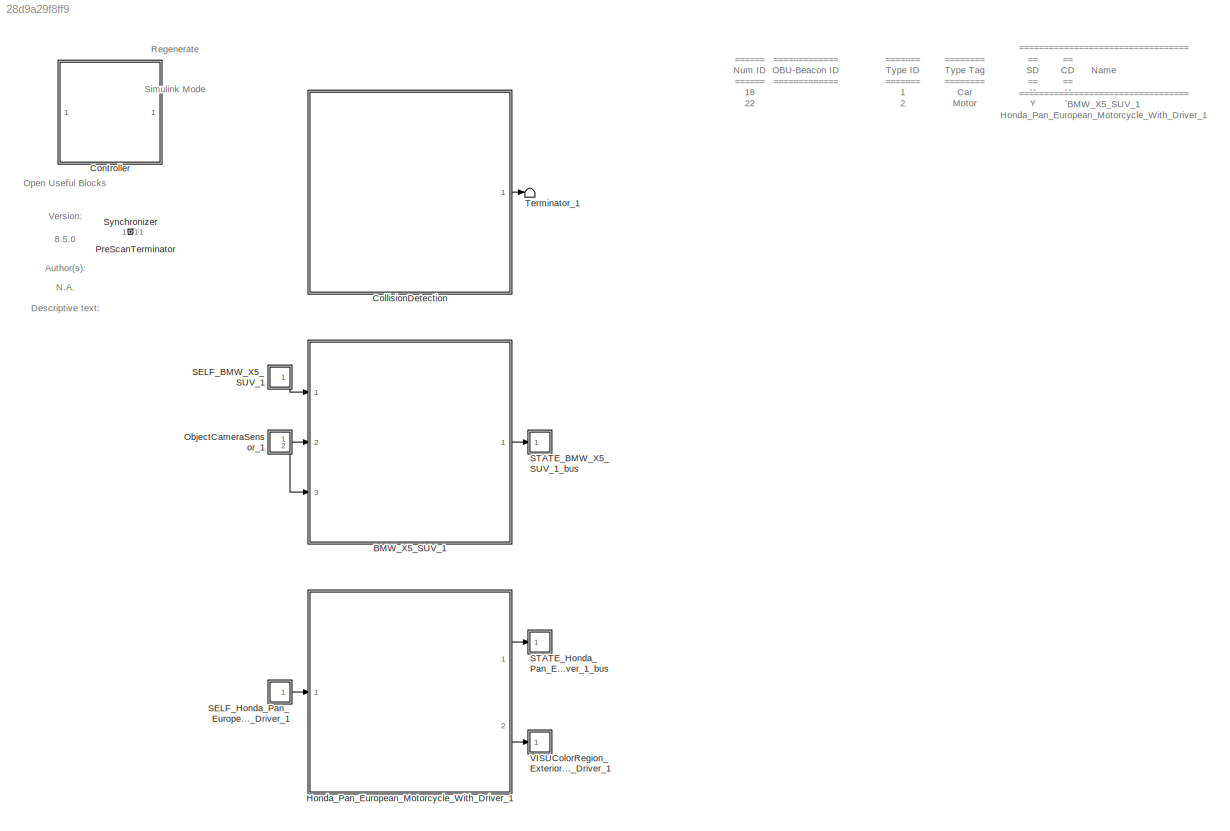
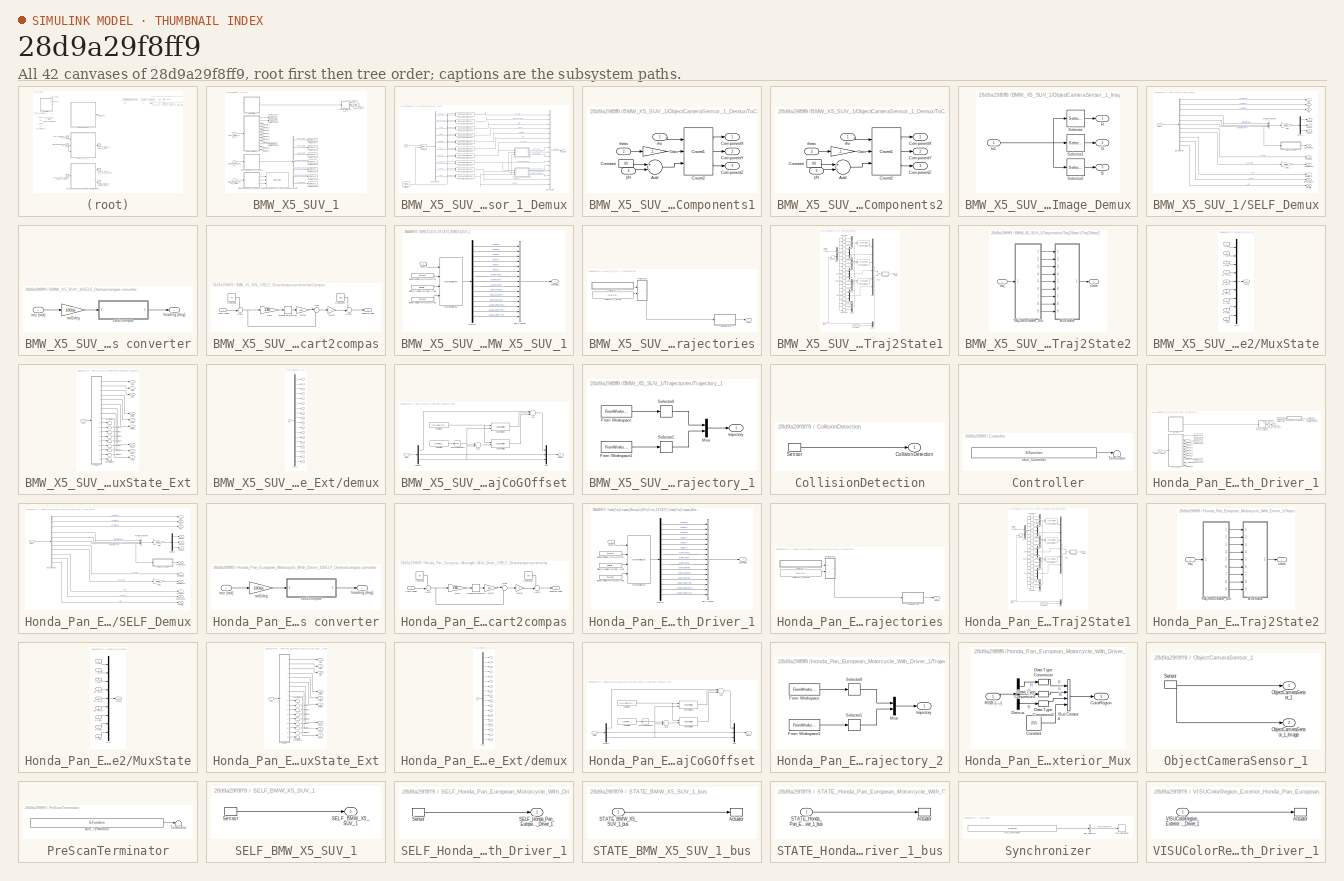
[diagram: thumbnail index - all 42 canvases of the model, root first then tree order]
MODEL slx_28d9a29f8ff9
KIND model
CONFIG AbsTol = auto
CONFIG EnableMultiTasking = off
CONFIG FixedStep = 1/40
CONFIG InitFcn = mbxruntime.callbacks.InitFcn(bdroot);
CONFIG MaxStep = auto
CONFIG MinStep = auto
CONFIG PostLoadFcn = mbxruntime.callbacks.PostLoadFcn(bdroot);
CONFIG PreLoadFcn = mbxruntime.callbacks.PreLoadFcn(bdroot);
CONFIG RelTol = 1e-3
CONFIG SampleTimeConstraint = Unconstrained
CONFIG Solver = ode5
CONFIG SolverName = ode5
CONFIG StartFcn = mbxruntime.callbacks.StartFcn(bdroot);
CONFIG StartTime = 0.0
CONFIG StopFcn = mbxruntime.callbacks.StopFcn(bdroot);
CONFIG StopTime = 4.4
WORKSPACE source: MAT-file member
WORKSPACE mbox_table: struct (value not decoded)
BLOCK [SubSystem] BMW_X5_SUV_1
  InitFcn = UniqueId = '224';
  Ports = [3, 1]
  RequestExecContextInheritance = off
  Tag = WorldObjectSubSystem
BLOCK [BusSelector] BMW_X5_SUV_1/Bus Selector
  OutputAsBus = off
  OutputSignals = Range[m],RangeX[m],RangeY[m],DopplerVelocity[ms-1],DopplerVelocityX[ms-1],DopplerVelocityY[ms-1],Theta[deg]
  Ports = [1, 7]
BLOCK [Inport] BMW_X5_SUV_1/ObjectCameraSensor_1
  BusOutputAsStruct = on
  IconDisplay = Port number
  OutDataTypeStr = Bus: PRESCAN_OCS_MESSAGE
  Port = 2
  PortDimensions = 32
  SampleTime = 1/20
  Tag = inport/ObjectCamera/data
BLOCK [SubSystem] BMW_X5_SUV_1/ObjectCameraSensor_1_Demux
  DeleteFcn = PreScanBlockDeleteFcn;
  Ports = [1, 1]
  RequestExecContextInheritance = off
  Tag = demux/OCS
BLOCK [BusCreator] BMW_X5_SUV_1/ObjectCameraSensor_1_Demux/Bus Creator1
  DisplayOption = bar
  InheritFromInputs = on
  Inputs = 16
  Ports = [16, 1]
BLOCK [BusSelector] BMW_X5_SUV_1/ObjectCameraSensor_1_Demux/Bus Selector
  OutputAsBus = off
  OutputSignals = DATA.ObjectID,DATA.ObjectTypeID,DATA.Left,DATA.Right,DATA.Bottom,DATA.Top,DATA.Range,DATA.DopplerVelocity,DATA.Theta,DATA.Phi
  Ports = [1, 10]
BLOCK [ForIterator] BMW_X5_SUV_1/ObjectCameraSensor_1_Demux/For Iterator
  IterationLimit = detectableObjects
  Ports = [0, 1]
  ResetStates = reset
BLOCK [Inport] BMW_X5_SUV_1/ObjectCameraSensor_1_Demux/OCS
  IconDisplay = Port number
BLOCK [Outport] BMW_X5_SUV_1/ObjectCameraSensor_1_Demux/OCS Data
  IconDisplay = Port number
BLOCK [Selector] BMW_X5_SUV_1/ObjectCameraSensor_1_Demux/Selector
  IndexOptions = Index vector (port)
  Indices = [1 3]
  InputPortWidth = detectableObjects
  OutputSizes = 1
  Ports = [2, 1]
BLOCK [Reference] BMW_X5_SUV_1/ObjectCameraSensor_1_Demux/Signal2ArrayOfSignals1  REF=PreScanSimulinkLibrary/DemuxBRS/Signal2ArrayOfSignals1
  Ports = [2, 1]
  SourceBlock = PreScanSimulinkLibrary/DemuxBRS/Signal2ArrayOfSignals1
BLOCK [Reference] BMW_X5_SUV_1/ObjectCameraSensor_1_Demux/Signal2ArrayOfSignals10  REF=PreScanSimulinkLibrary/DemuxBRS/Signal2ArrayOfSignals5
  Ports = [2, 1]
  SourceBlock = PreScanSimulinkLibrary/DemuxBRS/Signal2ArrayOfSignals5
BLOCK [Reference] BMW_X5_SUV_1/ObjectCameraSensor_1_Demux/Signal2ArrayOfSignals2  REF=PreScanSimulinkLibrary/DemuxBRS/Signal2ArrayOfSignals2
  Ports = [2, 1]
  SourceBlock = PreScanSimulinkLibrary/DemuxBRS/Signal2ArrayOfSignals2
BLOCK [Reference] BMW_X5_SUV_1/ObjectCameraSensor_1_Demux/Signal2ArrayOfSignals3  REF=PreScanSimulinkLibrary/DemuxBRS/Signal2ArrayOfSignals3
  Ports = [2, 1]
  SourceBlock = PreScanSimulinkLibrary/DemuxBRS/Signal2ArrayOfSignals3
BLOCK [Reference] BMW_X5_SUV_1/ObjectCameraSensor_1_Demux/Signal2ArrayOfSignals4  REF=PreScanSimulinkLibrary/DemuxBRS/Signal2ArrayOfSignals4
  Ports = [2, 1]
  SourceBlock = PreScanSimulinkLibrary/DemuxBRS/Signal2ArrayOfSignals4
BLOCK [Reference] BMW_X5_SUV_1/ObjectCameraSensor_1_Demux/Signal2ArrayOfSignals5  REF=PreScanSimulinkLibrary/DemuxBRS/Signal2ArrayOfSignals5
  Ports = [2, 1]
  SourceBlock = PreScanSimulinkLibrary/DemuxBRS/Signal2ArrayOfSignals5
BLOCK [Reference] BMW_X5_SUV_1/ObjectCameraSensor_1_Demux/Signal2ArrayOfSignals6  REF=PreScanSimulinkLibrary/DemuxBRS/Signal2ArrayOfSignals1
  Ports = [2, 1]
  SourceBlock = PreScanSimulinkLibrary/DemuxBRS/Signal2ArrayOfSignals1
BLOCK [Reference] BMW_X5_SUV_1/ObjectCameraSensor_1_Demux/Signal2ArrayOfSignals7  REF=PreScanSimulinkLibrary/DemuxBRS/Signal2ArrayOfSignals5
  Ports = [2, 1]
  SourceBlock = PreScanSimulinkLibrary/DemuxBRS/Signal2ArrayOfSignals5
BLOCK [Reference] BMW_X5_SUV_1/ObjectCameraSensor_1_Demux/Signal2ArrayOfSignals8  REF=PreScanSimulinkLibrary/DemuxBRS/Signal2ArrayOfSignals5
  Ports = [2, 1]
  SourceBlock = PreScanSimulinkLibrary/DemuxBRS/Signal2ArrayOfSignals5
BLOCK [Reference] BMW_X5_SUV_1/ObjectCameraSensor_1_Demux/Signal2ArrayOfSignals9  REF=PreScanSimulinkLibrary/DemuxBRS/Signal2ArrayOfSignals5
  Ports = [2, 1]
  SourceBlock = PreScanSimulinkLibrary/DemuxBRS/Signal2ArrayOfSignals5
BLOCK [SubSystem] BMW_X5_SUV_1/ObjectCameraSensor_1_Demux/ToCamAxesComponents1
  Ports = [3, 3]
  RequestExecContextInheritance = off
BLOCK [Sum] BMW_X5_SUV_1/ObjectCameraSensor_1_Demux/ToCamAxesComponents1/Add
  InputSameDT = off
  Inputs = +-
  OutDataTypeStr = Inherit: Inherit via internal rule
  Ports = [2, 1]
  SaturateOnIntegerOverflow = off
BLOCK [Reference] BMW_X5_SUV_1/ObjectCameraSensor_1_Demux/ToCamAxesComponents1/Cnvert2  REF=PreScanSimulinkLibrary/Cnvert1
  Ports = [3, 3]
  SourceBlock = PreScanSimulinkLibrary/Cnvert1
  SourceType = SubSystem
BLOCK [Outport] BMW_X5_SUV_1/ObjectCameraSensor_1_Demux/ToCamAxesComponents1/ComponentX
  IconDisplay = Port number
BLOCK [Outport] BMW_X5_SUV_1/ObjectCameraSensor_1_Demux/ToCamAxesComponents1/ComponentY
  IconDisplay = Port number
  Port = 2
BLOCK [Outport] BMW_X5_SUV_1/ObjectCameraSensor_1_Demux/ToCamAxesComponents1/ComponentZ
  IconDisplay = Port number
  Port = 3
BLOCK [Constant] BMW_X5_SUV_1/ObjectCameraSensor_1_Demux/ToCamAxesComponents1/Constant
  Value = 90
BLOCK [Gain] BMW_X5_SUV_1/ObjectCameraSensor_1_Demux/ToCamAxesComponents1/Gain
  Gain = -1
  OutDataTypeStr = Inherit: Inherit via internal rule
  ParamDataTypeStr = Inherit: Inherit via internal rule
  SaturateOnIntegerOverflow = off
BLOCK [Inport] BMW_X5_SUV_1/ObjectCameraSensor_1_Demux/ToCamAxesComponents1/phi
  IconDisplay = Port number
  Port = 3
BLOCK [Inport] BMW_X5_SUV_1/ObjectCameraSensor_1_Demux/ToCamAxesComponents1/rho
  IconDisplay = Port number
BLOCK [Inport] BMW_X5_SUV_1/ObjectCameraSensor_1_Demux/ToCamAxesComponents1/theta
  IconDisplay = Port number
  Port = 2
BLOCK [SubSystem] BMW_X5_SUV_1/ObjectCameraSensor_1_Demux/ToCamAxesComponents2
  Ports = [3, 3]
  RequestExecContextInheritance = off
BLOCK [Sum] BMW_X5_SUV_1/ObjectCameraSensor_1_Demux/ToCamAxesComponents2/Add
  InputSameDT = off
  Inputs = +-
  OutDataTypeStr = Inherit: Inherit via internal rule
  Ports = [2, 1]
  SaturateOnIntegerOverflow = off
BLOCK [Reference] BMW_X5_SUV_1/ObjectCameraSensor_1_Demux/ToCamAxesComponents2/Cnvert2  REF=PreScanSimulinkLibrary/Cnvert1
  Ports = [3, 3]
  SourceBlock = PreScanSimulinkLibrary/Cnvert1
  SourceType = SubSystem
BLOCK [Outport] BMW_X5_SUV_1/ObjectCameraSensor_1_Demux/ToCamAxesComponents2/ComponentX
  IconDisplay = Port number
BLOCK [Outport] BMW_X5_SUV_1/ObjectCameraSensor_1_Demux/ToCamAxesComponents2/ComponentY
  IconDisplay = Port number
  Port = 2
BLOCK [Outport] BMW_X5_SUV_1/ObjectCameraSensor_1_Demux/ToCamAxesComponents2/ComponentZ
  IconDisplay = Port number
  Port = 3
BLOCK [Constant] BMW_X5_SUV_1/ObjectCameraSensor_1_Demux/ToCamAxesComponents2/Constant
  Value = 90
BLOCK [Gain] BMW_X5_SUV_1/ObjectCameraSensor_1_Demux/ToCamAxesComponents2/Gain
  Gain = -1
  OutDataTypeStr = Inherit: Inherit via internal rule
  ParamDataTypeStr = Inherit: Inherit via internal rule
  SaturateOnIntegerOverflow = off
BLOCK [Inport] BMW_X5_SUV_1/ObjectCameraSensor_1_Demux/ToCamAxesComponents2/phi
  IconDisplay = Port number
  Port = 3
BLOCK [Inport] BMW_X5_SUV_1/ObjectCameraSensor_1_Demux/ToCamAxesComponents2/rho
  IconDisplay = Port number
BLOCK [Inport] BMW_X5_SUV_1/ObjectCameraSensor_1_Demux/ToCamAxesComponents2/theta
  IconDisplay = Port number
  Port = 2
BLOCK [Inport] BMW_X5_SUV_1/ObjectCameraSensor_1_Image
  BusOutputAsStruct = on
  IconDisplay = Port number
  OutDataTypeStr = uint8
  Port = 3
  SampleTime = 1/20
  Tag = inport/ObjectCamera/image
BLOCK [SubSystem] BMW_X5_SUV_1/ObjectCameraSensor_1_Image_Demux
  Ports = [1, 3]
  RequestExecContextInheritance = off
  Tag = demux/Camera/Color
BLOCK [Outport] BMW_X5_SUV_1/ObjectCameraSensor_1_Image_Demux/B
  IconDisplay = Port number
  Port = 3
BLOCK [Outport] BMW_X5_SUV_1/ObjectCameraSensor_1_Image_Demux/G
  IconDisplay = Port number
  Port = 2
BLOCK [Inport] BMW_X5_SUV_1/ObjectCameraSensor_1_Image_Demux/In1
  IconDisplay = Port number
BLOCK [Outport] BMW_X5_SUV_1/ObjectCameraSensor_1_Image_Demux/R
  IconDisplay = Port number
BLOCK [Selector] BMW_X5_SUV_1/ObjectCameraSensor_1_Image_Demux/Selector
  IndexOptions = Index vector (dialog),Index vector (dialog)
  Indices = -1,1:hres
  InputPortWidth = 3
  NumberOfDimensions = 2
  OutputSizes = 1,1
  Ports = [1, 1]
BLOCK [Selector] BMW_X5_SUV_1/ObjectCameraSensor_1_Image_Demux/Selector1
  IndexOptions = Index vector (dialog),Index vector (dialog)
  Indices = -1,hres+1:hres*2
  InputPortWidth = 3
  NumberOfDimensions = 2
  OutputSizes = 1,1
  Ports = [1, 1]
BLOCK [Selector] BMW_X5_SUV_1/ObjectCameraSensor_1_Image_Demux/Selector2
  IndexOptions = Index vector (dialog),Index vector (dialog)
  Indices = -1,hres*2+1:hres*3
  InputPortWidth = 3
  NumberOfDimensions = 2
  OutputSizes = 1,1
  Ports = [1, 1]
BLOCK [M-S-Function] BMW_X5_SUV_1/ObjectCameraSensor_1_Image_Display
  CopyFcn = CopyFcnDisplay
  DeleteFcn = PreScanBlockDeleteFcn;
  FunctionName = fcn_ImageDisplay
  InitFcn = InitImageOutputDir(gcb);
  ModelCloseFcn = fcn_ImageDisplay_ModelCloseFcn
  Parameters = SensorName EnableDisplay EnablePosition DisplayPosition FigureHandle SaveResults BitmapFormat TempOutputDir CameraType DataType
  Ports = [3]
  Tag = CameraSensor_Color_Display
BLOCK [Inport] BMW_X5_SUV_1/SELF_BMW_X5_SUV_1
  BusOutputAsStruct = on
  IconDisplay = Port number
  OutDataTypeStr = Bus: PRESCAN_SELFSENSORDATA
  PortDimensions = 1
  SampleTime = 2/40
  Tag = inport/SelfPort
BLOCK [SubSystem] BMW_X5_SUV_1/SELF_Demux
  DeleteFcn = PreScanBlockDeleteFcn;
  Ports = [1, 12]
  RequestExecContextInheritance = off
  Tag = demux/SelfPort
BLOCK [BusSelector] BMW_X5_SUV_1/SELF_Demux/Bus Selector
  OutputAsBus = off
  OutputSignals = PositionX,PositionY,PositionZ,OrientationRoll,OrientationPitch,OrientationYaw,Velocity,Yaw_rate,Lat,Long,Alt
  Ports = [1, 11]
BLOCK [Demux] BMW_X5_SUV_1/SELF_Demux/Demux2
  DisplayOption = bar
  Outputs = 3
  Ports = [1, 3]
BLOCK [Outport] BMW_X5_SUV_1/SELF_Demux/GPS alt [m]
  IconDisplay = Port number
  Port = 9
BLOCK [Outport] BMW_X5_SUV_1/SELF_Demux/GPS lat [deg]
  IconDisplay = Port number
  Port = 7
BLOCK [Outport] BMW_X5_SUV_1/SELF_Demux/GPS long [deg]
  IconDisplay = Port number
  Port = 8
BLOCK [Gain] BMW_X5_SUV_1/SELF_Demux/Gain
  Gain = 180/pi
  OutDataTypeStr = Inherit: Inherit via internal rule
  ParamDataTypeStr = Inherit: Inherit via internal rule
  SaturateOnIntegerOverflow = off
BLOCK [Gain] BMW_X5_SUV_1/SELF_Demux/Gain1
  Gain = 180/pi
  OutDataTypeStr = Inherit: Inherit via internal rule
  ParamDataTypeStr = Inherit: Inherit via internal rule
  SaturateOnIntegerOverflow = off
BLOCK [Inport] BMW_X5_SUV_1/SELF_Demux/SELF
  IconDisplay = Port number
  OutDataTypeStr = Bus: PRESCAN_SELFSENSORDATA
BLOCK [Concatenate] BMW_X5_SUV_1/SELF_Demux/Vector Concatenate1
  NumInputs = 3
  Ports = [3, 1]
BLOCK [SubSystem] BMW_X5_SUV_1/SELF_Demux/compas converter
  Ports = [1, 1]
  RequestExecContextInheritance = off
BLOCK [SubSystem] BMW_X5_SUV_1/SELF_Demux/compas converter/cart2compas
  Ports = [1, 1]
  RequestExecContextInheritance = off
BLOCK [Inport] BMW_X5_SUV_1/SELF_Demux/compas converter/cart2compas/Angle [deg]
  IconDisplay = Port number
BLOCK [Constant] BMW_X5_SUV_1/SELF_Demux/compas converter/cart2compas/Constant
  Value = 90
BLOCK [Constant] BMW_X5_SUV_1/SELF_Demux/compas converter/cart2compas/Constant1
  Value = 360
BLOCK [Gain] BMW_X5_SUV_1/SELF_Demux/compas converter/cart2compas/Gain
  Gain = 1/360
  OutDataTypeStr = Inherit: Inherit via internal rule
  ParamDataTypeStr = Inherit: Inherit via internal rule
  SaturateOnIntegerOverflow = off
BLOCK [Gain] BMW_X5_SUV_1/SELF_Demux/compas converter/cart2compas/Gain1
  Gain = 360
  OutDataTypeStr = Inherit: Inherit via internal rule
  ParamDataTypeStr = Inherit: Inherit via internal rule
  SaturateOnIntegerOverflow = off
BLOCK [Gain] BMW_X5_SUV_1/SELF_Demux/compas converter/cart2compas/Gain2
  Gain = -1
  OutDataTypeStr = Inherit: Inherit via internal rule
  ParamDataTypeStr = Inherit: Inherit via internal rule
  SaturateOnIntegerOverflow = off
BLOCK [Rounding] BMW_X5_SUV_1/SELF_Demux/compas converter/cart2compas/Rounding Function
BLOCK [Sum] BMW_X5_SUV_1/SELF_Demux/compas converter/cart2compas/Sum
  IconShape = round
  InputSameDT = off
  Inputs = |-+
  OutDataTypeStr = Inherit: Inherit via internal rule
  Ports = [2, 1]
  SaturateOnIntegerOverflow = off
BLOCK [Sum] BMW_X5_SUV_1/SELF_Demux/compas converter/cart2compas/Sum1
  IconShape = round
  InputSameDT = off
  Inputs = -+|
  OutDataTypeStr = Inherit: Inherit via internal rule
  Ports = [2, 1]
  SaturateOnIntegerOverflow = off
BLOCK [Sum] BMW_X5_SUV_1/SELF_Demux/compas converter/cart2compas/Sum2
  IconShape = round
  InputSameDT = off
  Inputs = ++|
  OutDataTypeStr = Inherit: Inherit via internal rule
  Ports = [2, 1]
  SaturateOnIntegerOverflow = off
BLOCK [Outport] BMW_X5_SUV_1/SELF_Demux/compas converter/cart2compas/heading [deg]
  IconDisplay = Port number
BLOCK [Outport] BMW_X5_SUV_1/SELF_Demux/compas converter/heading [deg]
  IconDisplay = Port number
BLOCK [Gain] BMW_X5_SUV_1/SELF_Demux/compas converter/rad2deg
  Gain = 180/pi
  OutDataTypeStr = Inherit: Inherit via internal rule
  ParamDataTypeStr = Inherit: Inherit via internal rule
  SaturateOnIntegerOverflow = off
BLOCK [Inport] BMW_X5_SUV_1/SELF_Demux/compas converter/rotz [rad]
  IconDisplay = Port number
BLOCK [Outport] BMW_X5_SUV_1/SELF_Demux/heading [deg]
  IconDisplay = Port number
  Port = 11
BLOCK [Outport] BMW_X5_SUV_1/SELF_Demux/rotx [deg]
  IconDisplay = Port number
  Port = 4
BLOCK [Outport] BMW_X5_SUV_1/SELF_Demux/roty [deg]
  IconDisplay = Port number
  Port = 5
BLOCK [Outport] BMW_X5_SUV_1/SELF_Demux/rotz [deg]
  IconDisplay = Port number
  Port = 6
BLOCK [Outport] BMW_X5_SUV_1/SELF_Demux/velocity [m//s]
  IconDisplay = Port number
  Port = 10
BLOCK [Outport] BMW_X5_SUV_1/SELF_Demux/x [m]
  IconDisplay = Port number
BLOCK [Outport] BMW_X5_SUV_1/SELF_Demux/y [m]
  IconDisplay = Port number
  Port = 2
BLOCK [Outport] BMW_X5_SUV_1/SELF_Demux/yaw rate [deg//s]
  IconDisplay = Port number
  Port = 12
BLOCK [Outport] BMW_X5_SUV_1/SELF_Demux/z [m]
  IconDisplay = Port number
  Port = 3
BLOCK [SubSystem] BMW_X5_SUV_1/STATE_BMW_X5_SUV_1
  DeleteFcn = PreScanBlockDeleteFcn;
  LoadFcn = load PrescanStateActuatorData
  Ports = [1, 1]
  Priority = 0
  RequestExecContextInheritance = off
  Tag = mux/StatePort
BLOCK [BusCreator] BMW_X5_SUV_1/STATE_BMW_X5_SUV_1/Bus Creator
  DisplayOption = bar
  InheritFromInputs = on
  Inputs = 15
  NonVirtualBus = on
  OutDataTypeStr = Bus: PRESCAN_STATEACTUATORDATA
  Ports = [15, 1]
BLOCK [Demux] BMW_X5_SUV_1/STATE_BMW_X5_SUV_1/Demux
  DisplayOption = bar
  Outputs = 15
  Ports = [1, 15]
BLOCK [Inport] BMW_X5_SUV_1/STATE_BMW_X5_SUV_1/State
  IconDisplay = Port number
  SampleTime = TimeStep
BLOCK [Outport] BMW_X5_SUV_1/STATE_BMW_X5_SUV_1/StateBus
  IconDisplay = Port number
  OutDataTypeStr = Bus: PRESCAN_STATEACTUATORDATA
BLOCK [Constant] BMW_X5_SUV_1/STATE_BMW_X5_SUV_1/iniBODYAngles wrtVEH [rad]
  SampleTime = TimeStep
  Value = [Roll0 Pitch0 0]
BLOCK [Constant] BMW_X5_SUV_1/STATE_BMW_X5_SUV_1/iniVEHAngles wrtGLOB [rad]
  SampleTime = TimeStep
  Value = [0 0 Yaw0]
BLOCK [Constant] BMW_X5_SUV_1/STATE_BMW_X5_SUV_1/iniVEHposition wrtGLOB [m]
  SampleTime = TimeStep
  Value = [x0 y0 z0]
BLOCK [Reference] BMW_X5_SUV_1/STATE_BMW_X5_SUV_1/state2FullState  REF=PreScanSimulinkLibrary/state2FullState
  Ports = [4, 1]
  SourceBlock = PreScanSimulinkLibrary/state2FullState
  SourceType = PreScan Demux Block:
BLOCK [Outport] BMW_X5_SUV_1/STATE_BMW_X5_SUV_1_bus
  IconDisplay = Port number
  OutDataTypeStr = Bus: PRESCAN_STATEACTUATORDATA
  PortDimensions = 1
  SampleTime = 2/40
  Tag = outport/StatePort
BLOCK [RateTransition] BMW_X5_SUV_1/STATE_BMW_X5_SUV_1_rc
  OutPortSampleTimeOpt = Inherit
  Tag = mux_rc/StatePort
BLOCK [Terminator] BMW_X5_SUV_1/Terminator_1
BLOCK [Terminator] BMW_X5_SUV_1/Terminator_2
BLOCK [Terminator] BMW_X5_SUV_1/Terminator_3
BLOCK [Terminator] BMW_X5_SUV_1/Terminator_4
BLOCK [Terminator] BMW_X5_SUV_1/Terminator_5
BLOCK [Terminator] BMW_X5_SUV_1/Terminator_6
BLOCK [Terminator] BMW_X5_SUV_1/Terminator_7
BLOCK [Terminator] BMW_X5_SUV_1/Terminator_8
BLOCK [Terminator] BMW_X5_SUV_1/Terminator_9
BLOCK [ToWorkspace] BMW_X5_SUV_1/To Workspace
  FixptAsFi = on
  MaxDataPoints = inf
  Ports = [1]
  SampleTime = -1
  SaveFormat = Timeseries
  VariableName = range_m
BLOCK [ToWorkspace] BMW_X5_SUV_1/To Workspace1
  FixptAsFi = on
  MaxDataPoints = inf
  Ports = [1]
  SampleTime = -1
  SaveFormat = Timeseries
  VariableName = range_x
BLOCK [ToWorkspace] BMW_X5_SUV_1/To Workspace2
  FixptAsFi = on
  MaxDataPoints = inf
  Ports = [1]
  SampleTime = -1
  SaveFormat = Timeseries
  VariableName = range_y
BLOCK [ToWorkspace] BMW_X5_SUV_1/To Workspace3
  FixptAsFi = on
  MaxDataPoints = inf
  Ports = [1]
  SampleTime = -1
  SaveFormat = Timeseries
  VariableName = V21
BLOCK [ToWorkspace] BMW_X5_SUV_1/To Workspace4
  FixptAsFi = on
  MaxDataPoints = inf
  Ports = [1]
  SampleTime = -1
  SaveFormat = Timeseries
  VariableName = V21_x
BLOCK [ToWorkspace] BMW_X5_SUV_1/To Workspace5
  FixptAsFi = on
  MaxDataPoints = inf
  Ports = [1]
  SampleTime = -1
  SaveFormat = Timeseries
  VariableName = V21_y
BLOCK [ToWorkspace] BMW_X5_SUV_1/To Workspace6
  FixptAsFi = on
  MaxDataPoints = inf
  Ports = [1]
  SampleTime = -1
  SaveFormat = Timeseries
  VariableName = Theate
BLOCK [ToWorkspace] BMW_X5_SUV_1/To Workspace7
  FixptAsFi = on
  MaxDataPoints = inf
  Ports = [1]
  SampleTime = -1
  SaveFormat = Timeseries
  VariableName = X1
BLOCK [ToWorkspace] BMW_X5_SUV_1/To Workspace8
  FixptAsFi = on
  MaxDataPoints = inf
  Ports = [1]
  SampleTime = -1
  SaveFormat = Timeseries
  VariableName = Y1
BLOCK [ToWorkspace] BMW_X5_SUV_1/To Workspace9
  FixptAsFi = on
  MaxDataPoints = inf
  Ports = [1]
  SampleTime = -1
  SaveFormat = Timeseries
  VariableName = V1
BLOCK [SubSystem] BMW_X5_SUV_1/Trajectories
  DeleteFcn = PreScanBlockDeleteFcn;
  Ports = [0, 1]
  RequestExecContextInheritance = off
  Tag = Trajectories
BLOCK [Outport] BMW_X5_SUV_1/Trajectories/State
  IconDisplay = Port number
  Tag = TrajOutport
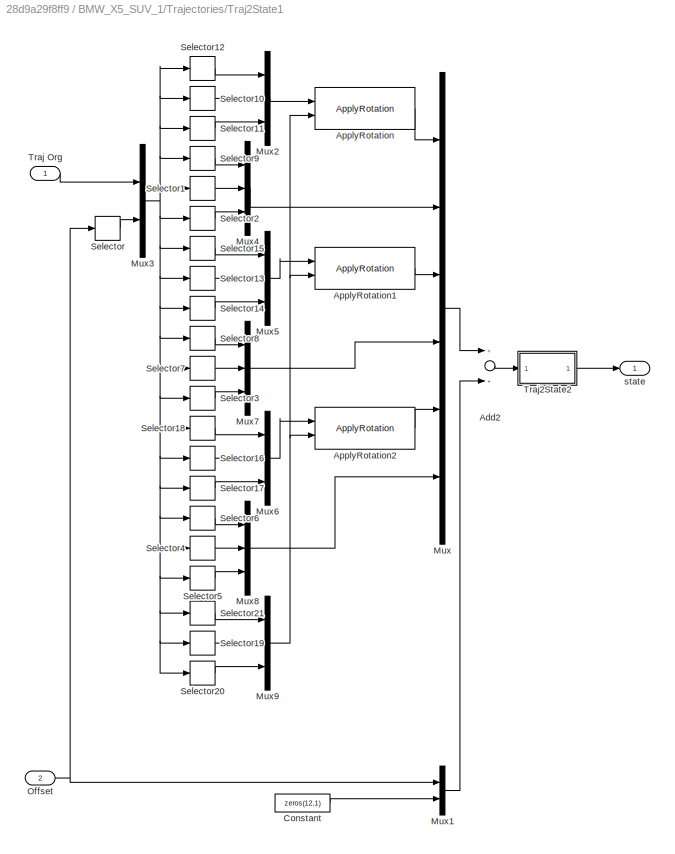
BLOCK [SubSystem] BMW_X5_SUV_1/Trajectories/Traj2State1
  DeleteFcn = PreScanBlockDeleteFcn;
  Ports = [2, 1]
  RequestExecContextInheritance = off
  Tag = Traj2State
BLOCK [Sum] BMW_X5_SUV_1/Trajectories/Traj2State1/Add2
  InputSameDT = off
  OutDataTypeStr = Inherit: Inherit via internal rule
  Ports = [2, 1]
  SaturateOnIntegerOverflow = off
BLOCK [Reference] BMW_X5_SUV_1/Trajectories/Traj2State1/ApplyRotation  REF=PreScanSimulinkLibrary/ApplyRotation
  Ports = [2, 1]
  SourceBlock = PreScanSimulinkLibrary/ApplyRotation
  SourceType = SubSystem
BLOCK [Reference] BMW_X5_SUV_1/Trajectories/Traj2State1/ApplyRotation1  REF=PreScanSimulinkLibrary/ApplyRotation
  Ports = [2, 1]
  SourceBlock = PreScanSimulinkLibrary/ApplyRotation
  SourceType = SubSystem
BLOCK [Reference] BMW_X5_SUV_1/Trajectories/Traj2State1/ApplyRotation2  REF=PreScanSimulinkLibrary/ApplyRotation
  Ports = [2, 1]
  SourceBlock = PreScanSimulinkLibrary/ApplyRotation
  SourceType = SubSystem
BLOCK [Constant] BMW_X5_SUV_1/Trajectories/Traj2State1/Constant
  Value = zeros(12,1)
BLOCK [Mux] BMW_X5_SUV_1/Trajectories/Traj2State1/Mux
  DisplayOption = bar
  Inputs = 6
  Ports = [6, 1]
BLOCK [Mux] BMW_X5_SUV_1/Trajectories/Traj2State1/Mux1
  DisplayOption = bar
  Inputs = 2
  Ports = [2, 1]
BLOCK [Mux] BMW_X5_SUV_1/Trajectories/Traj2State1/Mux2
  DisplayOption = bar
  Inputs = 3
  Ports = [3, 1]
BLOCK [Mux] BMW_X5_SUV_1/Trajectories/Traj2State1/Mux3
  DisplayOption = bar
  Inputs = 2
  Ports = [2, 1]
BLOCK [Mux] BMW_X5_SUV_1/Trajectories/Traj2State1/Mux4
  DisplayOption = bar
  Inputs = 3
  Ports = [3, 1]
BLOCK [Mux] BMW_X5_SUV_1/Trajectories/Traj2State1/Mux5
  DisplayOption = bar
  Inputs = 3
  Ports = [3, 1]
BLOCK [Mux] BMW_X5_SUV_1/Trajectories/Traj2State1/Mux6
  DisplayOption = bar
  Inputs = 3
  Ports = [3, 1]
BLOCK [Mux] BMW_X5_SUV_1/Trajectories/Traj2State1/Mux7
  DisplayOption = bar
  Inputs = 3
  Ports = [3, 1]
BLOCK [Mux] BMW_X5_SUV_1/Trajectories/Traj2State1/Mux8
  DisplayOption = bar
  Inputs = 3
  Ports = [3, 1]
BLOCK [Mux] BMW_X5_SUV_1/Trajectories/Traj2State1/Mux9
  DisplayOption = bar
  Inputs = 3
  Ports = [3, 1]
BLOCK [Inport] BMW_X5_SUV_1/Trajectories/Traj2State1/Offset
  IconDisplay = Port number
  Port = 2
BLOCK [Selector] BMW_X5_SUV_1/Trajectories/Traj2State1/Selector
  IndexOptions = Index vector (dialog)
  Indices = [4 5 6]
  InputPortWidth = 6
  OutputSizes = 1
  Ports = [1, 1]
BLOCK [Selector] BMW_X5_SUV_1/Trajectories/Traj2State1/Selector1
  IndexOptions = Index vector (dialog)
  Indices = [5]
  InputPortWidth = 21
  OutputSizes = 1
  Ports = [1, 1]
BLOCK [Selector] BMW_X5_SUV_1/Trajectories/Traj2State1/Selector10
  IndexOptions = Index vector (dialog)
  Indices = [2]
  InputPortWidth = 21
  OutputSizes = 1
  Ports = [1, 1]
BLOCK [Selector] BMW_X5_SUV_1/Trajectories/Traj2State1/Selector11
  IndexOptions = Index vector (dialog)
  Indices = [3]
  InputPortWidth = 21
  OutputSizes = 1
  Ports = [1, 1]
BLOCK [Selector] BMW_X5_SUV_1/Trajectories/Traj2State1/Selector12
  IndexOptions = Index vector (dialog)
  Indices = [1]
  InputPortWidth = 21
  OutputSizes = 1
  Ports = [1, 1]
BLOCK [Selector] BMW_X5_SUV_1/Trajectories/Traj2State1/Selector13
  IndexOptions = Index vector (dialog)
  Indices = [8]
  InputPortWidth = 21
  OutputSizes = 1
  Ports = [1, 1]
BLOCK [Selector] BMW_X5_SUV_1/Trajectories/Traj2State1/Selector14
  IndexOptions = Index vector (dialog)
  Indices = [9]
  InputPortWidth = 21
  OutputSizes = 1
  Ports = [1, 1]
BLOCK [Selector] BMW_X5_SUV_1/Trajectories/Traj2State1/Selector15
  IndexOptions = Index vector (dialog)
  Indices = [7]
  InputPortWidth = 21
  OutputSizes = 1
  Ports = [1, 1]
BLOCK [Selector] BMW_X5_SUV_1/Trajectories/Traj2State1/Selector16
  IndexOptions = Index vector (dialog)
  Indices = [14]
  InputPortWidth = 21
  OutputSizes = 1
  Ports = [1, 1]
BLOCK [Selector] BMW_X5_SUV_1/Trajectories/Traj2State1/Selector17
  IndexOptions = Index vector (dialog)
  Indices = [15]
  InputPortWidth = 21
  OutputSizes = 1
  Ports = [1, 1]
BLOCK [Selector] BMW_X5_SUV_1/Trajectories/Traj2State1/Selector18
  IndexOptions = Index vector (dialog)
  Indices = [13]
  InputPortWidth = 21
  OutputSizes = 1
  Ports = [1, 1]
BLOCK [Selector] BMW_X5_SUV_1/Trajectories/Traj2State1/Selector19
  IndexOptions = Index vector (dialog)
  Indices = [20]
  InputPortWidth = 21
  OutputSizes = 1
  Ports = [1, 1]
BLOCK [Selector] BMW_X5_SUV_1/Trajectories/Traj2State1/Selector2
  IndexOptions = Index vector (dialog)
  Indices = [6]
  InputPortWidth = 21
  OutputSizes = 1
  Ports = [1, 1]
BLOCK [Selector] BMW_X5_SUV_1/Trajectories/Traj2State1/Selector20
  IndexOptions = Index vector (dialog)
  Indices = [21]
  InputPortWidth = 21
  OutputSizes = 1
  Ports = [1, 1]
BLOCK [Selector] BMW_X5_SUV_1/Trajectories/Traj2State1/Selector21
  IndexOptions = Index vector (dialog)
  Indices = [19]
  InputPortWidth = 21
  OutputSizes = 1
  Ports = [1, 1]
BLOCK [Selector] BMW_X5_SUV_1/Trajectories/Traj2State1/Selector3
  IndexOptions = Index vector (dialog)
  Indices = [12]
  InputPortWidth = 21
  OutputSizes = 1
  Ports = [1, 1]
BLOCK [Selector] BMW_X5_SUV_1/Trajectories/Traj2State1/Selector4
  IndexOptions = Index vector (dialog)
  Indices = [17]
  InputPortWidth = 21
  OutputSizes = 1
  Ports = [1, 1]
BLOCK [Selector] BMW_X5_SUV_1/Trajectories/Traj2State1/Selector5
  IndexOptions = Index vector (dialog)
  Indices = [18]
  InputPortWidth = 21
  OutputSizes = 1
  Ports = [1, 1]
BLOCK [Selector] BMW_X5_SUV_1/Trajectories/Traj2State1/Selector6
  IndexOptions = Index vector (dialog)
  Indices = [16]
  InputPortWidth = 21
  OutputSizes = 1
  Ports = [1, 1]
BLOCK [Selector] BMW_X5_SUV_1/Trajectories/Traj2State1/Selector7
  IndexOptions = Index vector (dialog)
  Indices = [11]
  InputPortWidth = 21
  OutputSizes = 1
  Ports = [1, 1]
BLOCK [Selector] BMW_X5_SUV_1/Trajectories/Traj2State1/Selector8
  IndexOptions = Index vector (dialog)
  Indices = [10]
  InputPortWidth = 21
  OutputSizes = 1
  Ports = [1, 1]
BLOCK [Selector] BMW_X5_SUV_1/Trajectories/Traj2State1/Selector9
  IndexOptions = Index vector (dialog)
  Indices = [4]
  InputPortWidth = 21
  OutputSizes = 1
  Ports = [1, 1]
BLOCK [Inport] BMW_X5_SUV_1/Trajectories/Traj2State1/Traj Org
  IconDisplay = Port number
BLOCK [SubSystem] BMW_X5_SUV_1/Trajectories/Traj2State1/Traj2State2
  Ports = [1, 1]
  RequestExecContextInheritance = off
BLOCK [SubSystem] BMW_X5_SUV_1/Trajectories/Traj2State1/Traj2State2/MuxState
  Ports = [9, 1]
  RequestExecContextInheritance = off
BLOCK [Mux] BMW_X5_SUV_1/Trajectories/Traj2State1/Traj2State2/MuxState/Mux
  DisplayOption = bar
  Inputs = 9
  Ports = [9, 1]
BLOCK [Inport] BMW_X5_SUV_1/Trajectories/Traj2State1/Traj2State2/MuxState/P [rad]
  IconDisplay = Port number
  Port = 8
BLOCK [Inport] BMW_X5_SUV_1/Trajectories/Traj2State1/Traj2State2/MuxState/R [rad]
  IconDisplay = Port number
  Port = 7
BLOCK [Inport] BMW_X5_SUV_1/Trajectories/Traj2State1/Traj2State2/MuxState/Y [rad]
  IconDisplay = Port number
  Port = 9
BLOCK [Inport] BMW_X5_SUV_1/Trajectories/Traj2State1/Traj2State2/MuxState/dx [m//s]
  IconDisplay = Port number
  Port = 4
BLOCK [Inport] BMW_X5_SUV_1/Trajectories/Traj2State1/Traj2State2/MuxState/dy [m//s]
  IconDisplay = Port number
  Port = 5
BLOCK [Inport] BMW_X5_SUV_1/Trajectories/Traj2State1/Traj2State2/MuxState/dz [m//s]
  IconDisplay = Port number
  Port = 6
BLOCK [Outport] BMW_X5_SUV_1/Trajectories/Traj2State1/Traj2State2/MuxState/state
  IconDisplay = Port number
BLOCK [Inport] BMW_X5_SUV_1/Trajectories/Traj2State1/Traj2State2/MuxState/x [m]
  IconDisplay = Port number
BLOCK [Inport] BMW_X5_SUV_1/Trajectories/Traj2State1/Traj2State2/MuxState/y [m]
  IconDisplay = Port number
  Port = 2
BLOCK [Inport] BMW_X5_SUV_1/Trajectories/Traj2State1/Traj2State2/MuxState/z [m]
  IconDisplay = Port number
  Port = 3
BLOCK [SubSystem] BMW_X5_SUV_1/Trajectories/Traj2State1/Traj2State2/Traj2MuxState_Ext
  Ports = [1, 9]
  RequestExecContextInheritance = off
BLOCK [Outport] BMW_X5_SUV_1/Trajectories/Traj2State1/Traj2State2/Traj2MuxState_Ext/P [rad]
  IconDisplay = Port number
  Port = 8
BLOCK [Outport] BMW_X5_SUV_1/Trajectories/Traj2State1/Traj2State2/Traj2MuxState_Ext/R [rad]
  IconDisplay = Port number
  Port = 7
BLOCK [Terminator] BMW_X5_SUV_1/Trajectories/Traj2State1/Traj2State2/Traj2MuxState_Ext/Terminator1
BLOCK [Terminator] BMW_X5_SUV_1/Trajectories/Traj2State1/Traj2State2/Traj2MuxState_Ext/Terminator2
BLOCK [Terminator] BMW_X5_SUV_1/Trajectories/Traj2State1/Traj2State2/Traj2MuxState_Ext/Terminator3
BLOCK [Terminator] BMW_X5_SUV_1/Trajectories/Traj2State1/Traj2State2/Traj2MuxState_Ext/Terminator4
BLOCK [Terminator] BMW_X5_SUV_1/Trajectories/Traj2State1/Traj2State2/Traj2MuxState_Ext/Terminator5
BLOCK [Terminator] BMW_X5_SUV_1/Trajectories/Traj2State1/Traj2State2/Traj2MuxState_Ext/Terminator6
BLOCK [Terminator] BMW_X5_SUV_1/Trajectories/Traj2State1/Traj2State2/Traj2MuxState_Ext/Terminator7
BLOCK [Terminator] BMW_X5_SUV_1/Trajectories/Traj2State1/Traj2State2/Traj2MuxState_Ext/Terminator8
BLOCK [Terminator] BMW_X5_SUV_1/Trajectories/Traj2State1/Traj2State2/Traj2MuxState_Ext/Terminator9
BLOCK [Inport] BMW_X5_SUV_1/Trajectories/Traj2State1/Traj2State2/Traj2MuxState_Ext/Traj
  IconDisplay = Port number
BLOCK [Outport] BMW_X5_SUV_1/Trajectories/Traj2State1/Traj2State2/Traj2MuxState_Ext/Y [rad]
  IconDisplay = Port number
  Port = 9
BLOCK [SubSystem] BMW_X5_SUV_1/Trajectories/Traj2State1/Traj2State2/Traj2MuxState_Ext/demux
  Ports = [1, 18]
  RequestExecContextInheritance = off
BLOCK [Demux] BMW_X5_SUV_1/Trajectories/Traj2State1/Traj2State2/Traj2MuxState_Ext/demux/Demux
  DisplayOption = bar
  Outputs = 18
  Ports = [1, 18]
BLOCK [Outport] BMW_X5_SUV_1/Trajectories/Traj2State1/Traj2State2/Traj2MuxState_Ext/demux/P
  IconDisplay = Port number
  Port = 8
BLOCK [Outport] BMW_X5_SUV_1/Trajectories/Traj2State1/Traj2State2/Traj2MuxState_Ext/demux/R
  IconDisplay = Port number
  Port = 7
BLOCK [Outport] BMW_X5_SUV_1/Trajectories/Traj2State1/Traj2State2/Traj2MuxState_Ext/demux/Y
  IconDisplay = Port number
  Port = 9
BLOCK [Outport] BMW_X5_SUV_1/Trajectories/Traj2State1/Traj2State2/Traj2MuxState_Ext/demux/accP
  IconDisplay = Port number
  Port = 17
BLOCK [Outport] BMW_X5_SUV_1/Trajectories/Traj2State1/Traj2State2/Traj2MuxState_Ext/demux/accR
  IconDisplay = Port number
  Port = 16
BLOCK [Outport] BMW_X5_SUV_1/Trajectories/Traj2State1/Traj2State2/Traj2MuxState_Ext/demux/accY
  IconDisplay = Port number
  Port = 18
BLOCK [Outport] BMW_X5_SUV_1/Trajectories/Traj2State1/Traj2State2/Traj2MuxState_Ext/demux/accx
  IconDisplay = Port number
  Port = 13
BLOCK [Outport] BMW_X5_SUV_1/Trajectories/Traj2State1/Traj2State2/Traj2MuxState_Ext/demux/accy
  IconDisplay = Port number
  Port = 14
BLOCK [Outport] BMW_X5_SUV_1/Trajectories/Traj2State1/Traj2State2/Traj2MuxState_Ext/demux/accz
  IconDisplay = Port number
  Port = 15
BLOCK [Inport] BMW_X5_SUV_1/Trajectories/Traj2State1/Traj2State2/Traj2MuxState_Ext/demux/traj
  IconDisplay = Port number
BLOCK [Outport] BMW_X5_SUV_1/Trajectories/Traj2State1/Traj2State2/Traj2MuxState_Ext/demux/velP
  IconDisplay = Port number
  Port = 11
BLOCK [Outport] BMW_X5_SUV_1/Trajectories/Traj2State1/Traj2State2/Traj2MuxState_Ext/demux/velR
  IconDisplay = Port number
  Port = 10
BLOCK [Outport] BMW_X5_SUV_1/Trajectories/Traj2State1/Traj2State2/Traj2MuxState_Ext/demux/velY
  IconDisplay = Port number
  Port = 12
BLOCK [Outport] BMW_X5_SUV_1/Trajectories/Traj2State1/Traj2State2/Traj2MuxState_Ext/demux/velx
  IconDisplay = Port number
  Port = 4
BLOCK [Outport] BMW_X5_SUV_1/Trajectories/Traj2State1/Traj2State2/Traj2MuxState_Ext/demux/vely
  IconDisplay = Port number
  Port = 5
BLOCK [Outport] BMW_X5_SUV_1/Trajectories/Traj2State1/Traj2State2/Traj2MuxState_Ext/demux/velz
  IconDisplay = Port number
  Port = 6
BLOCK [Outport] BMW_X5_SUV_1/Trajectories/Traj2State1/Traj2State2/Traj2MuxState_Ext/demux/x
  IconDisplay = Port number
BLOCK [Outport] BMW_X5_SUV_1/Trajectories/Traj2State1/Traj2State2/Traj2MuxState_Ext/demux/y
  IconDisplay = Port number
  Port = 2
BLOCK [Outport] BMW_X5_SUV_1/Trajectories/Traj2State1/Traj2State2/Traj2MuxState_Ext/demux/z
  IconDisplay = Port number
  Port = 3
BLOCK [Outport] BMW_X5_SUV_1/Trajectories/Traj2State1/Traj2State2/Traj2MuxState_Ext/dx [m//s]
  IconDisplay = Port number
  Port = 4
BLOCK [Outport] BMW_X5_SUV_1/Trajectories/Traj2State1/Traj2State2/Traj2MuxState_Ext/dy [m//s]
  IconDisplay = Port number
  Port = 5
BLOCK [Outport] BMW_X5_SUV_1/Trajectories/Traj2State1/Traj2State2/Traj2MuxState_Ext/dz [m//s]
  IconDisplay = Port number
  Port = 6
BLOCK [Outport] BMW_X5_SUV_1/Trajectories/Traj2State1/Traj2State2/Traj2MuxState_Ext/x [m]
  IconDisplay = Port number
BLOCK [Outport] BMW_X5_SUV_1/Trajectories/Traj2State1/Traj2State2/Traj2MuxState_Ext/y [m]
  IconDisplay = Port number
  Port = 2
BLOCK [Outport] BMW_X5_SUV_1/Trajectories/Traj2State1/Traj2State2/Traj2MuxState_Ext/z [m]
  IconDisplay = Port number
  Port = 3
BLOCK [Outport] BMW_X5_SUV_1/Trajectories/Traj2State1/Traj2State2/state
  IconDisplay = Port number
BLOCK [Inport] BMW_X5_SUV_1/Trajectories/Traj2State1/Traj2State2/traj
  IconDisplay = Port number
BLOCK [Outport] BMW_X5_SUV_1/Trajectories/Traj2State1/state
  IconDisplay = Port number
BLOCK [SubSystem] BMW_X5_SUV_1/Trajectories/TrajCoGOffset
  DeleteFcn = PreScanBlockDeleteFcn;
  Ports = [1, 1]
  RequestExecContextInheritance = off
  Tag = TrajCoGOffset
BLOCK [Sum] BMW_X5_SUV_1/Trajectories/TrajCoGOffset/Add
  InputSameDT = off
  Inputs = +-+
  OutDataTypeStr = Inherit: Inherit via internal rule
  Ports = [3, 1]
  SaturateOnIntegerOverflow = off
BLOCK [Sum] BMW_X5_SUV_1/Trajectories/TrajCoGOffset/Add1
  InputSameDT = off
  OutDataTypeStr = Inherit: Inherit via internal rule
  Ports = [2, 1]
  SaturateOnIntegerOverflow = off
BLOCK [Reference] BMW_X5_SUV_1/Trajectories/TrajCoGOffset/ApplyRotation  REF=PreScanSimulinkLibrary/ApplyRotation
  Ports = [2, 1]
  SourceBlock = PreScanSimulinkLibrary/ApplyRotation
  SourceType = SubSystem
BLOCK [Reference] BMW_X5_SUV_1/Trajectories/TrajCoGOffset/ApplyRotation1  REF=PreScanSimulinkLibrary/ApplyRotation
  Ports = [2, 1]
  SourceBlock = PreScanSimulinkLibrary/ApplyRotation
  SourceType = SubSystem
BLOCK [Constant] BMW_X5_SUV_1/Trajectories/TrajCoGOffset/CoG Offset
  Value = [0 0 CoGOffsetZ]
BLOCK [Reference] BMW_X5_SUV_1/Trajectories/TrajCoGOffset/Degrees to Radians  REF=simulink_extras/Transformations/Degrees to
Radians
  Ports = [1, 1]
  SourceBlock = simulink_extras/Transformations/Degrees to\nRadians
  SourceProductBaseCode = SL
  SourceProductName = Simulink
  SourceType = DegreesToRadians
BLOCK [Demux] BMW_X5_SUV_1/Trajectories/TrajCoGOffset/Demux1
  DisplayOption = bar
  Outputs = [3 3 3]
  Ports = [1, 3]
BLOCK [Mux] BMW_X5_SUV_1/Trajectories/TrajCoGOffset/Mux
  DisplayOption = bar
  Inputs = [3 3 3]
  Ports = [3, 1]
BLOCK [Constant] BMW_X5_SUV_1/Trajectories/TrajCoGOffset/Orientation
  Value = [InitRoll InitPitch 0]
BLOCK [Inport] BMW_X5_SUV_1/Trajectories/TrajCoGOffset/State In
  IconDisplay = Port number
BLOCK [Outport] BMW_X5_SUV_1/Trajectories/TrajCoGOffset/State Out
  IconDisplay = Port number
BLOCK [SubSystem] BMW_X5_SUV_1/Trajectories/Trajectory_1
  DeleteFcn = PreScanBlockDeleteFcn;
  Ports = [0, 1]
  RequestExecContextInheritance = off
  Tag = Trajectory
BLOCK [FromWorkspace] BMW_X5_SUV_1/Trajectories/Trajectory_1/From Workspace
  OutputAfterFinalValue = Holding final value
  SampleTime = TimeStep
  VariableName = trajectory
BLOCK [FromWorkspace] BMW_X5_SUV_1/Trajectories/Trajectory_1/From Workspace1
  OutputAfterFinalValue = Setting to zero
  SampleTime = TimeStep
  VariableName = trajectory
BLOCK [Mux] BMW_X5_SUV_1/Trajectories/Trajectory_1/Mux
  DisplayOption = bar
  Inputs = 2
  Ports = [2, 1]
BLOCK [Selector] BMW_X5_SUV_1/Trajectories/Trajectory_1/Selector1
  IndexOptions = Index vector (dialog)
  Indices = [7:18]
  InputPortWidth = 24
  OutputSizes = 1
  Ports = [1, 1]
BLOCK [Selector] BMW_X5_SUV_1/Trajectories/Trajectory_1/Selector9
  IndexOptions = Index vector (dialog)
  Indices = [1:6]
  InputPortWidth = 24
  OutputSizes = 1
  Ports = [1, 1]
BLOCK [Outport] BMW_X5_SUV_1/Trajectories/Trajectory_1/trajectory
  IconDisplay = Port number
BLOCK [Constant] BMW_X5_SUV_1/Trajectories/Trajectory_1_Offset
  Tag = TrajectoryOffset
  Value = [0  0  0  0  0  0]
BLOCK [SubSystem] CollisionDetection
  LoadFcn = load('PrescanCollisionDetectionData.mat');load('PrescanCollisionDetectionMessage.mat')
  OpenFcn = open_system([gcb '/Sensor'],'mask')
  Ports = [0, 1]
  Priority = 3
  RequestExecContextInheritance = off
  Tag = sensor/CollisionDetection
BLOCK [Outport] CollisionDetection/CollisionDetection
  IconDisplay = Port number
  OutDataTypeStr = Bus: PRESCAN_COLLISIONDETECTION_MESSAGE
  PortDimensions = 5
  SampleTime = 2/40
  Tag = outport/CollisionDetection
BLOCK [S-Function] CollisionDetection/Sensor
  EnableBusSupport = off
  FunctionName = sfun_CollisionDetection
  Parameters = detectableCollisions, timestep
  Ports = [0, 1]
  SFcnIsStateOwnerBlock = off
  SFunctionDeploymentMode = off
BLOCK [SubSystem] Controller
  Description = A607772198C8AF13A5B83ED226CA21F9BA0E54A1665013ACC15A4AFD0E8FE321
  LoadFcn = load PreScanControllerData
  ModelCloseFcn = assignin('base',['model_closed_' bdroot],true);
  Ports = []
  Priority = -1
  RequestExecContextInheritance = off
BLOCK [Terminator] Controller/Terminator
BLOCK [S-Function] Controller/sfun_Controller
  EnableBusSupport = off
  FunctionName = sfun_Controller
  Parameters = SParameter1, SParameter2, SParameter3, SParameter4, SParameter5, SParameter6, SParameter7, SParameter8, SParameter9, SParameter10, SampleTime
  Ports = [0, 1]
  SFcnIsStateOwnerBlock = off
  SFunctionDeploymentMode = off
BLOCK [SubSystem] Honda_Pan_European_Motorcycle_With_Driver_1
  InitFcn = UniqueId = '227';
  Ports = [1, 2]
  RequestExecContextInheritance = off
  Tag = WorldObjectSubSystem
BLOCK [Constant] Honda_Pan_European_Motorcycle_With_Driver_1/ColorRegion_Exterior_color
  Tag = VisuLightConst
  Value = [192 192 192]
BLOCK [SubSystem] Honda_Pan_European_Motorcycle_With_Driver_1/SELF_Demux
  DeleteFcn = PreScanBlockDeleteFcn;
  Ports = [1, 12]
  RequestExecContextInheritance = off
  Tag = demux/SelfPort
BLOCK [BusSelector] Honda_Pan_European_Motorcycle_With_Driver_1/SELF_Demux/Bus Selector
  OutputAsBus = off
  OutputSignals = PositionX,PositionY,PositionZ,OrientationRoll,OrientationPitch,OrientationYaw,Velocity,Yaw_rate,Lat,Long,Alt
  Ports = [1, 11]
BLOCK [Demux] Honda_Pan_European_Motorcycle_With_Driver_1/SELF_Demux/Demux2
  DisplayOption = bar
  Outputs = 3
  Ports = [1, 3]
BLOCK [Outport] Honda_Pan_European_Motorcycle_With_Driver_1/SELF_Demux/GPS alt [m]
  IconDisplay = Port number
  Port = 9
BLOCK [Outport] Honda_Pan_European_Motorcycle_With_Driver_1/SELF_Demux/GPS lat [deg]
  IconDisplay = Port number
  Port = 7
BLOCK [Outport] Honda_Pan_European_Motorcycle_With_Driver_1/SELF_Demux/GPS long [deg]
  IconDisplay = Port number
  Port = 8
BLOCK [Gain] Honda_Pan_European_Motorcycle_With_Driver_1/SELF_Demux/Gain
  Gain = 180/pi
  OutDataTypeStr = Inherit: Inherit via internal rule
  ParamDataTypeStr = Inherit: Inherit via internal rule
  SaturateOnIntegerOverflow = off
BLOCK [Gain] Honda_Pan_European_Motorcycle_With_Driver_1/SELF_Demux/Gain1
  Gain = 180/pi
  OutDataTypeStr = Inherit: Inherit via internal rule
  ParamDataTypeStr = Inherit: Inherit via internal rule
  SaturateOnIntegerOverflow = off
BLOCK [Inport] Honda_Pan_European_Motorcycle_With_Driver_1/SELF_Demux/SELF
  IconDisplay = Port number
  OutDataTypeStr = Bus: PRESCAN_SELFSENSORDATA
BLOCK [Concatenate] Honda_Pan_European_Motorcycle_With_Driver_1/SELF_Demux/Vector Concatenate1
  NumInputs = 3
  Ports = [3, 1]
BLOCK [SubSystem] Honda_Pan_European_Motorcycle_With_Driver_1/SELF_Demux/compas converter
  Ports = [1, 1]
  RequestExecContextInheritance = off
BLOCK [SubSystem] Honda_Pan_European_Motorcycle_With_Driver_1/SELF_Demux/compas converter/cart2compas
  Ports = [1, 1]
  RequestExecContextInheritance = off
BLOCK [Inport] Honda_Pan_European_Motorcycle_With_Driver_1/SELF_Demux/compas converter/cart2compas/Angle [deg]
  IconDisplay = Port number
BLOCK [Constant] Honda_Pan_European_Motorcycle_With_Driver_1/SELF_Demux/compas converter/cart2compas/Constant
  Value = 90
BLOCK [Constant] Honda_Pan_European_Motorcycle_With_Driver_1/SELF_Demux/compas converter/cart2compas/Constant1
  Value = 360
BLOCK [Gain] Honda_Pan_European_Motorcycle_With_Driver_1/SELF_Demux/compas converter/cart2compas/Gain
  Gain = 1/360
  OutDataTypeStr = Inherit: Inherit via internal rule
  ParamDataTypeStr = Inherit: Inherit via internal rule
  SaturateOnIntegerOverflow = off
BLOCK [Gain] Honda_Pan_European_Motorcycle_With_Driver_1/SELF_Demux/compas converter/cart2compas/Gain1
  Gain = 360
  OutDataTypeStr = Inherit: Inherit via internal rule
  ParamDataTypeStr = Inherit: Inherit via internal rule
  SaturateOnIntegerOverflow = off
BLOCK [Gain] Honda_Pan_European_Motorcycle_With_Driver_1/SELF_Demux/compas converter/cart2compas/Gain2
  Gain = -1
  OutDataTypeStr = Inherit: Inherit via internal rule
  ParamDataTypeStr = Inherit: Inherit via internal rule
  SaturateOnIntegerOverflow = off
BLOCK [Rounding] Honda_Pan_European_Motorcycle_With_Driver_1/SELF_Demux/compas converter/cart2compas/Rounding Function
BLOCK [Sum] Honda_Pan_European_Motorcycle_With_Driver_1/SELF_Demux/compas converter/cart2compas/Sum
  IconShape = round
  InputSameDT = off
  Inputs = |-+
  OutDataTypeStr = Inherit: Inherit via internal rule
  Ports = [2, 1]
  SaturateOnIntegerOverflow = off
BLOCK [Sum] Honda_Pan_European_Motorcycle_With_Driver_1/SELF_Demux/compas converter/cart2compas/Sum1
  IconShape = round
  InputSameDT = off
  Inputs = -+|
  OutDataTypeStr = Inherit: Inherit via internal rule
  Ports = [2, 1]
  SaturateOnIntegerOverflow = off
BLOCK [Sum] Honda_Pan_European_Motorcycle_With_Driver_1/SELF_Demux/compas converter/cart2compas/Sum2
  IconShape = round
  InputSameDT = off
  Inputs = ++|
  OutDataTypeStr = Inherit: Inherit via internal rule
  Ports = [2, 1]
  SaturateOnIntegerOverflow = off
BLOCK [Outport] Honda_Pan_European_Motorcycle_With_Driver_1/SELF_Demux/compas converter/cart2compas/heading [deg]
  IconDisplay = Port number
BLOCK [Outport] Honda_Pan_European_Motorcycle_With_Driver_1/SELF_Demux/compas converter/heading [deg]
  IconDisplay = Port number
BLOCK [Gain] Honda_Pan_European_Motorcycle_With_Driver_1/SELF_Demux/compas converter/rad2deg
  Gain = 180/pi
  OutDataTypeStr = Inherit: Inherit via internal rule
  ParamDataTypeStr = Inherit: Inherit via internal rule
  SaturateOnIntegerOverflow = off
BLOCK [Inport] Honda_Pan_European_Motorcycle_With_Driver_1/SELF_Demux/compas converter/rotz [rad]
  IconDisplay = Port number
BLOCK [Outport] Honda_Pan_European_Motorcycle_With_Driver_1/SELF_Demux/heading [deg]
  IconDisplay = Port number
  Port = 11
BLOCK [Outport] Honda_Pan_European_Motorcycle_With_Driver_1/SELF_Demux/rotx [deg]
  IconDisplay = Port number
  Port = 4
BLOCK [Outport] Honda_Pan_European_Motorcycle_With_Driver_1/SELF_Demux/roty [deg]
  IconDisplay = Port number
  Port = 5
BLOCK [Outport] Honda_Pan_European_Motorcycle_With_Driver_1/SELF_Demux/rotz [deg]
  IconDisplay = Port number
  Port = 6
BLOCK [Outport] Honda_Pan_European_Motorcycle_With_Driver_1/SELF_Demux/velocity [m//s]
  IconDisplay = Port number
  Port = 10
BLOCK [Outport] Honda_Pan_European_Motorcycle_With_Driver_1/SELF_Demux/x [m]
  IconDisplay = Port number
BLOCK [Outport] Honda_Pan_European_Motorcycle_With_Driver_1/SELF_Demux/y [m]
  IconDisplay = Port number
  Port = 2
BLOCK [Outport] Honda_Pan_European_Motorcycle_With_Driver_1/SELF_Demux/yaw rate [deg//s]
  IconDisplay = Port number
  Port = 12
BLOCK [Outport] Honda_Pan_European_Motorcycle_With_Driver_1/SELF_Demux/z [m]
  IconDisplay = Port number
  Port = 3
BLOCK [Inport] Honda_Pan_European_Motorcycle_With_Driver_1/SELF_Honda_Pan_European_Motorcycle_With_Driver_1
  BusOutputAsStruct = on
  IconDisplay = Port number
  OutDataTypeStr = Bus: PRESCAN_SELFSENSORDATA
  PortDimensions = 1
  SampleTime = 2/40
  Tag = inport/SelfPort
BLOCK [SubSystem] Honda_Pan_European_Motorcycle_With_Driver_1/STATE_Honda_Pan_European_Motorcycle_With_Driver_1
  DeleteFcn = PreScanBlockDeleteFcn;
  LoadFcn = load PrescanStateActuatorData
  Ports = [1, 1]
  Priority = 0
  RequestExecContextInheritance = off
  Tag = mux/StatePort
BLOCK [BusCreator] Honda_Pan_European_Motorcycle_With_Driver_1/STATE_Honda_Pan_European_Motorcycle_With_Driver_1/Bus Creator
  DisplayOption = bar
  InheritFromInputs = on
  Inputs = 15
  NonVirtualBus = on
  OutDataTypeStr = Bus: PRESCAN_STATEACTUATORDATA
  Ports = [15, 1]
BLOCK [Demux] Honda_Pan_European_Motorcycle_With_Driver_1/STATE_Honda_Pan_European_Motorcycle_With_Driver_1/Demux
  DisplayOption = bar
  Outputs = 15
  Ports = [1, 15]
BLOCK [Inport] Honda_Pan_European_Motorcycle_With_Driver_1/STATE_Honda_Pan_European_Motorcycle_With_Driver_1/State
  IconDisplay = Port number
  SampleTime = TimeStep
BLOCK [Outport] Honda_Pan_European_Motorcycle_With_Driver_1/STATE_Honda_Pan_European_Motorcycle_With_Driver_1/StateBus
  IconDisplay = Port number
  OutDataTypeStr = Bus: PRESCAN_STATEACTUATORDATA
BLOCK [Constant] Honda_Pan_European_Motorcycle_With_Driver_1/STATE_Honda_Pan_European_Motorcycle_With_Driver_1/iniBODYAngles wrtVEH [rad]
  SampleTime = TimeStep
  Value = [Roll0 Pitch0 0]
BLOCK [Constant] Honda_Pan_European_Motorcycle_With_Driver_1/STATE_Honda_Pan_European_Motorcycle_With_Driver_1/iniVEHAngles wrtGLOB [rad]
  SampleTime = TimeStep
  Value = [0 0 Yaw0]
BLOCK [Constant] Honda_Pan_European_Motorcycle_With_Driver_1/STATE_Honda_Pan_European_Motorcycle_With_Driver_1/iniVEHposition wrtGLOB [m]
  SampleTime = TimeStep
  Value = [x0 y0 z0]
BLOCK [Reference] Honda_Pan_European_Motorcycle_With_Driver_1/STATE_Honda_Pan_European_Motorcycle_With_Driver_1/state2FullState  REF=PreScanSimulinkLibrary/state2FullState
  Ports = [4, 1]
  SourceBlock = PreScanSimulinkLibrary/state2FullState
  SourceType = PreScan Demux Block:
BLOCK [Outport] Honda_Pan_European_Motorcycle_With_Driver_1/STATE_Honda_Pan_European_Motorcycle_With_Driver_1_bus
  IconDisplay = Port number
  OutDataTypeStr = Bus: PRESCAN_STATEACTUATORDATA
  PortDimensions = 1
  SampleTime = 2/40
  Tag = outport/StatePort
BLOCK [RateTransition] Honda_Pan_European_Motorcycle_With_Driver_1/STATE_Honda_Pan_European_Motorcycle_With_Driver_1_rc
  OutPortSampleTimeOpt = Inherit
  Tag = mux_rc/StatePort
BLOCK [Terminator] Honda_Pan_European_Motorcycle_With_Driver_1/Terminator_1
BLOCK [Terminator] Honda_Pan_European_Motorcycle_With_Driver_1/Terminator_2
BLOCK [Terminator] Honda_Pan_European_Motorcycle_With_Driver_1/Terminator_3
BLOCK [Terminator] Honda_Pan_European_Motorcycle_With_Driver_1/Terminator_4
BLOCK [Terminator] Honda_Pan_European_Motorcycle_With_Driver_1/Terminator_5
BLOCK [Terminator] Honda_Pan_European_Motorcycle_With_Driver_1/Terminator_6
BLOCK [Terminator] Honda_Pan_European_Motorcycle_With_Driver_1/Terminator_7
BLOCK [Terminator] Honda_Pan_European_Motorcycle_With_Driver_1/Terminator_8
BLOCK [Terminator] Honda_Pan_European_Motorcycle_With_Driver_1/Terminator_9
BLOCK [ToWorkspace] Honda_Pan_European_Motorcycle_With_Driver_1/To Workspace1
  FixptAsFi = on
  MaxDataPoints = inf
  Ports = [1]
  SampleTime = -1
  SaveFormat = Timeseries
  VariableName = feiY_true
BLOCK [ToWorkspace] Honda_Pan_European_Motorcycle_With_Driver_1/To Workspace2
  FixptAsFi = on
  MaxDataPoints = inf
  Ports = [1]
  SampleTime = -1
  SaveFormat = Timeseries
  VariableName = feiV_true
BLOCK [ToWorkspace] Honda_Pan_European_Motorcycle_With_Driver_1/To Workspace7
  FixptAsFi = on
  MaxDataPoints = inf
  Ports = [1]
  SampleTime = -1
  SaveFormat = Timeseries
  VariableName = feiX_true
BLOCK [SubSystem] Honda_Pan_European_Motorcycle_With_Driver_1/Trajectories
  DeleteFcn = PreScanBlockDeleteFcn;
  Ports = [0, 1]
  RequestExecContextInheritance = off
  Tag = Trajectories
BLOCK [Outport] Honda_Pan_European_Motorcycle_With_Driver_1/Trajectories/State
  IconDisplay = Port number
  Tag = TrajOutport
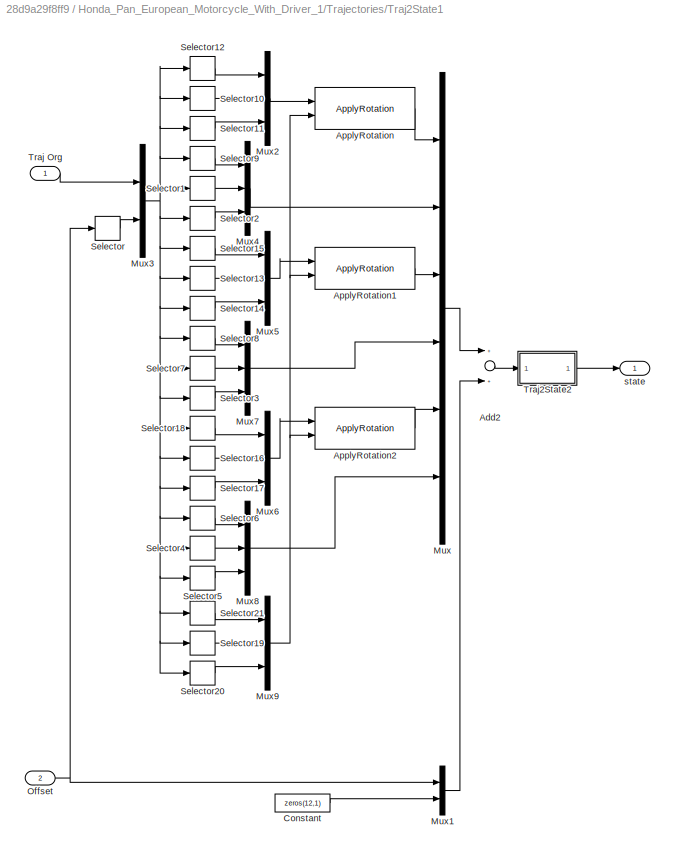
BLOCK [SubSystem] Honda_Pan_European_Motorcycle_With_Driver_1/Trajectories/Traj2State1
  DeleteFcn = PreScanBlockDeleteFcn;
  Ports = [2, 1]
  RequestExecContextInheritance = off
  Tag = Traj2State
BLOCK [Sum] Honda_Pan_European_Motorcycle_With_Driver_1/Trajectories/Traj2State1/Add2
  InputSameDT = off
  OutDataTypeStr = Inherit: Inherit via internal rule
  Ports = [2, 1]
  SaturateOnIntegerOverflow = off
BLOCK [Reference] Honda_Pan_European_Motorcycle_With_Driver_1/Trajectories/Traj2State1/ApplyRotation  REF=PreScanSimulinkLibrary/ApplyRotation
  Ports = [2, 1]
  SourceBlock = PreScanSimulinkLibrary/ApplyRotation
  SourceType = SubSystem
BLOCK [Reference] Honda_Pan_European_Motorcycle_With_Driver_1/Trajectories/Traj2State1/ApplyRotation1  REF=PreScanSimulinkLibrary/ApplyRotation
  Ports = [2, 1]
  SourceBlock = PreScanSimulinkLibrary/ApplyRotation
  SourceType = SubSystem
BLOCK [Reference] Honda_Pan_European_Motorcycle_With_Driver_1/Trajectories/Traj2State1/ApplyRotation2  REF=PreScanSimulinkLibrary/ApplyRotation
  Ports = [2, 1]
  SourceBlock = PreScanSimulinkLibrary/ApplyRotation
  SourceType = SubSystem
BLOCK [Constant] Honda_Pan_European_Motorcycle_With_Driver_1/Trajectories/Traj2State1/Constant
  Value = zeros(12,1)
BLOCK [Mux] Honda_Pan_European_Motorcycle_With_Driver_1/Trajectories/Traj2State1/Mux
  DisplayOption = bar
  Inputs = 6
  Ports = [6, 1]
BLOCK [Mux] Honda_Pan_European_Motorcycle_With_Driver_1/Trajectories/Traj2State1/Mux1
  DisplayOption = bar
  Inputs = 2
  Ports = [2, 1]
BLOCK [Mux] Honda_Pan_European_Motorcycle_With_Driver_1/Trajectories/Traj2State1/Mux2
  DisplayOption = bar
  Inputs = 3
  Ports = [3, 1]
BLOCK [Mux] Honda_Pan_European_Motorcycle_With_Driver_1/Trajectories/Traj2State1/Mux3
  DisplayOption = bar
  Inputs = 2
  Ports = [2, 1]
BLOCK [Mux] Honda_Pan_European_Motorcycle_With_Driver_1/Trajectories/Traj2State1/Mux4
  DisplayOption = bar
  Inputs = 3
  Ports = [3, 1]
BLOCK [Mux] Honda_Pan_European_Motorcycle_With_Driver_1/Trajectories/Traj2State1/Mux5
  DisplayOption = bar
  Inputs = 3
  Ports = [3, 1]
BLOCK [Mux] Honda_Pan_European_Motorcycle_With_Driver_1/Trajectories/Traj2State1/Mux6
  DisplayOption = bar
  Inputs = 3
  Ports = [3, 1]
BLOCK [Mux] Honda_Pan_European_Motorcycle_With_Driver_1/Trajectories/Traj2State1/Mux7
  DisplayOption = bar
  Inputs = 3
  Ports = [3, 1]
BLOCK [Mux] Honda_Pan_European_Motorcycle_With_Driver_1/Trajectories/Traj2State1/Mux8
  DisplayOption = bar
  Inputs = 3
  Ports = [3, 1]
BLOCK [Mux] Honda_Pan_European_Motorcycle_With_Driver_1/Trajectories/Traj2State1/Mux9
  DisplayOption = bar
  Inputs = 3
  Ports = [3, 1]
BLOCK [Inport] Honda_Pan_European_Motorcycle_With_Driver_1/Trajectories/Traj2State1/Offset
  IconDisplay = Port number
  Port = 2
BLOCK [Selector] Honda_Pan_European_Motorcycle_With_Driver_1/Trajectories/Traj2State1/Selector
  IndexOptions = Index vector (dialog)
  Indices = [4 5 6]
  InputPortWidth = 6
  OutputSizes = 1
  Ports = [1, 1]
BLOCK [Selector] Honda_Pan_European_Motorcycle_With_Driver_1/Trajectories/Traj2State1/Selector1
  IndexOptions = Index vector (dialog)
  Indices = [5]
  InputPortWidth = 21
  OutputSizes = 1
  Ports = [1, 1]
BLOCK [Selector] Honda_Pan_European_Motorcycle_With_Driver_1/Trajectories/Traj2State1/Selector10
  IndexOptions = Index vector (dialog)
  Indices = [2]
  InputPortWidth = 21
  OutputSizes = 1
  Ports = [1, 1]
BLOCK [Selector] Honda_Pan_European_Motorcycle_With_Driver_1/Trajectories/Traj2State1/Selector11
  IndexOptions = Index vector (dialog)
  Indices = [3]
  InputPortWidth = 21
  OutputSizes = 1
  Ports = [1, 1]
BLOCK [Selector] Honda_Pan_European_Motorcycle_With_Driver_1/Trajectories/Traj2State1/Selector12
  IndexOptions = Index vector (dialog)
  Indices = [1]
  InputPortWidth = 21
  OutputSizes = 1
  Ports = [1, 1]
BLOCK [Selector] Honda_Pan_European_Motorcycle_With_Driver_1/Trajectories/Traj2State1/Selector13
  IndexOptions = Index vector (dialog)
  Indices = [8]
  InputPortWidth = 21
  OutputSizes = 1
  Ports = [1, 1]
BLOCK [Selector] Honda_Pan_European_Motorcycle_With_Driver_1/Trajectories/Traj2State1/Selector14
  IndexOptions = Index vector (dialog)
  Indices = [9]
  InputPortWidth = 21
  OutputSizes = 1
  Ports = [1, 1]
BLOCK [Selector] Honda_Pan_European_Motorcycle_With_Driver_1/Trajectories/Traj2State1/Selector15
  IndexOptions = Index vector (dialog)
  Indices = [7]
  InputPortWidth = 21
  OutputSizes = 1
  Ports = [1, 1]
BLOCK [Selector] Honda_Pan_European_Motorcycle_With_Driver_1/Trajectories/Traj2State1/Selector16
  IndexOptions = Index vector (dialog)
  Indices = [14]
  InputPortWidth = 21
  OutputSizes = 1
  Ports = [1, 1]
BLOCK [Selector] Honda_Pan_European_Motorcycle_With_Driver_1/Trajectories/Traj2State1/Selector17
  IndexOptions = Index vector (dialog)
  Indices = [15]
  InputPortWidth = 21
  OutputSizes = 1
  Ports = [1, 1]
BLOCK [Selector] Honda_Pan_European_Motorcycle_With_Driver_1/Trajectories/Traj2State1/Selector18
  IndexOptions = Index vector (dialog)
  Indices = [13]
  InputPortWidth = 21
  OutputSizes = 1
  Ports = [1, 1]
BLOCK [Selector] Honda_Pan_European_Motorcycle_With_Driver_1/Trajectories/Traj2State1/Selector19
  IndexOptions = Index vector (dialog)
  Indices = [20]
  InputPortWidth = 21
  OutputSizes = 1
  Ports = [1, 1]
BLOCK [Selector] Honda_Pan_European_Motorcycle_With_Driver_1/Trajectories/Traj2State1/Selector2
  IndexOptions = Index vector (dialog)
  Indices = [6]
  InputPortWidth = 21
  OutputSizes = 1
  Ports = [1, 1]
BLOCK [Selector] Honda_Pan_European_Motorcycle_With_Driver_1/Trajectories/Traj2State1/Selector20
  IndexOptions = Index vector (dialog)
  Indices = [21]
  InputPortWidth = 21
  OutputSizes = 1
  Ports = [1, 1]
BLOCK [Selector] Honda_Pan_European_Motorcycle_With_Driver_1/Trajectories/Traj2State1/Selector21
  IndexOptions = Index vector (dialog)
  Indices = [19]
  InputPortWidth = 21
  OutputSizes = 1
  Ports = [1, 1]
BLOCK [Selector] Honda_Pan_European_Motorcycle_With_Driver_1/Trajectories/Traj2State1/Selector3
  IndexOptions = Index vector (dialog)
  Indices = [12]
  InputPortWidth = 21
  OutputSizes = 1
  Ports = [1, 1]
BLOCK [Selector] Honda_Pan_European_Motorcycle_With_Driver_1/Trajectories/Traj2State1/Selector4
  IndexOptions = Index vector (dialog)
  Indices = [17]
  InputPortWidth = 21
  OutputSizes = 1
  Ports = [1, 1]
BLOCK [Selector] Honda_Pan_European_Motorcycle_With_Driver_1/Trajectories/Traj2State1/Selector5
  IndexOptions = Index vector (dialog)
  Indices = [18]
  InputPortWidth = 21
  OutputSizes = 1
  Ports = [1, 1]
BLOCK [Selector] Honda_Pan_European_Motorcycle_With_Driver_1/Trajectories/Traj2State1/Selector6
  IndexOptions = Index vector (dialog)
  Indices = [16]
  InputPortWidth = 21
  OutputSizes = 1
  Ports = [1, 1]
BLOCK [Selector] Honda_Pan_European_Motorcycle_With_Driver_1/Trajectories/Traj2State1/Selector7
  IndexOptions = Index vector (dialog)
  Indices = [11]
  InputPortWidth = 21
  OutputSizes = 1
  Ports = [1, 1]
BLOCK [Selector] Honda_Pan_European_Motorcycle_With_Driver_1/Trajectories/Traj2State1/Selector8
  IndexOptions = Index vector (dialog)
  Indices = [10]
  InputPortWidth = 21
  OutputSizes = 1
  Ports = [1, 1]
BLOCK [Selector] Honda_Pan_European_Motorcycle_With_Driver_1/Trajectories/Traj2State1/Selector9
  IndexOptions = Index vector (dialog)
  Indices = [4]
  InputPortWidth = 21
  OutputSizes = 1
  Ports = [1, 1]
BLOCK [Inport] Honda_Pan_European_Motorcycle_With_Driver_1/Trajectories/Traj2State1/Traj Org
  IconDisplay = Port number
BLOCK [SubSystem] Honda_Pan_European_Motorcycle_With_Driver_1/Trajectories/Traj2State1/Traj2State2
  Ports = [1, 1]
  RequestExecContextInheritance = off
BLOCK [SubSystem] Honda_Pan_European_Motorcycle_With_Driver_1/Trajectories/Traj2State1/Traj2State2/MuxState
  Ports = [9, 1]
  RequestExecContextInheritance = off
BLOCK [Mux] Honda_Pan_European_Motorcycle_With_Driver_1/Trajectories/Traj2State1/Traj2State2/MuxState/Mux
  DisplayOption = bar
  Inputs = 9
  Ports = [9, 1]
BLOCK [Inport] Honda_Pan_European_Motorcycle_With_Driver_1/Trajectories/Traj2State1/Traj2State2/MuxState/P [rad]
  IconDisplay = Port number
  Port = 8
BLOCK [Inport] Honda_Pan_European_Motorcycle_With_Driver_1/Trajectories/Traj2State1/Traj2State2/MuxState/R [rad]
  IconDisplay = Port number
  Port = 7
BLOCK [Inport] Honda_Pan_European_Motorcycle_With_Driver_1/Trajectories/Traj2State1/Traj2State2/MuxState/Y [rad]
  IconDisplay = Port number
  Port = 9
BLOCK [Inport] Honda_Pan_European_Motorcycle_With_Driver_1/Trajectories/Traj2State1/Traj2State2/MuxState/dx [m//s]
  IconDisplay = Port number
  Port = 4
BLOCK [Inport] Honda_Pan_European_Motorcycle_With_Driver_1/Trajectories/Traj2State1/Traj2State2/MuxState/dy [m//s]
  IconDisplay = Port number
  Port = 5
BLOCK [Inport] Honda_Pan_European_Motorcycle_With_Driver_1/Trajectories/Traj2State1/Traj2State2/MuxState/dz [m//s]
  IconDisplay = Port number
  Port = 6
BLOCK [Outport] Honda_Pan_European_Motorcycle_With_Driver_1/Trajectories/Traj2State1/Traj2State2/MuxState/state
  IconDisplay = Port number
BLOCK [Inport] Honda_Pan_European_Motorcycle_With_Driver_1/Trajectories/Traj2State1/Traj2State2/MuxState/x [m]
  IconDisplay = Port number
BLOCK [Inport] Honda_Pan_European_Motorcycle_With_Driver_1/Trajectories/Traj2State1/Traj2State2/MuxState/y [m]
  IconDisplay = Port number
  Port = 2
BLOCK [Inport] Honda_Pan_European_Motorcycle_With_Driver_1/Trajectories/Traj2State1/Traj2State2/MuxState/z [m]
  IconDisplay = Port number
  Port = 3
BLOCK [SubSystem] Honda_Pan_European_Motorcycle_With_Driver_1/Trajectories/Traj2State1/Traj2State2/Traj2MuxState_Ext
  Ports = [1, 9]
  RequestExecContextInheritance = off
BLOCK [Outport] Honda_Pan_European_Motorcycle_With_Driver_1/Trajectories/Traj2State1/Traj2State2/Traj2MuxState_Ext/P [rad]
  IconDisplay = Port number
  Port = 8
BLOCK [Outport] Honda_Pan_European_Motorcycle_With_Driver_1/Trajectories/Traj2State1/Traj2State2/Traj2MuxState_Ext/R [rad]
  IconDisplay = Port number
  Port = 7
BLOCK [Terminator] Honda_Pan_European_Motorcycle_With_Driver_1/Trajectories/Traj2State1/Traj2State2/Traj2MuxState_Ext/Terminator1
BLOCK [Terminator] Honda_Pan_European_Motorcycle_With_Driver_1/Trajectories/Traj2State1/Traj2State2/Traj2MuxState_Ext/Terminator2
BLOCK [Terminator] Honda_Pan_European_Motorcycle_With_Driver_1/Trajectories/Traj2State1/Traj2State2/Traj2MuxState_Ext/Terminator3
BLOCK [Terminator] Honda_Pan_European_Motorcycle_With_Driver_1/Trajectories/Traj2State1/Traj2State2/Traj2MuxState_Ext/Terminator4
BLOCK [Terminator] Honda_Pan_European_Motorcycle_With_Driver_1/Trajectories/Traj2State1/Traj2State2/Traj2MuxState_Ext/Terminator5
BLOCK [Terminator] Honda_Pan_European_Motorcycle_With_Driver_1/Trajectories/Traj2State1/Traj2State2/Traj2MuxState_Ext/Terminator6
BLOCK [Terminator] Honda_Pan_European_Motorcycle_With_Driver_1/Trajectories/Traj2State1/Traj2State2/Traj2MuxState_Ext/Terminator7
BLOCK [Terminator] Honda_Pan_European_Motorcycle_With_Driver_1/Trajectories/Traj2State1/Traj2State2/Traj2MuxState_Ext/Terminator8
BLOCK [Terminator] Honda_Pan_European_Motorcycle_With_Driver_1/Trajectories/Traj2State1/Traj2State2/Traj2MuxState_Ext/Terminator9
BLOCK [Inport] Honda_Pan_European_Motorcycle_With_Driver_1/Trajectories/Traj2State1/Traj2State2/Traj2MuxState_Ext/Traj
  IconDisplay = Port number
BLOCK [Outport] Honda_Pan_European_Motorcycle_With_Driver_1/Trajectories/Traj2State1/Traj2State2/Traj2MuxState_Ext/Y [rad]
  IconDisplay = Port number
  Port = 9
BLOCK [SubSystem] Honda_Pan_European_Motorcycle_With_Driver_1/Trajectories/Traj2State1/Traj2State2/Traj2MuxState_Ext/demux
  Ports = [1, 18]
  RequestExecContextInheritance = off
BLOCK [Demux] Honda_Pan_European_Motorcycle_With_Driver_1/Trajectories/Traj2State1/Traj2State2/Traj2MuxState_Ext/demux/Demux
  DisplayOption = bar
  Outputs = 18
  Ports = [1, 18]
BLOCK [Outport] Honda_Pan_European_Motorcycle_With_Driver_1/Trajectories/Traj2State1/Traj2State2/Traj2MuxState_Ext/demux/P
  IconDisplay = Port number
  Port = 8
BLOCK [Outport] Honda_Pan_European_Motorcycle_With_Driver_1/Trajectories/Traj2State1/Traj2State2/Traj2MuxState_Ext/demux/R
  IconDisplay = Port number
  Port = 7
BLOCK [Outport] Honda_Pan_European_Motorcycle_With_Driver_1/Trajectories/Traj2State1/Traj2State2/Traj2MuxState_Ext/demux/Y
  IconDisplay = Port number
  Port = 9
BLOCK [Outport] Honda_Pan_European_Motorcycle_With_Driver_1/Trajectories/Traj2State1/Traj2State2/Traj2MuxState_Ext/demux/accP
  IconDisplay = Port number
  Port = 17
BLOCK [Outport] Honda_Pan_European_Motorcycle_With_Driver_1/Trajectories/Traj2State1/Traj2State2/Traj2MuxState_Ext/demux/accR
  IconDisplay = Port number
  Port = 16
BLOCK [Outport] Honda_Pan_European_Motorcycle_With_Driver_1/Trajectories/Traj2State1/Traj2State2/Traj2MuxState_Ext/demux/accY
  IconDisplay = Port number
  Port = 18
BLOCK [Outport] Honda_Pan_European_Motorcycle_With_Driver_1/Trajectories/Traj2State1/Traj2State2/Traj2MuxState_Ext/demux/accx
  IconDisplay = Port number
  Port = 13
BLOCK [Outport] Honda_Pan_European_Motorcycle_With_Driver_1/Trajectories/Traj2State1/Traj2State2/Traj2MuxState_Ext/demux/accy
  IconDisplay = Port number
  Port = 14
BLOCK [Outport] Honda_Pan_European_Motorcycle_With_Driver_1/Trajectories/Traj2State1/Traj2State2/Traj2MuxState_Ext/demux/accz
  IconDisplay = Port number
  Port = 15
BLOCK [Inport] Honda_Pan_European_Motorcycle_With_Driver_1/Trajectories/Traj2State1/Traj2State2/Traj2MuxState_Ext/demux/traj
  IconDisplay = Port number
BLOCK [Outport] Honda_Pan_European_Motorcycle_With_Driver_1/Trajectories/Traj2State1/Traj2State2/Traj2MuxState_Ext/demux/velP
  IconDisplay = Port number
  Port = 11
BLOCK [Outport] Honda_Pan_European_Motorcycle_With_Driver_1/Trajectories/Traj2State1/Traj2State2/Traj2MuxState_Ext/demux/velR
  IconDisplay = Port number
  Port = 10
BLOCK [Outport] Honda_Pan_European_Motorcycle_With_Driver_1/Trajectories/Traj2State1/Traj2State2/Traj2MuxState_Ext/demux/velY
  IconDisplay = Port number
  Port = 12
BLOCK [Outport] Honda_Pan_European_Motorcycle_With_Driver_1/Trajectories/Traj2State1/Traj2State2/Traj2MuxState_Ext/demux/velx
  IconDisplay = Port number
  Port = 4
BLOCK [Outport] Honda_Pan_European_Motorcycle_With_Driver_1/Trajectories/Traj2State1/Traj2State2/Traj2MuxState_Ext/demux/vely
  IconDisplay = Port number
  Port = 5
BLOCK [Outport] Honda_Pan_European_Motorcycle_With_Driver_1/Trajectories/Traj2State1/Traj2State2/Traj2MuxState_Ext/demux/velz
  IconDisplay = Port number
  Port = 6
BLOCK [Outport] Honda_Pan_European_Motorcycle_With_Driver_1/Trajectories/Traj2State1/Traj2State2/Traj2MuxState_Ext/demux/x
  IconDisplay = Port number
BLOCK [Outport] Honda_Pan_European_Motorcycle_With_Driver_1/Trajectories/Traj2State1/Traj2State2/Traj2MuxState_Ext/demux/y
  IconDisplay = Port number
  Port = 2
BLOCK [Outport] Honda_Pan_European_Motorcycle_With_Driver_1/Trajectories/Traj2State1/Traj2State2/Traj2MuxState_Ext/demux/z
  IconDisplay = Port number
  Port = 3
BLOCK [Outport] Honda_Pan_European_Motorcycle_With_Driver_1/Trajectories/Traj2State1/Traj2State2/Traj2MuxState_Ext/dx [m//s]
  IconDisplay = Port number
  Port = 4
BLOCK [Outport] Honda_Pan_European_Motorcycle_With_Driver_1/Trajectories/Traj2State1/Traj2State2/Traj2MuxState_Ext/dy [m//s]
  IconDisplay = Port number
  Port = 5
BLOCK [Outport] Honda_Pan_European_Motorcycle_With_Driver_1/Trajectories/Traj2State1/Traj2State2/Traj2MuxState_Ext/dz [m//s]
  IconDisplay = Port number
  Port = 6
BLOCK [Outport] Honda_Pan_European_Motorcycle_With_Driver_1/Trajectories/Traj2State1/Traj2State2/Traj2MuxState_Ext/x [m]
  IconDisplay = Port number
BLOCK [Outport] Honda_Pan_European_Motorcycle_With_Driver_1/Trajectories/Traj2State1/Traj2State2/Traj2MuxState_Ext/y [m]
  IconDisplay = Port number
  Port = 2
BLOCK [Outport] Honda_Pan_European_Motorcycle_With_Driver_1/Trajectories/Traj2State1/Traj2State2/Traj2MuxState_Ext/z [m]
  IconDisplay = Port number
  Port = 3
BLOCK [Outport] Honda_Pan_European_Motorcycle_With_Driver_1/Trajectories/Traj2State1/Traj2State2/state
  IconDisplay = Port number
BLOCK [Inport] Honda_Pan_European_Motorcycle_With_Driver_1/Trajectories/Traj2State1/Traj2State2/traj
  IconDisplay = Port number
BLOCK [Outport] Honda_Pan_European_Motorcycle_With_Driver_1/Trajectories/Traj2State1/state
  IconDisplay = Port number
BLOCK [SubSystem] Honda_Pan_European_Motorcycle_With_Driver_1/Trajectories/TrajCoGOffset
  DeleteFcn = PreScanBlockDeleteFcn;
  Ports = [1, 1]
  RequestExecContextInheritance = off
  Tag = TrajCoGOffset
BLOCK [Sum] Honda_Pan_European_Motorcycle_With_Driver_1/Trajectories/TrajCoGOffset/Add
  InputSameDT = off
  Inputs = +-+
  OutDataTypeStr = Inherit: Inherit via internal rule
  Ports = [3, 1]
  SaturateOnIntegerOverflow = off
BLOCK [Sum] Honda_Pan_European_Motorcycle_With_Driver_1/Trajectories/TrajCoGOffset/Add1
  InputSameDT = off
  OutDataTypeStr = Inherit: Inherit via internal rule
  Ports = [2, 1]
  SaturateOnIntegerOverflow = off
BLOCK [Reference] Honda_Pan_European_Motorcycle_With_Driver_1/Trajectories/TrajCoGOffset/ApplyRotation  REF=PreScanSimulinkLibrary/ApplyRotation
  Ports = [2, 1]
  SourceBlock = PreScanSimulinkLibrary/ApplyRotation
  SourceType = SubSystem
BLOCK [Reference] Honda_Pan_European_Motorcycle_With_Driver_1/Trajectories/TrajCoGOffset/ApplyRotation1  REF=PreScanSimulinkLibrary/ApplyRotation
  Ports = [2, 1]
  SourceBlock = PreScanSimulinkLibrary/ApplyRotation
  SourceType = SubSystem
BLOCK [Constant] Honda_Pan_European_Motorcycle_With_Driver_1/Trajectories/TrajCoGOffset/CoG Offset
  Value = [0 0 CoGOffsetZ]
BLOCK [Reference] Honda_Pan_European_Motorcycle_With_Driver_1/Trajectories/TrajCoGOffset/Degrees to Radians  REF=simulink_extras/Transformations/Degrees to
Radians
  Ports = [1, 1]
  SourceBlock = simulink_extras/Transformations/Degrees to\nRadians
  SourceProductBaseCode = SL
  SourceProductName = Simulink
  SourceType = DegreesToRadians
BLOCK [Demux] Honda_Pan_European_Motorcycle_With_Driver_1/Trajectories/TrajCoGOffset/Demux1
  DisplayOption = bar
  Outputs = [3 3 3]
  Ports = [1, 3]
BLOCK [Mux] Honda_Pan_European_Motorcycle_With_Driver_1/Trajectories/TrajCoGOffset/Mux
  DisplayOption = bar
  Inputs = [3 3 3]
  Ports = [3, 1]
BLOCK [Constant] Honda_Pan_European_Motorcycle_With_Driver_1/Trajectories/TrajCoGOffset/Orientation
  Value = [InitRoll InitPitch 0]
BLOCK [Inport] Honda_Pan_European_Motorcycle_With_Driver_1/Trajectories/TrajCoGOffset/State In
  IconDisplay = Port number
BLOCK [Outport] Honda_Pan_European_Motorcycle_With_Driver_1/Trajectories/TrajCoGOffset/State Out
  IconDisplay = Port number
BLOCK [SubSystem] Honda_Pan_European_Motorcycle_With_Driver_1/Trajectories/Trajectory_2
  DeleteFcn = PreScanBlockDeleteFcn;
  Ports = [0, 1]
  RequestExecContextInheritance = off
  Tag = Trajectory
BLOCK [FromWorkspace] Honda_Pan_European_Motorcycle_With_Driver_1/Trajectories/Trajectory_2/From Workspace
  OutputAfterFinalValue = Holding final value
  SampleTime = TimeStep
  VariableName = trajectory
BLOCK [FromWorkspace] Honda_Pan_European_Motorcycle_With_Driver_1/Trajectories/Trajectory_2/From Workspace1
  OutputAfterFinalValue = Setting to zero
  SampleTime = TimeStep
  VariableName = trajectory
BLOCK [Mux] Honda_Pan_European_Motorcycle_With_Driver_1/Trajectories/Trajectory_2/Mux
  DisplayOption = bar
  Inputs = 2
  Ports = [2, 1]
BLOCK [Selector] Honda_Pan_European_Motorcycle_With_Driver_1/Trajectories/Trajectory_2/Selector1
  IndexOptions = Index vector (dialog)
  Indices = [7:18]
  InputPortWidth = 24
  OutputSizes = 1
  Ports = [1, 1]
BLOCK [Selector] Honda_Pan_European_Motorcycle_With_Driver_1/Trajectories/Trajectory_2/Selector9
  IndexOptions = Index vector (dialog)
  Indices = [1:6]
  InputPortWidth = 24
  OutputSizes = 1
  Ports = [1, 1]
BLOCK [Outport] Honda_Pan_European_Motorcycle_With_Driver_1/Trajectories/Trajectory_2/trajectory
  IconDisplay = Port number
BLOCK [Constant] Honda_Pan_European_Motorcycle_With_Driver_1/Trajectories/Trajectory_2_Offset
  Tag = TrajectoryOffset
  Value = [0  0  0  0  0  0]
BLOCK [Outport] Honda_Pan_European_Motorcycle_With_Driver_1/VISUColorRegion_Exterior_Honda_Pan_European_Motorcycle_With_Driver_1
  IconDisplay = Port number
  OutDataTypeStr = Bus: PRESCAN_COLOR_DATA
  Port = 2
  PortDimensions = 1
  SampleTime = 2/40
  Tag = outport/ColorRegion
BLOCK [SubSystem] Honda_Pan_European_Motorcycle_With_Driver_1/VISUColorRegion_Exterior_Mux
  DeleteFcn = PreScanBlockDeleteFcn;
  LoadFcn = load PrescanColorData
  Ports = [1, 1]
  RequestExecContextInheritance = off
  Tag = mux/MuxColorRegion
BLOCK [BusCreator] Honda_Pan_European_Motorcycle_With_Driver_1/VISUColorRegion_Exterior_Mux/Bus Creator
  DisplayOption = bar
  InheritFromInputs = on
  Inputs = 4
  NonVirtualBus = on
  OutDataTypeStr = Bus: PRESCAN_COLOR_DATA
  Ports = [4, 1]
BLOCK [Outport] Honda_Pan_European_Motorcycle_With_Driver_1/VISUColorRegion_Exterior_Mux/ColorRegion
  IconDisplay = Port number
  OutDataTypeStr = Bus: PRESCAN_COLOR_DATA
  PortDimensions = 1
BLOCK [Constant] Honda_Pan_European_Motorcycle_With_Driver_1/VISUColorRegion_Exterior_Mux/Constant
  OutDataTypeStr = uint8
  Value = 255
BLOCK [DataTypeConversion] Honda_Pan_European_Motorcycle_With_Driver_1/VISUColorRegion_Exterior_Mux/Data Type Conversion
  OutDataTypeStr = uint8
  RndMeth = Floor
  SaturateOnIntegerOverflow = off
BLOCK [DataTypeConversion] Honda_Pan_European_Motorcycle_With_Driver_1/VISUColorRegion_Exterior_Mux/Data Type Conversion1
  OutDataTypeStr = uint8
  RndMeth = Floor
  SaturateOnIntegerOverflow = off
BLOCK [DataTypeConversion] Honda_Pan_European_Motorcycle_With_Driver_1/VISUColorRegion_Exterior_Mux/Data Type Conversion2
  OutDataTypeStr = uint8
  RndMeth = Floor
  SaturateOnIntegerOverflow = off
BLOCK [Demux] Honda_Pan_European_Motorcycle_With_Driver_1/VISUColorRegion_Exterior_Mux/Demux
  DisplayOption = bar
  Outputs = 3
  Ports = [1, 3]
BLOCK [Inport] Honda_Pan_European_Motorcycle_With_Driver_1/VISUColorRegion_Exterior_Mux/RGB [-,-,-]
  IconDisplay = Port number
BLOCK [SubSystem] ObjectCameraSensor_1
  LoadFcn = load('PrescanOCSData.mat');load('PrescanOCSMessage.mat')
  OpenFcn = open_system([gcb '/Sensor'],'mask')
  Ports = [0, 2]
  Priority = 3
  RequestExecContextInheritance = off
  Tag = sensor/ObjectCamera/data
BLOCK [Outport] ObjectCameraSensor_1/ObjectCameraSensor_1
  IconDisplay = Port number
  OutDataTypeStr = Bus: PRESCAN_OCS_MESSAGE
  PortDimensions = 32
  SampleTime = 1/20
  Tag = outport/ObjectCamera/data
BLOCK [Outport] ObjectCameraSensor_1/ObjectCameraSensor_1_Image
  IconDisplay = Port number
  OutDataTypeStr = uint8
  Port = 2
  SampleTime = 1/20
  Tag = outport/ObjectCamera/image
BLOCK [S-Function] ObjectCameraSensor_1/Sensor
  EnableBusSupport = off
  FunctionName = sfun_OCS
  Parameters = sensorID, detectableObjects, dataWidth, dataHeight, channelsPerImage, timestep
  Ports = [0, 2]
  SFcnIsStateOwnerBlock = off
  SFunctionDeploymentMode = off
BLOCK [SubSystem] PreScanTerminator
  LoadFcn = load PrescanTerminatorData
  Ports = []
  Priority = 999
  RequestExecContextInheritance = off
  Tag = PreScanTerminator
BLOCK [Terminator] PreScanTerminator/Terminator
BLOCK [S-Function] PreScanTerminator/sfun_Terminator
  EnableBusSupport = off
  FunctionName = sfun_Terminator
  Parameters = SampleTime
  Ports = [0, 1]
  SFcnIsStateOwnerBlock = off
  SFunctionDeploymentMode = off
BLOCK [SubSystem] SELF_BMW_X5_SUV_1
  LoadFcn = load('PreScanSelfSensorData.mat')
  OpenFcn = open_system([gcb '/Sensor'],'mask')
  Ports = [0, 1]
  Priority = 3
  RequestExecContextInheritance = off
  Tag = sensor/SelfPort
BLOCK [Outport] SELF_BMW_X5_SUV_1/SELF_BMW_X5_SUV_1
  IconDisplay = Port number
  OutDataTypeStr = Bus: PRESCAN_SELFSENSORDATA
  PortDimensions = 1
  SampleTime = 2/40
  Tag = outport/SelfPort
BLOCK [S-Function] SELF_BMW_X5_SUV_1/Sensor
  EnableBusSupport = off
  FunctionName = sfun_SelfSensor
  Parameters = UniqueID, TimeStep
  Ports = [0, 1]
  SFcnIsStateOwnerBlock = off
  SFunctionDeploymentMode = off
BLOCK [SubSystem] SELF_Honda_Pan_European_Motorcycle_With_Driver_1
  LoadFcn = load('PreScanSelfSensorData.mat')
  OpenFcn = open_system([gcb '/Sensor'],'mask')
  Ports = [0, 1]
  Priority = 3
  RequestExecContextInheritance = off
  Tag = sensor/SelfPort
BLOCK [Outport] SELF_Honda_Pan_European_Motorcycle_With_Driver_1/SELF_Honda_Pan_European_Motorcycle_With_Driver_1
  IconDisplay = Port number
  OutDataTypeStr = Bus: PRESCAN_SELFSENSORDATA
  PortDimensions = 1
  SampleTime = 2/40
  Tag = outport/SelfPort
BLOCK [S-Function] SELF_Honda_Pan_European_Motorcycle_With_Driver_1/Sensor
  EnableBusSupport = off
  FunctionName = sfun_SelfSensor
  Parameters = UniqueID, TimeStep
  Ports = [0, 1]
  SFcnIsStateOwnerBlock = off
  SFunctionDeploymentMode = off
BLOCK [SubSystem] STATE_BMW_X5_SUV_1_bus
  LoadFcn = load('PreScanStateActuatorData.mat')
  OpenFcn = open_system([gcb '/Actuator'],'mask')
  Ports = [1]
  Priority = 0
  RequestExecContextInheritance = off
  Tag = actuator/StatePort
BLOCK [S-Function] STATE_BMW_X5_SUV_1_bus/Actuator
  EnableBusSupport = off
  FunctionName = sfun_StateActuator
  Parameters = UniqueID, TimeStep
  Ports = [1]
  SFcnIsStateOwnerBlock = off
  SFunctionDeploymentMode = off
BLOCK [Inport] STATE_BMW_X5_SUV_1_bus/STATE_BMW_X5_SUV_1_bus
  BusOutputAsStruct = on
  IconDisplay = Port number
  OutDataTypeStr = Bus: PRESCAN_STATEACTUATORDATA
  PortDimensions = 1
  SampleTime = 2/40
  Tag = inport/StatePort
BLOCK [SubSystem] STATE_Honda_Pan_European_Motorcycle_With_Driver_1_bus
  LoadFcn = load('PreScanStateActuatorData.mat')
  OpenFcn = open_system([gcb '/Actuator'],'mask')
  Ports = [1]
  Priority = 0
  RequestExecContextInheritance = off
  Tag = actuator/StatePort
BLOCK [S-Function] STATE_Honda_Pan_European_Motorcycle_With_Driver_1_bus/Actuator
  EnableBusSupport = off
  FunctionName = sfun_StateActuator
  Parameters = UniqueID, TimeStep
  Ports = [1]
  SFcnIsStateOwnerBlock = off
  SFunctionDeploymentMode = off
BLOCK [Inport] STATE_Honda_Pan_European_Motorcycle_With_Driver_1_bus/STATE_Honda_Pan_European_Motorcycle_With_Driver_1_bus
  BusOutputAsStruct = on
  IconDisplay = Port number
  OutDataTypeStr = Bus: PRESCAN_STATEACTUATORDATA
  PortDimensions = 1
  SampleTime = 2/40
  Tag = inport/StatePort
BLOCK [SubSystem] Synchronizer
  DeleteFcn = PreScanBlockDeleteFcn;
  LoadFcn = load PrescanSynchronizeData
  Ports = []
  Priority = 1
  RequestExecContextInheritance = off
  Tag = PreScanSynchronizer
BLOCK [BusSelector] Synchronizer/Bus Selector1
  OutputAsBus = off
  OutputSignals = FederateStopped
  Ports = [1, 1]
BLOCK [Stop] Synchronizer/Stop Simulation
BLOCK [S-Function] Synchronizer/sfun_Synchronizer
  EnableBusSupport = off
  FunctionName = sfun_Synchronizer
  Parameters = SampleTime
  Ports = [0, 1]
  SFcnIsStateOwnerBlock = off
  SFunctionDeploymentMode = off
BLOCK [Terminator] Terminator_1
BLOCK [SubSystem] VISUColorRegion_Exterior_Honda_Pan_European_Motorcycle_With_Driver_1
  LoadFcn = load('PrescanColorData')
  OpenFcn = open_system([gcb '/Actuator'],'mask')
  Ports = [1]
  Priority = 0
  RequestExecContextInheritance = off
  Tag = actuator/ColorRegion
BLOCK [S-Function] VISUColorRegion_Exterior_Honda_Pan_European_Motorcycle_With_Driver_1/Actuator
  EnableBusSupport = off
  FunctionName = sfun_ColorActuator
  Parameters = mbxruntime.parameters.convert(UniqueID), mbxruntime.parameters.convert(WorldModelSubPath),tabledata, TimeStep
  Ports = [1]
  SFcnIsStateOwnerBlock = off
  SFunctionDeploymentMode = off
BLOCK [Inport] VISUColorRegion_Exterior_Honda_Pan_European_Motorcycle_With_Driver_1/VISUColorRegion_Exterior_Honda_Pan_European_Motorcycle_With_Driver_1
  BusOutputAsStruct = on
  IconDisplay = Port number
  OutDataTypeStr = Bus: PRESCAN_COLOR_DATA
  PortDimensions = 1
  SampleTime = 2/40
  Tag = inport/ColorRegion
ANNOTATION (root): 8.5.0
ANNOTATION (root): == CD == Y Y
ANNOTATION (root): == SD == Y Y
ANNOTATION (root): ====== Num ID ====== 18 22
ANNOTATION (root): ======= Type ID ======= 1 2
ANNOTATION (root): ======== Type Tag ======== Car Motor
ANNOTATION (root): ============= OBU-Beacon ID =============
ANNOTATION (root): ================================== Name ================================== BMW_X5_SUV_1 Honda_Pan_European_Motorcycle_With_Driver_1
ANNOTATION (root): Author(s):
ANNOTATION (root): Descriptive text:
ANNOTATION (root): N.A.
ANNOTATION (root): Open Useful Blocks
ANNOTATION (root): Regenerate
ANNOTATION (root): Simulink Mode
ANNOTATION (root): Version:
LINE BMW_X5_SUV_1/Bus Selector:1 -> BMW_X5_SUV_1/To Workspace:1
LINE BMW_X5_SUV_1/Bus Selector:2 -> BMW_X5_SUV_1/To Workspace1:1
LINE BMW_X5_SUV_1/Bus Selector:3 -> BMW_X5_SUV_1/To Workspace2:1
LINE BMW_X5_SUV_1/Bus Selector:4 -> BMW_X5_SUV_1/To Workspace3:1
LINE BMW_X5_SUV_1/Bus Selector:5 -> BMW_X5_SUV_1/To Workspace4:1
LINE BMW_X5_SUV_1/Bus Selector:6 -> BMW_X5_SUV_1/To Workspace5:1
LINE BMW_X5_SUV_1/Bus Selector:7 -> BMW_X5_SUV_1/To Workspace6:1
LINE BMW_X5_SUV_1/ObjectCameraSensor_1:1 -> BMW_X5_SUV_1/ObjectCameraSensor_1_Demux:1
LINE BMW_X5_SUV_1/ObjectCameraSensor_1_Demux/Bus Creator1:1 -> BMW_X5_SUV_1/ObjectCameraSensor_1_Demux/OCS Data:1
LINE BMW_X5_SUV_1/ObjectCameraSensor_1_Demux/Bus Selector:1 -> BMW_X5_SUV_1/ObjectCameraSensor_1_Demux/Signal2ArrayOfSignals2:2
LINE BMW_X5_SUV_1/ObjectCameraSensor_1_Demux/Bus Selector:10 -> BMW_X5_SUV_1/ObjectCameraSensor_1_Demux/Signal2ArrayOfSignals10:2
LINE BMW_X5_SUV_1/ObjectCameraSensor_1_Demux/Bus Selector:2 -> BMW_X5_SUV_1/ObjectCameraSensor_1_Demux/Signal2ArrayOfSignals6:2
LINE BMW_X5_SUV_1/ObjectCameraSensor_1_Demux/Bus Selector:3 -> BMW_X5_SUV_1/ObjectCameraSensor_1_Demux/Signal2ArrayOfSignals1:2
LINE BMW_X5_SUV_1/ObjectCameraSensor_1_Demux/Bus Selector:4 -> BMW_X5_SUV_1/ObjectCameraSensor_1_Demux/Signal2ArrayOfSignals3:2
LINE BMW_X5_SUV_1/ObjectCameraSensor_1_Demux/Bus Selector:5 -> BMW_X5_SUV_1/ObjectCameraSensor_1_Demux/Signal2ArrayOfSignals4:2
LINE BMW_X5_SUV_1/ObjectCameraSensor_1_Demux/Bus Selector:6 -> BMW_X5_SUV_1/ObjectCameraSensor_1_Demux/Signal2ArrayOfSignals5:2
LINE BMW_X5_SUV_1/ObjectCameraSensor_1_Demux/Bus Selector:7 -> BMW_X5_SUV_1/ObjectCameraSensor_1_Demux/Signal2ArrayOfSignals7:2
LINE BMW_X5_SUV_1/ObjectCameraSensor_1_Demux/Bus Selector:8 -> BMW_X5_SUV_1/ObjectCameraSensor_1_Demux/Signal2ArrayOfSignals8:2
LINE BMW_X5_SUV_1/ObjectCameraSensor_1_Demux/Bus Selector:9 -> BMW_X5_SUV_1/ObjectCameraSensor_1_Demux/Signal2ArrayOfSignals9:2
NET BMW_X5_SUV_1/ObjectCameraSensor_1_Demux/For Iterator:1 -> BMW_X5_SUV_1/ObjectCameraSensor_1_Demux/Selector:2, BMW_X5_SUV_1/ObjectCameraSensor_1_Demux/Signal2ArrayOfSignals10:1, BMW_X5_SUV_1/ObjectCameraSensor_1_Demux/Signal2ArrayOfSignals1:1, BMW_X5_SUV_1/ObjectCameraSensor_1_Demux/Signal2ArrayOfSignals2:1, BMW_X5_SUV_1/ObjectCameraSensor_1_Demux/Signal2ArrayOfSignals3:1, BMW_X5_SUV_1/ObjectCameraSensor_1_Demux/Signal2ArrayOfSignals4:1, BMW_X5_SUV_1/ObjectCameraSensor_1_Demux/Signal2ArrayOfSignals5:1, BMW_X5_SUV_1/ObjectCameraSensor_1_Demux/Signal2ArrayOfSignals6:1, BMW_X5_SUV_1/ObjectCameraSensor_1_Demux/Signal2ArrayOfSignals7:1, BMW_X5_SUV_1/ObjectCameraSensor_1_Demux/Signal2ArrayOfSignals8:1, BMW_X5_SUV_1/ObjectCameraSensor_1_Demux/Signal2ArrayOfSignals9:1
LINE BMW_X5_SUV_1/ObjectCameraSensor_1_Demux/OCS:1 -> BMW_X5_SUV_1/ObjectCameraSensor_1_Demux/Selector:1
LINE BMW_X5_SUV_1/ObjectCameraSensor_1_Demux/Selector:1 -> BMW_X5_SUV_1/ObjectCameraSensor_1_Demux/Bus Selector:1
NET BMW_X5_SUV_1/ObjectCameraSensor_1_Demux/Signal2ArrayOfSignals10:1 -> BMW_X5_SUV_1/ObjectCameraSensor_1_Demux/Bus Creator1:16, BMW_X5_SUV_1/ObjectCameraSensor_1_Demux/ToCamAxesComponents1:3, BMW_X5_SUV_1/ObjectCameraSensor_1_Demux/ToCamAxesComponents2:3
LINE BMW_X5_SUV_1/ObjectCameraSensor_1_Demux/Signal2ArrayOfSignals1:1 -> BMW_X5_SUV_1/ObjectCameraSensor_1_Demux/Bus Creator1:3
LINE BMW_X5_SUV_1/ObjectCameraSensor_1_Demux/Signal2ArrayOfSignals2:1 -> BMW_X5_SUV_1/ObjectCameraSensor_1_Demux/Bus Creator1:1
LINE BMW_X5_SUV_1/ObjectCameraSensor_1_Demux/Signal2ArrayOfSignals3:1 -> BMW_X5_SUV_1/ObjectCameraSensor_1_Demux/Bus Creator1:4
LINE BMW_X5_SUV_1/ObjectCameraSensor_1_Demux/Signal2ArrayOfSignals4:1 -> BMW_X5_SUV_1/ObjectCameraSensor_1_Demux/Bus Creator1:5
LINE BMW_X5_SUV_1/ObjectCameraSensor_1_Demux/Signal2ArrayOfSignals5:1 -> BMW_X5_SUV_1/ObjectCameraSensor_1_Demux/Bus Creator1:6
LINE BMW_X5_SUV_1/ObjectCameraSensor_1_Demux/Signal2ArrayOfSignals6:1 -> BMW_X5_SUV_1/ObjectCameraSensor_1_Demux/Bus Creator1:2
NET BMW_X5_SUV_1/ObjectCameraSensor_1_Demux/Signal2ArrayOfSignals7:1 -> BMW_X5_SUV_1/ObjectCameraSensor_1_Demux/Bus Creator1:7, BMW_X5_SUV_1/ObjectCameraSensor_1_Demux/ToCamAxesComponents1:1
NET BMW_X5_SUV_1/ObjectCameraSensor_1_Demux/Signal2ArrayOfSignals8:1 -> BMW_X5_SUV_1/ObjectCameraSensor_1_Demux/Bus Creator1:11, BMW_X5_SUV_1/ObjectCameraSensor_1_Demux/ToCamAxesComponents2:1
NET BMW_X5_SUV_1/ObjectCameraSensor_1_Demux/Signal2ArrayOfSignals9:1 -> BMW_X5_SUV_1/ObjectCameraSensor_1_Demux/Bus Creator1:15, BMW_X5_SUV_1/ObjectCameraSensor_1_Demux/ToCamAxesComponents1:2, BMW_X5_SUV_1/ObjectCameraSensor_1_Demux/ToCamAxesComponents2:2
LINE BMW_X5_SUV_1/ObjectCameraSensor_1_Demux/ToCamAxesComponents1/Add:1 -> BMW_X5_SUV_1/ObjectCameraSensor_1_Demux/ToCamAxesComponents1/Cnvert2:3
LINE BMW_X5_SUV_1/ObjectCameraSensor_1_Demux/ToCamAxesComponents1/Cnvert2:1 -> BMW_X5_SUV_1/ObjectCameraSensor_1_Demux/ToCamAxesComponents1/ComponentX:1
LINE BMW_X5_SUV_1/ObjectCameraSensor_1_Demux/ToCamAxesComponents1/Cnvert2:2 -> BMW_X5_SUV_1/ObjectCameraSensor_1_Demux/ToCamAxesComponents1/ComponentY:1
LINE BMW_X5_SUV_1/ObjectCameraSensor_1_Demux/ToCamAxesComponents1/Cnvert2:3 -> BMW_X5_SUV_1/ObjectCameraSensor_1_Demux/ToCamAxesComponents1/ComponentZ:1
LINE BMW_X5_SUV_1/ObjectCameraSensor_1_Demux/ToCamAxesComponents1/Constant:1 -> BMW_X5_SUV_1/ObjectCameraSensor_1_Demux/ToCamAxesComponents1/Add:1
LINE BMW_X5_SUV_1/ObjectCameraSensor_1_Demux/ToCamAxesComponents1/Gain:1 -> BMW_X5_SUV_1/ObjectCameraSensor_1_Demux/ToCamAxesComponents1/Cnvert2:2
LINE BMW_X5_SUV_1/ObjectCameraSensor_1_Demux/ToCamAxesComponents1/phi:1 -> BMW_X5_SUV_1/ObjectCameraSensor_1_Demux/ToCamAxesComponents1/Add:2
LINE BMW_X5_SUV_1/ObjectCameraSensor_1_Demux/ToCamAxesComponents1/rho:1 -> BMW_X5_SUV_1/ObjectCameraSensor_1_Demux/ToCamAxesComponents1/Cnvert2:1
LINE BMW_X5_SUV_1/ObjectCameraSensor_1_Demux/ToCamAxesComponents1/theta:1 -> BMW_X5_SUV_1/ObjectCameraSensor_1_Demux/ToCamAxesComponents1/Gain:1
LINE BMW_X5_SUV_1/ObjectCameraSensor_1_Demux/ToCamAxesComponents1:1 -> BMW_X5_SUV_1/ObjectCameraSensor_1_Demux/Bus Creator1:8
LINE BMW_X5_SUV_1/ObjectCameraSensor_1_Demux/ToCamAxesComponents1:2 -> BMW_X5_SUV_1/ObjectCameraSensor_1_Demux/Bus Creator1:9
LINE BMW_X5_SUV_1/ObjectCameraSensor_1_Demux/ToCamAxesComponents1:3 -> BMW_X5_SUV_1/ObjectCameraSensor_1_Demux/Bus Creator1:10
LINE BMW_X5_SUV_1/ObjectCameraSensor_1_Demux/ToCamAxesComponents2/Add:1 -> BMW_X5_SUV_1/ObjectCameraSensor_1_Demux/ToCamAxesComponents2/Cnvert2:3
LINE BMW_X5_SUV_1/ObjectCameraSensor_1_Demux/ToCamAxesComponents2/Cnvert2:1 -> BMW_X5_SUV_1/ObjectCameraSensor_1_Demux/ToCamAxesComponents2/ComponentX:1
LINE BMW_X5_SUV_1/ObjectCameraSensor_1_Demux/ToCamAxesComponents2/Cnvert2:2 -> BMW_X5_SUV_1/ObjectCameraSensor_1_Demux/ToCamAxesComponents2/ComponentY:1
LINE BMW_X5_SUV_1/ObjectCameraSensor_1_Demux/ToCamAxesComponents2/Cnvert2:3 -> BMW_X5_SUV_1/ObjectCameraSensor_1_Demux/ToCamAxesComponents2/ComponentZ:1
LINE BMW_X5_SUV_1/ObjectCameraSensor_1_Demux/ToCamAxesComponents2/Constant:1 -> BMW_X5_SUV_1/ObjectCameraSensor_1_Demux/ToCamAxesComponents2/Add:1
LINE BMW_X5_SUV_1/ObjectCameraSensor_1_Demux/ToCamAxesComponents2/Gain:1 -> BMW_X5_SUV_1/ObjectCameraSensor_1_Demux/ToCamAxesComponents2/Cnvert2:2
LINE BMW_X5_SUV_1/ObjectCameraSensor_1_Demux/ToCamAxesComponents2/phi:1 -> BMW_X5_SUV_1/ObjectCameraSensor_1_Demux/ToCamAxesComponents2/Add:2
LINE BMW_X5_SUV_1/ObjectCameraSensor_1_Demux/ToCamAxesComponents2/rho:1 -> BMW_X5_SUV_1/ObjectCameraSensor_1_Demux/ToCamAxesComponents2/Cnvert2:1
LINE BMW_X5_SUV_1/ObjectCameraSensor_1_Demux/ToCamAxesComponents2/theta:1 -> BMW_X5_SUV_1/ObjectCameraSensor_1_Demux/ToCamAxesComponents2/Gain:1
LINE BMW_X5_SUV_1/ObjectCameraSensor_1_Demux/ToCamAxesComponents2:1 -> BMW_X5_SUV_1/ObjectCameraSensor_1_Demux/Bus Creator1:12
LINE BMW_X5_SUV_1/ObjectCameraSensor_1_Demux/ToCamAxesComponents2:2 -> BMW_X5_SUV_1/ObjectCameraSensor_1_Demux/Bus Creator1:13
LINE BMW_X5_SUV_1/ObjectCameraSensor_1_Demux/ToCamAxesComponents2:3 -> BMW_X5_SUV_1/ObjectCameraSensor_1_Demux/Bus Creator1:14
LINE BMW_X5_SUV_1/ObjectCameraSensor_1_Demux:1 -> BMW_X5_SUV_1/Bus Selector:1
LINE BMW_X5_SUV_1/ObjectCameraSensor_1_Image:1 -> BMW_X5_SUV_1/ObjectCameraSensor_1_Image_Demux:1
NET BMW_X5_SUV_1/ObjectCameraSensor_1_Image_Demux/In1:1 -> BMW_X5_SUV_1/ObjectCameraSensor_1_Image_Demux/Selector1:1, BMW_X5_SUV_1/ObjectCameraSensor_1_Image_Demux/Selector2:1, BMW_X5_SUV_1/ObjectCameraSensor_1_Image_Demux/Selector:1
LINE BMW_X5_SUV_1/ObjectCameraSensor_1_Image_Demux/Selector1:1 -> BMW_X5_SUV_1/ObjectCameraSensor_1_Image_Demux/G:1
LINE BMW_X5_SUV_1/ObjectCameraSensor_1_Image_Demux/Selector2:1 -> BMW_X5_SUV_1/ObjectCameraSensor_1_Image_Demux/B:1
LINE BMW_X5_SUV_1/ObjectCameraSensor_1_Image_Demux/Selector:1 -> BMW_X5_SUV_1/ObjectCameraSensor_1_Image_Demux/R:1
LINE BMW_X5_SUV_1/ObjectCameraSensor_1_Image_Demux:1 -> BMW_X5_SUV_1/ObjectCameraSensor_1_Image_Display:1
LINE BMW_X5_SUV_1/ObjectCameraSensor_1_Image_Demux:2 -> BMW_X5_SUV_1/ObjectCameraSensor_1_Image_Display:2
LINE BMW_X5_SUV_1/ObjectCameraSensor_1_Image_Demux:3 -> BMW_X5_SUV_1/ObjectCameraSensor_1_Image_Display:3
LINE BMW_X5_SUV_1/SELF_BMW_X5_SUV_1:1 -> BMW_X5_SUV_1/SELF_Demux:1
LINE BMW_X5_SUV_1/SELF_Demux/Bus Selector:1 -> BMW_X5_SUV_1/SELF_Demux/x [m]:1
LINE BMW_X5_SUV_1/SELF_Demux/Bus Selector:10 -> BMW_X5_SUV_1/SELF_Demux/GPS long [deg]:1
LINE BMW_X5_SUV_1/SELF_Demux/Bus Selector:11 -> BMW_X5_SUV_1/SELF_Demux/GPS alt [m]:1
LINE BMW_X5_SUV_1/SELF_Demux/Bus Selector:2 -> BMW_X5_SUV_1/SELF_Demux/y [m]:1
LINE BMW_X5_SUV_1/SELF_Demux/Bus Selector:3 -> BMW_X5_SUV_1/SELF_Demux/z [m]:1
LINE BMW_X5_SUV_1/SELF_Demux/Bus Selector:4 -> BMW_X5_SUV_1/SELF_Demux/Vector Concatenate1:1
LINE BMW_X5_SUV_1/SELF_Demux/Bus Selector:5 -> BMW_X5_SUV_1/SELF_Demux/Vector Concatenate1:2
NET BMW_X5_SUV_1/SELF_Demux/Bus Selector:6 -> BMW_X5_SUV_1/SELF_Demux/Vector Concatenate1:3, BMW_X5_SUV_1/SELF_Demux/compas converter:1
LINE BMW_X5_SUV_1/SELF_Demux/Bus Selector:7 -> BMW_X5_SUV_1/SELF_Demux/velocity [m//s]:1
LINE BMW_X5_SUV_1/SELF_Demux/Bus Selector:8 -> BMW_X5_SUV_1/SELF_Demux/Gain1:1
LINE BMW_X5_SUV_1/SELF_Demux/Bus Selector:9 -> BMW_X5_SUV_1/SELF_Demux/GPS lat [deg]:1
LINE BMW_X5_SUV_1/SELF_Demux/Demux2:1 -> BMW_X5_SUV_1/SELF_Demux/rotx [deg]:1
LINE BMW_X5_SUV_1/SELF_Demux/Demux2:2 -> BMW_X5_SUV_1/SELF_Demux/roty [deg]:1
LINE BMW_X5_SUV_1/SELF_Demux/Demux2:3 -> BMW_X5_SUV_1/SELF_Demux/rotz [deg]:1
LINE BMW_X5_SUV_1/SELF_Demux/Gain1:1 -> BMW_X5_SUV_1/SELF_Demux/yaw rate [deg//s]:1
LINE BMW_X5_SUV_1/SELF_Demux/Gain:1 -> BMW_X5_SUV_1/SELF_Demux/Demux2:1
LINE BMW_X5_SUV_1/SELF_Demux/SELF:1 -> BMW_X5_SUV_1/SELF_Demux/Bus Selector:1
LINE BMW_X5_SUV_1/SELF_Demux/Vector Concatenate1:1 -> BMW_X5_SUV_1/SELF_Demux/Gain:1
LINE BMW_X5_SUV_1/SELF_Demux/compas converter/cart2compas/Angle [deg]:1 -> BMW_X5_SUV_1/SELF_Demux/compas converter/cart2compas/Sum1:2
LINE BMW_X5_SUV_1/SELF_Demux/compas converter/cart2compas/Constant1:1 -> BMW_X5_SUV_1/SELF_Demux/compas converter/cart2compas/Sum2:1
LINE BMW_X5_SUV_1/SELF_Demux/compas converter/cart2compas/Constant:1 -> BMW_X5_SUV_1/SELF_Demux/compas converter/cart2compas/Sum1:1
LINE BMW_X5_SUV_1/SELF_Demux/compas converter/cart2compas/Gain1:1 -> BMW_X5_SUV_1/SELF_Demux/compas converter/cart2compas/Sum:1
LINE BMW_X5_SUV_1/SELF_Demux/compas converter/cart2compas/Gain2:1 -> BMW_X5_SUV_1/SELF_Demux/compas converter/cart2compas/Sum2:2
LINE BMW_X5_SUV_1/SELF_Demux/compas converter/cart2compas/Gain:1 -> BMW_X5_SUV_1/SELF_Demux/compas converter/cart2compas/Rounding Function:1
LINE BMW_X5_SUV_1/SELF_Demux/compas converter/cart2compas/Rounding Function:1 -> BMW_X5_SUV_1/SELF_Demux/compas converter/cart2compas/Gain1:1
NET BMW_X5_SUV_1/SELF_Demux/compas converter/cart2compas/Sum1:1 -> BMW_X5_SUV_1/SELF_Demux/compas converter/cart2compas/Gain:1, BMW_X5_SUV_1/SELF_Demux/compas converter/cart2compas/Sum:2
LINE BMW_X5_SUV_1/SELF_Demux/compas converter/cart2compas/Sum2:1 -> BMW_X5_SUV_1/SELF_Demux/compas converter/cart2compas/heading [deg]:1
LINE BMW_X5_SUV_1/SELF_Demux/compas converter/cart2compas/Sum:1 -> BMW_X5_SUV_1/SELF_Demux/compas converter/cart2compas/Gain2:1
LINE BMW_X5_SUV_1/SELF_Demux/compas converter/cart2compas:1 -> BMW_X5_SUV_1/SELF_Demux/compas converter/heading [deg]:1
LINE BMW_X5_SUV_1/SELF_Demux/compas converter/rad2deg:1 -> BMW_X5_SUV_1/SELF_Demux/compas converter/cart2compas:1
LINE BMW_X5_SUV_1/SELF_Demux/compas converter/rotz [rad]:1 -> BMW_X5_SUV_1/SELF_Demux/compas converter/rad2deg:1
LINE BMW_X5_SUV_1/SELF_Demux/compas converter:1 -> BMW_X5_SUV_1/SELF_Demux/heading [deg]:1
LINE BMW_X5_SUV_1/SELF_Demux:1 -> BMW_X5_SUV_1/To Workspace7:1
LINE BMW_X5_SUV_1/SELF_Demux:10 -> BMW_X5_SUV_1/To Workspace9:1
LINE BMW_X5_SUV_1/SELF_Demux:11 -> BMW_X5_SUV_1/Terminator_8:1
LINE BMW_X5_SUV_1/SELF_Demux:12 -> BMW_X5_SUV_1/Terminator_9:1
LINE BMW_X5_SUV_1/SELF_Demux:2 -> BMW_X5_SUV_1/To Workspace8:1
LINE BMW_X5_SUV_1/SELF_Demux:3 -> BMW_X5_SUV_1/Terminator_1:1
LINE BMW_X5_SUV_1/SELF_Demux:4 -> BMW_X5_SUV_1/Terminator_2:1
LINE BMW_X5_SUV_1/SELF_Demux:5 -> BMW_X5_SUV_1/Terminator_3:1
LINE BMW_X5_SUV_1/SELF_Demux:6 -> BMW_X5_SUV_1/Terminator_4:1
LINE BMW_X5_SUV_1/SELF_Demux:7 -> BMW_X5_SUV_1/Terminator_5:1
LINE BMW_X5_SUV_1/SELF_Demux:8 -> BMW_X5_SUV_1/Terminator_6:1
LINE BMW_X5_SUV_1/SELF_Demux:9 -> BMW_X5_SUV_1/Terminator_7:1
LINE BMW_X5_SUV_1/STATE_BMW_X5_SUV_1/Bus Creator:1 -> BMW_X5_SUV_1/STATE_BMW_X5_SUV_1/StateBus:1
LINE BMW_X5_SUV_1/STATE_BMW_X5_SUV_1/Demux:1 -> BMW_X5_SUV_1/STATE_BMW_X5_SUV_1/Bus Creator:1
LINE BMW_X5_SUV_1/STATE_BMW_X5_SUV_1/Demux:10 -> BMW_X5_SUV_1/STATE_BMW_X5_SUV_1/Bus Creator:10
LINE BMW_X5_SUV_1/STATE_BMW_X5_SUV_1/Demux:11 -> BMW_X5_SUV_1/STATE_BMW_X5_SUV_1/Bus Creator:11
LINE BMW_X5_SUV_1/STATE_BMW_X5_SUV_1/Demux:12 -> BMW_X5_SUV_1/STATE_BMW_X5_SUV_1/Bus Creator:12
LINE BMW_X5_SUV_1/STATE_BMW_X5_SUV_1/Demux:13 -> BMW_X5_SUV_1/STATE_BMW_X5_SUV_1/Bus Creator:13
LINE BMW_X5_SUV_1/STATE_BMW_X5_SUV_1/Demux:14 -> BMW_X5_SUV_1/STATE_BMW_X5_SUV_1/Bus Creator:14
LINE BMW_X5_SUV_1/STATE_BMW_X5_SUV_1/Demux:15 -> BMW_X5_SUV_1/STATE_BMW_X5_SUV_1/Bus Creator:15
LINE BMW_X5_SUV_1/STATE_BMW_X5_SUV_1/Demux:2 -> BMW_X5_SUV_1/STATE_BMW_X5_SUV_1/Bus Creator:2
LINE BMW_X5_SUV_1/STATE_BMW_X5_SUV_1/Demux:3 -> BMW_X5_SUV_1/STATE_BMW_X5_SUV_1/Bus Creator:3
LINE BMW_X5_SUV_1/STATE_BMW_X5_SUV_1/Demux:4 -> BMW_X5_SUV_1/STATE_BMW_X5_SUV_1/Bus Creator:4
LINE BMW_X5_SUV_1/STATE_BMW_X5_SUV_1/Demux:5 -> BMW_X5_SUV_1/STATE_BMW_X5_SUV_1/Bus Creator:5
LINE BMW_X5_SUV_1/STATE_BMW_X5_SUV_1/Demux:6 -> BMW_X5_SUV_1/STATE_BMW_X5_SUV_1/Bus Creator:6
LINE BMW_X5_SUV_1/STATE_BMW_X5_SUV_1/Demux:7 -> BMW_X5_SUV_1/STATE_BMW_X5_SUV_1/Bus Creator:7
LINE BMW_X5_SUV_1/STATE_BMW_X5_SUV_1/Demux:8 -> BMW_X5_SUV_1/STATE_BMW_X5_SUV_1/Bus Creator:8
LINE BMW_X5_SUV_1/STATE_BMW_X5_SUV_1/Demux:9 -> BMW_X5_SUV_1/STATE_BMW_X5_SUV_1/Bus Creator:9
LINE BMW_X5_SUV_1/STATE_BMW_X5_SUV_1/State:1 -> BMW_X5_SUV_1/STATE_BMW_X5_SUV_1/state2FullState:1
LINE BMW_X5_SUV_1/STATE_BMW_X5_SUV_1/iniBODYAngles wrtVEH [rad]:1 -> BMW_X5_SUV_1/STATE_BMW_X5_SUV_1/state2FullState:3
LINE BMW_X5_SUV_1/STATE_BMW_X5_SUV_1/iniVEHAngles wrtGLOB [rad]:1 -> BMW_X5_SUV_1/STATE_BMW_X5_SUV_1/state2FullState:4
LINE BMW_X5_SUV_1/STATE_BMW_X5_SUV_1/iniVEHposition wrtGLOB [m]:1 -> BMW_X5_SUV_1/STATE_BMW_X5_SUV_1/state2FullState:2
LINE BMW_X5_SUV_1/STATE_BMW_X5_SUV_1/state2FullState:1 -> BMW_X5_SUV_1/STATE_BMW_X5_SUV_1/Demux:1
LINE BMW_X5_SUV_1/STATE_BMW_X5_SUV_1:1 -> BMW_X5_SUV_1/STATE_BMW_X5_SUV_1_rc:1
LINE BMW_X5_SUV_1/STATE_BMW_X5_SUV_1_rc:1 -> BMW_X5_SUV_1/STATE_BMW_X5_SUV_1_bus:1
LINE BMW_X5_SUV_1/Trajectories/Traj2State1/Add2:1 -> BMW_X5_SUV_1/Trajectories/Traj2State1/Traj2State2:1
LINE BMW_X5_SUV_1/Trajectories/Traj2State1/ApplyRotation1:1 -> BMW_X5_SUV_1/Trajectories/Traj2State1/Mux:3
LINE BMW_X5_SUV_1/Trajectories/Traj2State1/ApplyRotation2:1 -> BMW_X5_SUV_1/Trajectories/Traj2State1/Mux:5
LINE BMW_X5_SUV_1/Trajectories/Traj2State1/ApplyRotation:1 -> BMW_X5_SUV_1/Trajectories/Traj2State1/Mux:1
LINE BMW_X5_SUV_1/Trajectories/Traj2State1/Constant:1 -> BMW_X5_SUV_1/Trajectories/Traj2State1/Mux1:2
LINE BMW_X5_SUV_1/Trajectories/Traj2State1/Mux1:1 -> BMW_X5_SUV_1/Trajectories/Traj2State1/Add2:2
LINE BMW_X5_SUV_1/Trajectories/Traj2State1/Mux2:1 -> BMW_X5_SUV_1/Trajectories/Traj2State1/ApplyRotation:1
NET BMW_X5_SUV_1/Trajectories/Traj2State1/Mux3:1 -> BMW_X5_SUV_1/Trajectories/Traj2State1/Selector10:1, BMW_X5_SUV_1/Trajectories/Traj2State1/Selector11:1, BMW_X5_SUV_1/Trajectories/Traj2State1/Selector12:1, BMW_X5_SUV_1/Trajectories/Traj2State1/Selector13:1, BMW_X5_SUV_1/Trajectories/Traj2State1/Selector14:1, BMW_X5_SUV_1/Trajectories/Traj2State1/Selector15:1, BMW_X5_SUV_1/Trajectories/Traj2State1/Selector16:1, BMW_X5_SUV_1/Trajectories/Traj2State1/Selector17:1, BMW_X5_SUV_1/Trajectories/Traj2State1/Selector18:1, BMW_X5_SUV_1/Trajectories/Traj2State1/Selector19:1, BMW_X5_SUV_1/Trajectories/Traj2State1/Selector1:1, BMW_X5_SUV_1/Trajectories/Traj2State1/Selector20:1, BMW_X5_SUV_1/Trajectories/Traj2State1/Selector21:1, BMW_X5_SUV_1/Trajectories/Traj2State1/Selector2:1, BMW_X5_SUV_1/Trajectories/Traj2State1/Selector3:1, BMW_X5_SUV_1/Trajectories/Traj2State1/Selector4:1, BMW_X5_SUV_1/Trajectories/Traj2State1/Selector5:1, BMW_X5_SUV_1/Trajectories/Traj2State1/Selector6:1, BMW_X5_SUV_1/Trajectories/Traj2State1/Selector7:1, BMW_X5_SUV_1/Trajectories/Traj2State1/Selector8:1, BMW_X5_SUV_1/Trajectories/Traj2State1/Selector9:1
LINE BMW_X5_SUV_1/Trajectories/Traj2State1/Mux4:1 -> BMW_X5_SUV_1/Trajectories/Traj2State1/Mux:2
LINE BMW_X5_SUV_1/Trajectories/Traj2State1/Mux5:1 -> BMW_X5_SUV_1/Trajectories/Traj2State1/ApplyRotation1:1
LINE BMW_X5_SUV_1/Trajectories/Traj2State1/Mux6:1 -> BMW_X5_SUV_1/Trajectories/Traj2State1/ApplyRotation2:1
LINE BMW_X5_SUV_1/Trajectories/Traj2State1/Mux7:1 -> BMW_X5_SUV_1/Trajectories/Traj2State1/Mux:4
LINE BMW_X5_SUV_1/Trajectories/Traj2State1/Mux8:1 -> BMW_X5_SUV_1/Trajectories/Traj2State1/Mux:6
NET BMW_X5_SUV_1/Trajectories/Traj2State1/Mux9:1 -> BMW_X5_SUV_1/Trajectories/Traj2State1/ApplyRotation1:2, BMW_X5_SUV_1/Trajectories/Traj2State1/ApplyRotation2:2, BMW_X5_SUV_1/Trajectories/Traj2State1/ApplyRotation:2
LINE BMW_X5_SUV_1/Trajectories/Traj2State1/Mux:1 -> BMW_X5_SUV_1/Trajectories/Traj2State1/Add2:1
NET BMW_X5_SUV_1/Trajectories/Traj2State1/Offset:1 -> BMW_X5_SUV_1/Trajectories/Traj2State1/Mux1:1, BMW_X5_SUV_1/Trajectories/Traj2State1/Selector:1
LINE BMW_X5_SUV_1/Trajectories/Traj2State1/Selector10:1 -> BMW_X5_SUV_1/Trajectories/Traj2State1/Mux2:2
LINE BMW_X5_SUV_1/Trajectories/Traj2State1/Selector11:1 -> BMW_X5_SUV_1/Trajectories/Traj2State1/Mux2:3
LINE BMW_X5_SUV_1/Trajectories/Traj2State1/Selector12:1 -> BMW_X5_SUV_1/Trajectories/Traj2State1/Mux2:1
LINE BMW_X5_SUV_1/Trajectories/Traj2State1/Selector13:1 -> BMW_X5_SUV_1/Trajectories/Traj2State1/Mux5:2
LINE BMW_X5_SUV_1/Trajectories/Traj2State1/Selector14:1 -> BMW_X5_SUV_1/Trajectories/Traj2State1/Mux5:3
LINE BMW_X5_SUV_1/Trajectories/Traj2State1/Selector15:1 -> BMW_X5_SUV_1/Trajectories/Traj2State1/Mux5:1
LINE BMW_X5_SUV_1/Trajectories/Traj2State1/Selector16:1 -> BMW_X5_SUV_1/Trajectories/Traj2State1/Mux6:2
LINE BMW_X5_SUV_1/Trajectories/Traj2State1/Selector17:1 -> BMW_X5_SUV_1/Trajectories/Traj2State1/Mux6:3
LINE BMW_X5_SUV_1/Trajectories/Traj2State1/Selector18:1 -> BMW_X5_SUV_1/Trajectories/Traj2State1/Mux6:1
LINE BMW_X5_SUV_1/Trajectories/Traj2State1/Selector19:1 -> BMW_X5_SUV_1/Trajectories/Traj2State1/Mux9:2
LINE BMW_X5_SUV_1/Trajectories/Traj2State1/Selector1:1 -> BMW_X5_SUV_1/Trajectories/Traj2State1/Mux4:2
LINE BMW_X5_SUV_1/Trajectories/Traj2State1/Selector20:1 -> BMW_X5_SUV_1/Trajectories/Traj2State1/Mux9:3
LINE BMW_X5_SUV_1/Trajectories/Traj2State1/Selector21:1 -> BMW_X5_SUV_1/Trajectories/Traj2State1/Mux9:1
LINE BMW_X5_SUV_1/Trajectories/Traj2State1/Selector2:1 -> BMW_X5_SUV_1/Trajectories/Traj2State1/Mux4:3
LINE BMW_X5_SUV_1/Trajectories/Traj2State1/Selector3:1 -> BMW_X5_SUV_1/Trajectories/Traj2State1/Mux7:3
LINE BMW_X5_SUV_1/Trajectories/Traj2State1/Selector4:1 -> BMW_X5_SUV_1/Trajectories/Traj2State1/Mux8:2
LINE BMW_X5_SUV_1/Trajectories/Traj2State1/Selector5:1 -> BMW_X5_SUV_1/Trajectories/Traj2State1/Mux8:3
LINE BMW_X5_SUV_1/Trajectories/Traj2State1/Selector6:1 -> BMW_X5_SUV_1/Trajectories/Traj2State1/Mux8:1
LINE BMW_X5_SUV_1/Trajectories/Traj2State1/Selector7:1 -> BMW_X5_SUV_1/Trajectories/Traj2State1/Mux7:2
LINE BMW_X5_SUV_1/Trajectories/Traj2State1/Selector8:1 -> BMW_X5_SUV_1/Trajectories/Traj2State1/Mux7:1
LINE BMW_X5_SUV_1/Trajectories/Traj2State1/Selector9:1 -> BMW_X5_SUV_1/Trajectories/Traj2State1/Mux4:1
LINE BMW_X5_SUV_1/Trajectories/Traj2State1/Selector:1 -> BMW_X5_SUV_1/Trajectories/Traj2State1/Mux3:2
LINE BMW_X5_SUV_1/Trajectories/Traj2State1/Traj Org:1 -> BMW_X5_SUV_1/Trajectories/Traj2State1/Mux3:1
LINE BMW_X5_SUV_1/Trajectories/Traj2State1/Traj2State2/MuxState/Mux:1 -> BMW_X5_SUV_1/Trajectories/Traj2State1/Traj2State2/MuxState/state:1
LINE BMW_X5_SUV_1/Trajectories/Traj2State1/Traj2State2/MuxState/P [rad]:1 -> BMW_X5_SUV_1/Trajectories/Traj2State1/Traj2State2/MuxState/Mux:8
LINE BMW_X5_SUV_1/Trajectories/Traj2State1/Traj2State2/MuxState/R [rad]:1 -> BMW_X5_SUV_1/Trajectories/Traj2State1/Traj2State2/MuxState/Mux:7
LINE BMW_X5_SUV_1/Trajectories/Traj2State1/Traj2State2/MuxState/Y [rad]:1 -> BMW_X5_SUV_1/Trajectories/Traj2State1/Traj2State2/MuxState/Mux:9
LINE BMW_X5_SUV_1/Trajectories/Traj2State1/Traj2State2/MuxState/dx [m//s]:1 -> BMW_X5_SUV_1/Trajectories/Traj2State1/Traj2State2/MuxState/Mux:4
LINE BMW_X5_SUV_1/Trajectories/Traj2State1/Traj2State2/MuxState/dy [m//s]:1 -> BMW_X5_SUV_1/Trajectories/Traj2State1/Traj2State2/MuxState/Mux:5
LINE BMW_X5_SUV_1/Trajectories/Traj2State1/Traj2State2/MuxState/dz [m//s]:1 -> BMW_X5_SUV_1/Trajectories/Traj2State1/Traj2State2/MuxState/Mux:6
LINE BMW_X5_SUV_1/Trajectories/Traj2State1/Traj2State2/MuxState/x [m]:1 -> BMW_X5_SUV_1/Trajectories/Traj2State1/Traj2State2/MuxState/Mux:1
LINE BMW_X5_SUV_1/Trajectories/Traj2State1/Traj2State2/MuxState/y [m]:1 -> BMW_X5_SUV_1/Trajectories/Traj2State1/Traj2State2/MuxState/Mux:2
LINE BMW_X5_SUV_1/Trajectories/Traj2State1/Traj2State2/MuxState/z [m]:1 -> BMW_X5_SUV_1/Trajectories/Traj2State1/Traj2State2/MuxState/Mux:3
LINE BMW_X5_SUV_1/Trajectories/Traj2State1/Traj2State2/MuxState:1 -> BMW_X5_SUV_1/Trajectories/Traj2State1/Traj2State2/state:1
LINE BMW_X5_SUV_1/Trajectories/Traj2State1/Traj2State2/Traj2MuxState_Ext/Traj:1 -> BMW_X5_SUV_1/Trajectories/Traj2State1/Traj2State2/Traj2MuxState_Ext/demux:1
LINE BMW_X5_SUV_1/Trajectories/Traj2State1/Traj2State2/Traj2MuxState_Ext/demux/Demux:1 -> BMW_X5_SUV_1/Trajectories/Traj2State1/Traj2State2/Traj2MuxState_Ext/demux/x:1
LINE BMW_X5_SUV_1/Trajectories/Traj2State1/Traj2State2/Traj2MuxState_Ext/demux/Demux:10 -> BMW_X5_SUV_1/Trajectories/Traj2State1/Traj2State2/Traj2MuxState_Ext/demux/velR:1
LINE BMW_X5_SUV_1/Trajectories/Traj2State1/Traj2State2/Traj2MuxState_Ext/demux/Demux:11 -> BMW_X5_SUV_1/Trajectories/Traj2State1/Traj2State2/Traj2MuxState_Ext/demux/velP:1
LINE BMW_X5_SUV_1/Trajectories/Traj2State1/Traj2State2/Traj2MuxState_Ext/demux/Demux:12 -> BMW_X5_SUV_1/Trajectories/Traj2State1/Traj2State2/Traj2MuxState_Ext/demux/velY:1
LINE BMW_X5_SUV_1/Trajectories/Traj2State1/Traj2State2/Traj2MuxState_Ext/demux/Demux:13 -> BMW_X5_SUV_1/Trajectories/Traj2State1/Traj2State2/Traj2MuxState_Ext/demux/accx:1
LINE BMW_X5_SUV_1/Trajectories/Traj2State1/Traj2State2/Traj2MuxState_Ext/demux/Demux:14 -> BMW_X5_SUV_1/Trajectories/Traj2State1/Traj2State2/Traj2MuxState_Ext/demux/accy:1
LINE BMW_X5_SUV_1/Trajectories/Traj2State1/Traj2State2/Traj2MuxState_Ext/demux/Demux:15 -> BMW_X5_SUV_1/Trajectories/Traj2State1/Traj2State2/Traj2MuxState_Ext/demux/accz:1
LINE BMW_X5_SUV_1/Trajectories/Traj2State1/Traj2State2/Traj2MuxState_Ext/demux/Demux:16 -> BMW_X5_SUV_1/Trajectories/Traj2State1/Traj2State2/Traj2MuxState_Ext/demux/accR:1
LINE BMW_X5_SUV_1/Trajectories/Traj2State1/Traj2State2/Traj2MuxState_Ext/demux/Demux:17 -> BMW_X5_SUV_1/Trajectories/Traj2State1/Traj2State2/Traj2MuxState_Ext/demux/accP:1
LINE BMW_X5_SUV_1/Trajectories/Traj2State1/Traj2State2/Traj2MuxState_Ext/demux/Demux:18 -> BMW_X5_SUV_1/Trajectories/Traj2State1/Traj2State2/Traj2MuxState_Ext/demux/accY:1
LINE BMW_X5_SUV_1/Trajectories/Traj2State1/Traj2State2/Traj2MuxState_Ext/demux/Demux:2 -> BMW_X5_SUV_1/Trajectories/Traj2State1/Traj2State2/Traj2MuxState_Ext/demux/y:1
LINE BMW_X5_SUV_1/Trajectories/Traj2State1/Traj2State2/Traj2MuxState_Ext/demux/Demux:3 -> BMW_X5_SUV_1/Trajectories/Traj2State1/Traj2State2/Traj2MuxState_Ext/demux/z:1
LINE BMW_X5_SUV_1/Trajectories/Traj2State1/Traj2State2/Traj2MuxState_Ext/demux/Demux:4 -> BMW_X5_SUV_1/Trajectories/Traj2State1/Traj2State2/Traj2MuxState_Ext/demux/R:1
LINE BMW_X5_SUV_1/Trajectories/Traj2State1/Traj2State2/Traj2MuxState_Ext/demux/Demux:5 -> BMW_X5_SUV_1/Trajectories/Traj2State1/Traj2State2/Traj2MuxState_Ext/demux/P:1
LINE BMW_X5_SUV_1/Trajectories/Traj2State1/Traj2State2/Traj2MuxState_Ext/demux/Demux:6 -> BMW_X5_SUV_1/Trajectories/Traj2State1/Traj2State2/Traj2MuxState_Ext/demux/Y:1
LINE BMW_X5_SUV_1/Trajectories/Traj2State1/Traj2State2/Traj2MuxState_Ext/demux/Demux:7 -> BMW_X5_SUV_1/Trajectories/Traj2State1/Traj2State2/Traj2MuxState_Ext/demux/velx:1
LINE BMW_X5_SUV_1/Trajectories/Traj2State1/Traj2State2/Traj2MuxState_Ext/demux/Demux:8 -> BMW_X5_SUV_1/Trajectories/Traj2State1/Traj2State2/Traj2MuxState_Ext/demux/vely:1
LINE BMW_X5_SUV_1/Trajectories/Traj2State1/Traj2State2/Traj2MuxState_Ext/demux/Demux:9 -> BMW_X5_SUV_1/Trajectories/Traj2State1/Traj2State2/Traj2MuxState_Ext/demux/velz:1
LINE BMW_X5_SUV_1/Trajectories/Traj2State1/Traj2State2/Traj2MuxState_Ext/demux/traj:1 -> BMW_X5_SUV_1/Trajectories/Traj2State1/Traj2State2/Traj2MuxState_Ext/demux/Demux:1
LINE BMW_X5_SUV_1/Trajectories/Traj2State1/Traj2State2/Traj2MuxState_Ext/demux:1 -> BMW_X5_SUV_1/Trajectories/Traj2State1/Traj2State2/Traj2MuxState_Ext/x [m]:1
LINE BMW_X5_SUV_1/Trajectories/Traj2State1/Traj2State2/Traj2MuxState_Ext/demux:10 -> BMW_X5_SUV_1/Trajectories/Traj2State1/Traj2State2/Traj2MuxState_Ext/Terminator4:1
LINE BMW_X5_SUV_1/Trajectories/Traj2State1/Traj2State2/Traj2MuxState_Ext/demux:11 -> BMW_X5_SUV_1/Trajectories/Traj2State1/Traj2State2/Traj2MuxState_Ext/Terminator5:1
LINE BMW_X5_SUV_1/Trajectories/Traj2State1/Traj2State2/Traj2MuxState_Ext/demux:12 -> BMW_X5_SUV_1/Trajectories/Traj2State1/Traj2State2/Traj2MuxState_Ext/Terminator1:1
LINE BMW_X5_SUV_1/Trajectories/Traj2State1/Traj2State2/Traj2MuxState_Ext/demux:13 -> BMW_X5_SUV_1/Trajectories/Traj2State1/Traj2State2/Traj2MuxState_Ext/Terminator8:1
LINE BMW_X5_SUV_1/Trajectories/Traj2State1/Traj2State2/Traj2MuxState_Ext/demux:14 -> BMW_X5_SUV_1/Trajectories/Traj2State1/Traj2State2/Traj2MuxState_Ext/Terminator9:1
LINE BMW_X5_SUV_1/Trajectories/Traj2State1/Traj2State2/Traj2MuxState_Ext/demux:15 -> BMW_X5_SUV_1/Trajectories/Traj2State1/Traj2State2/Traj2MuxState_Ext/Terminator7:1
LINE BMW_X5_SUV_1/Trajectories/Traj2State1/Traj2State2/Traj2MuxState_Ext/demux:16 -> BMW_X5_SUV_1/Trajectories/Traj2State1/Traj2State2/Traj2MuxState_Ext/Terminator3:1
LINE BMW_X5_SUV_1/Trajectories/Traj2State1/Traj2State2/Traj2MuxState_Ext/demux:17 -> BMW_X5_SUV_1/Trajectories/Traj2State1/Traj2State2/Traj2MuxState_Ext/Terminator6:1
LINE BMW_X5_SUV_1/Trajectories/Traj2State1/Traj2State2/Traj2MuxState_Ext/demux:18 -> BMW_X5_SUV_1/Trajectories/Traj2State1/Traj2State2/Traj2MuxState_Ext/Terminator2:1
LINE BMW_X5_SUV_1/Trajectories/Traj2State1/Traj2State2/Traj2MuxState_Ext/demux:2 -> BMW_X5_SUV_1/Trajectories/Traj2State1/Traj2State2/Traj2MuxState_Ext/y [m]:1
LINE BMW_X5_SUV_1/Trajectories/Traj2State1/Traj2State2/Traj2MuxState_Ext/demux:3 -> BMW_X5_SUV_1/Trajectories/Traj2State1/Traj2State2/Traj2MuxState_Ext/z [m]:1
LINE BMW_X5_SUV_1/Trajectories/Traj2State1/Traj2State2/Traj2MuxState_Ext/demux:4 -> BMW_X5_SUV_1/Trajectories/Traj2State1/Traj2State2/Traj2MuxState_Ext/dx [m//s]:1
LINE BMW_X5_SUV_1/Trajectories/Traj2State1/Traj2State2/Traj2MuxState_Ext/demux:5 -> BMW_X5_SUV_1/Trajectories/Traj2State1/Traj2State2/Traj2MuxState_Ext/dy [m//s]:1
LINE BMW_X5_SUV_1/Trajectories/Traj2State1/Traj2State2/Traj2MuxState_Ext/demux:6 -> BMW_X5_SUV_1/Trajectories/Traj2State1/Traj2State2/Traj2MuxState_Ext/dz [m//s]:1
LINE BMW_X5_SUV_1/Trajectories/Traj2State1/Traj2State2/Traj2MuxState_Ext/demux:7 -> BMW_X5_SUV_1/Trajectories/Traj2State1/Traj2State2/Traj2MuxState_Ext/R [rad]:1
LINE BMW_X5_SUV_1/Trajectories/Traj2State1/Traj2State2/Traj2MuxState_Ext/demux:8 -> BMW_X5_SUV_1/Trajectories/Traj2State1/Traj2State2/Traj2MuxState_Ext/P [rad]:1
LINE BMW_X5_SUV_1/Trajectories/Traj2State1/Traj2State2/Traj2MuxState_Ext/demux:9 -> BMW_X5_SUV_1/Trajectories/Traj2State1/Traj2State2/Traj2MuxState_Ext/Y [rad]:1
LINE BMW_X5_SUV_1/Trajectories/Traj2State1/Traj2State2/Traj2MuxState_Ext:1 -> BMW_X5_SUV_1/Trajectories/Traj2State1/Traj2State2/MuxState:1
LINE BMW_X5_SUV_1/Trajectories/Traj2State1/Traj2State2/Traj2MuxState_Ext:2 -> BMW_X5_SUV_1/Trajectories/Traj2State1/Traj2State2/MuxState:2
LINE BMW_X5_SUV_1/Trajectories/Traj2State1/Traj2State2/Traj2MuxState_Ext:3 -> BMW_X5_SUV_1/Trajectories/Traj2State1/Traj2State2/MuxState:3
LINE BMW_X5_SUV_1/Trajectories/Traj2State1/Traj2State2/Traj2MuxState_Ext:4 -> BMW_X5_SUV_1/Trajectories/Traj2State1/Traj2State2/MuxState:4
LINE BMW_X5_SUV_1/Trajectories/Traj2State1/Traj2State2/Traj2MuxState_Ext:5 -> BMW_X5_SUV_1/Trajectories/Traj2State1/Traj2State2/MuxState:5
LINE BMW_X5_SUV_1/Trajectories/Traj2State1/Traj2State2/Traj2MuxState_Ext:6 -> BMW_X5_SUV_1/Trajectories/Traj2State1/Traj2State2/MuxState:6
LINE BMW_X5_SUV_1/Trajectories/Traj2State1/Traj2State2/Traj2MuxState_Ext:7 -> BMW_X5_SUV_1/Trajectories/Traj2State1/Traj2State2/MuxState:7
LINE BMW_X5_SUV_1/Trajectories/Traj2State1/Traj2State2/Traj2MuxState_Ext:8 -> BMW_X5_SUV_1/Trajectories/Traj2State1/Traj2State2/MuxState:8
LINE BMW_X5_SUV_1/Trajectories/Traj2State1/Traj2State2/Traj2MuxState_Ext:9 -> BMW_X5_SUV_1/Trajectories/Traj2State1/Traj2State2/MuxState:9
LINE BMW_X5_SUV_1/Trajectories/Traj2State1/Traj2State2/traj:1 -> BMW_X5_SUV_1/Trajectories/Traj2State1/Traj2State2/Traj2MuxState_Ext:1
LINE BMW_X5_SUV_1/Trajectories/Traj2State1/Traj2State2:1 -> BMW_X5_SUV_1/Trajectories/Traj2State1/state:1
LINE BMW_X5_SUV_1/Trajectories/Traj2State1:1 -> BMW_X5_SUV_1/Trajectories/TrajCoGOffset:1
LINE BMW_X5_SUV_1/Trajectories/TrajCoGOffset/Add1:1 -> BMW_X5_SUV_1/Trajectories/TrajCoGOffset/ApplyRotation:2
LINE BMW_X5_SUV_1/Trajectories/TrajCoGOffset/Add:1 -> BMW_X5_SUV_1/Trajectories/TrajCoGOffset/Mux:1
LINE BMW_X5_SUV_1/Trajectories/TrajCoGOffset/ApplyRotation1:1 -> BMW_X5_SUV_1/Trajectories/TrajCoGOffset/Add:2
LINE BMW_X5_SUV_1/Trajectories/TrajCoGOffset/ApplyRotation:1 -> BMW_X5_SUV_1/Trajectories/TrajCoGOffset/Add:3
NET BMW_X5_SUV_1/Trajectories/TrajCoGOffset/CoG Offset:1 -> BMW_X5_SUV_1/Trajectories/TrajCoGOffset/ApplyRotation1:1, BMW_X5_SUV_1/Trajectories/TrajCoGOffset/ApplyRotation:1
NET BMW_X5_SUV_1/Trajectories/TrajCoGOffset/Degrees to Radians:1 -> BMW_X5_SUV_1/Trajectories/TrajCoGOffset/Add1:1, BMW_X5_SUV_1/Trajectories/TrajCoGOffset/ApplyRotation1:2
LINE BMW_X5_SUV_1/Trajectories/TrajCoGOffset/Demux1:1 -> BMW_X5_SUV_1/Trajectories/TrajCoGOffset/Add:1
LINE BMW_X5_SUV_1/Trajectories/TrajCoGOffset/Demux1:2 -> BMW_X5_SUV_1/Trajectories/TrajCoGOffset/Mux:2
NET BMW_X5_SUV_1/Trajectories/TrajCoGOffset/Demux1:3 -> BMW_X5_SUV_1/Trajectories/TrajCoGOffset/Add1:2, BMW_X5_SUV_1/Trajectories/TrajCoGOffset/Mux:3
LINE BMW_X5_SUV_1/Trajectories/TrajCoGOffset/Mux:1 -> BMW_X5_SUV_1/Trajectories/TrajCoGOffset/State Out:1
LINE BMW_X5_SUV_1/Trajectories/TrajCoGOffset/Orientation:1 -> BMW_X5_SUV_1/Trajectories/TrajCoGOffset/Degrees to Radians:1
LINE BMW_X5_SUV_1/Trajectories/TrajCoGOffset/State In:1 -> BMW_X5_SUV_1/Trajectories/TrajCoGOffset/Demux1:1
LINE BMW_X5_SUV_1/Trajectories/TrajCoGOffset:1 -> BMW_X5_SUV_1/Trajectories/State:1
LINE BMW_X5_SUV_1/Trajectories/Trajectory_1/From Workspace1:1 -> BMW_X5_SUV_1/Trajectories/Trajectory_1/Selector1:1
LINE BMW_X5_SUV_1/Trajectories/Trajectory_1/From Workspace:1 -> BMW_X5_SUV_1/Trajectories/Trajectory_1/Selector9:1
LINE BMW_X5_SUV_1/Trajectories/Trajectory_1/Mux:1 -> BMW_X5_SUV_1/Trajectories/Trajectory_1/trajectory:1
LINE BMW_X5_SUV_1/Trajectories/Trajectory_1/Selector1:1 -> BMW_X5_SUV_1/Trajectories/Trajectory_1/Mux:2
LINE BMW_X5_SUV_1/Trajectories/Trajectory_1/Selector9:1 -> BMW_X5_SUV_1/Trajectories/Trajectory_1/Mux:1
LINE BMW_X5_SUV_1/Trajectories/Trajectory_1:1 -> BMW_X5_SUV_1/Trajectories/Traj2State1:1
LINE BMW_X5_SUV_1/Trajectories/Trajectory_1_Offset:1 -> BMW_X5_SUV_1/Trajectories/Traj2State1:2
LINE BMW_X5_SUV_1/Trajectories:1 -> BMW_X5_SUV_1/STATE_BMW_X5_SUV_1:1
LINE BMW_X5_SUV_1:1 -> STATE_BMW_X5_SUV_1_bus:1
LINE CollisionDetection/Sensor:1 -> CollisionDetection/CollisionDetection:1
LINE CollisionDetection:1 -> Terminator_1:1
LINE Controller/sfun_Controller:1 -> Controller/Terminator:1
LINE Honda_Pan_European_Motorcycle_With_Driver_1/ColorRegion_Exterior_color:1 -> Honda_Pan_European_Motorcycle_With_Driver_1/VISUColorRegion_Exterior_Mux:1
LINE Honda_Pan_European_Motorcycle_With_Driver_1/SELF_Demux/Bus Selector:1 -> Honda_Pan_European_Motorcycle_With_Driver_1/SELF_Demux/x [m]:1
LINE Honda_Pan_European_Motorcycle_With_Driver_1/SELF_Demux/Bus Selector:10 -> Honda_Pan_European_Motorcycle_With_Driver_1/SELF_Demux/GPS long [deg]:1
LINE Honda_Pan_European_Motorcycle_With_Driver_1/SELF_Demux/Bus Selector:11 -> Honda_Pan_European_Motorcycle_With_Driver_1/SELF_Demux/GPS alt [m]:1
LINE Honda_Pan_European_Motorcycle_With_Driver_1/SELF_Demux/Bus Selector:2 -> Honda_Pan_European_Motorcycle_With_Driver_1/SELF_Demux/y [m]:1
LINE Honda_Pan_European_Motorcycle_With_Driver_1/SELF_Demux/Bus Selector:3 -> Honda_Pan_European_Motorcycle_With_Driver_1/SELF_Demux/z [m]:1
LINE Honda_Pan_European_Motorcycle_With_Driver_1/SELF_Demux/Bus Selector:4 -> Honda_Pan_European_Motorcycle_With_Driver_1/SELF_Demux/Vector Concatenate1:1
LINE Honda_Pan_European_Motorcycle_With_Driver_1/SELF_Demux/Bus Selector:5 -> Honda_Pan_European_Motorcycle_With_Driver_1/SELF_Demux/Vector Concatenate1:2
NET Honda_Pan_European_Motorcycle_With_Driver_1/SELF_Demux/Bus Selector:6 -> Honda_Pan_European_Motorcycle_With_Driver_1/SELF_Demux/Vector Concatenate1:3, Honda_Pan_European_Motorcycle_With_Driver_1/SELF_Demux/compas converter:1
LINE Honda_Pan_European_Motorcycle_With_Driver_1/SELF_Demux/Bus Selector:7 -> Honda_Pan_European_Motorcycle_With_Driver_1/SELF_Demux/velocity [m//s]:1
LINE Honda_Pan_European_Motorcycle_With_Driver_1/SELF_Demux/Bus Selector:8 -> Honda_Pan_European_Motorcycle_With_Driver_1/SELF_Demux/Gain1:1
LINE Honda_Pan_European_Motorcycle_With_Driver_1/SELF_Demux/Bus Selector:9 -> Honda_Pan_European_Motorcycle_With_Driver_1/SELF_Demux/GPS lat [deg]:1
LINE Honda_Pan_European_Motorcycle_With_Driver_1/SELF_Demux/Demux2:1 -> Honda_Pan_European_Motorcycle_With_Driver_1/SELF_Demux/rotx [deg]:1
LINE Honda_Pan_European_Motorcycle_With_Driver_1/SELF_Demux/Demux2:2 -> Honda_Pan_European_Motorcycle_With_Driver_1/SELF_Demux/roty [deg]:1
LINE Honda_Pan_European_Motorcycle_With_Driver_1/SELF_Demux/Demux2:3 -> Honda_Pan_European_Motorcycle_With_Driver_1/SELF_Demux/rotz [deg]:1
LINE Honda_Pan_European_Motorcycle_With_Driver_1/SELF_Demux/Gain1:1 -> Honda_Pan_European_Motorcycle_With_Driver_1/SELF_Demux/yaw rate [deg//s]:1
LINE Honda_Pan_European_Motorcycle_With_Driver_1/SELF_Demux/Gain:1 -> Honda_Pan_European_Motorcycle_With_Driver_1/SELF_Demux/Demux2:1
LINE Honda_Pan_European_Motorcycle_With_Driver_1/SELF_Demux/SELF:1 -> Honda_Pan_European_Motorcycle_With_Driver_1/SELF_Demux/Bus Selector:1
LINE Honda_Pan_European_Motorcycle_With_Driver_1/SELF_Demux/Vector Concatenate1:1 -> Honda_Pan_European_Motorcycle_With_Driver_1/SELF_Demux/Gain:1
LINE Honda_Pan_European_Motorcycle_With_Driver_1/SELF_Demux/compas converter/cart2compas/Angle [deg]:1 -> Honda_Pan_European_Motorcycle_With_Driver_1/SELF_Demux/compas converter/cart2compas/Sum1:2
LINE Honda_Pan_European_Motorcycle_With_Driver_1/SELF_Demux/compas converter/cart2compas/Constant1:1 -> Honda_Pan_European_Motorcycle_With_Driver_1/SELF_Demux/compas converter/cart2compas/Sum2:1
LINE Honda_Pan_European_Motorcycle_With_Driver_1/SELF_Demux/compas converter/cart2compas/Constant:1 -> Honda_Pan_European_Motorcycle_With_Driver_1/SELF_Demux/compas converter/cart2compas/Sum1:1
LINE Honda_Pan_European_Motorcycle_With_Driver_1/SELF_Demux/compas converter/cart2compas/Gain1:1 -> Honda_Pan_European_Motorcycle_With_Driver_1/SELF_Demux/compas converter/cart2compas/Sum:1
LINE Honda_Pan_European_Motorcycle_With_Driver_1/SELF_Demux/compas converter/cart2compas/Gain2:1 -> Honda_Pan_European_Motorcycle_With_Driver_1/SELF_Demux/compas converter/cart2compas/Sum2:2
LINE Honda_Pan_European_Motorcycle_With_Driver_1/SELF_Demux/compas converter/cart2compas/Gain:1 -> Honda_Pan_European_Motorcycle_With_Driver_1/SELF_Demux/compas converter/cart2compas/Rounding Function:1
LINE Honda_Pan_European_Motorcycle_With_Driver_1/SELF_Demux/compas converter/cart2compas/Rounding Function:1 -> Honda_Pan_European_Motorcycle_With_Driver_1/SELF_Demux/compas converter/cart2compas/Gain1:1
NET Honda_Pan_European_Motorcycle_With_Driver_1/SELF_Demux/compas converter/cart2compas/Sum1:1 -> Honda_Pan_European_Motorcycle_With_Driver_1/SELF_Demux/compas converter/cart2compas/Gain:1, Honda_Pan_European_Motorcycle_With_Driver_1/SELF_Demux/compas converter/cart2compas/Sum:2
LINE Honda_Pan_European_Motorcycle_With_Driver_1/SELF_Demux/compas converter/cart2compas/Sum2:1 -> Honda_Pan_European_Motorcycle_With_Driver_1/SELF_Demux/compas converter/cart2compas/heading [deg]:1
LINE Honda_Pan_European_Motorcycle_With_Driver_1/SELF_Demux/compas converter/cart2compas/Sum:1 -> Honda_Pan_European_Motorcycle_With_Driver_1/SELF_Demux/compas converter/cart2compas/Gain2:1
LINE Honda_Pan_European_Motorcycle_With_Driver_1/SELF_Demux/compas converter/cart2compas:1 -> Honda_Pan_European_Motorcycle_With_Driver_1/SELF_Demux/compas converter/heading [deg]:1
LINE Honda_Pan_European_Motorcycle_With_Driver_1/SELF_Demux/compas converter/rad2deg:1 -> Honda_Pan_European_Motorcycle_With_Driver_1/SELF_Demux/compas converter/cart2compas:1
LINE Honda_Pan_European_Motorcycle_With_Driver_1/SELF_Demux/compas converter/rotz [rad]:1 -> Honda_Pan_European_Motorcycle_With_Driver_1/SELF_Demux/compas converter/rad2deg:1
LINE Honda_Pan_European_Motorcycle_With_Driver_1/SELF_Demux/compas converter:1 -> Honda_Pan_European_Motorcycle_With_Driver_1/SELF_Demux/heading [deg]:1
LINE Honda_Pan_European_Motorcycle_With_Driver_1/SELF_Demux:1 -> Honda_Pan_European_Motorcycle_With_Driver_1/To Workspace7:1
LINE Honda_Pan_European_Motorcycle_With_Driver_1/SELF_Demux:10 -> Honda_Pan_European_Motorcycle_With_Driver_1/To Workspace2:1
LINE Honda_Pan_European_Motorcycle_With_Driver_1/SELF_Demux:11 -> Honda_Pan_European_Motorcycle_With_Driver_1/Terminator_8:1
LINE Honda_Pan_European_Motorcycle_With_Driver_1/SELF_Demux:12 -> Honda_Pan_European_Motorcycle_With_Driver_1/Terminator_9:1
LINE Honda_Pan_European_Motorcycle_With_Driver_1/SELF_Demux:2 -> Honda_Pan_European_Motorcycle_With_Driver_1/To Workspace1:1
LINE Honda_Pan_European_Motorcycle_With_Driver_1/SELF_Demux:3 -> Honda_Pan_European_Motorcycle_With_Driver_1/Terminator_1:1
LINE Honda_Pan_European_Motorcycle_With_Driver_1/SELF_Demux:4 -> Honda_Pan_European_Motorcycle_With_Driver_1/Terminator_2:1
LINE Honda_Pan_European_Motorcycle_With_Driver_1/SELF_Demux:5 -> Honda_Pan_European_Motorcycle_With_Driver_1/Terminator_3:1
LINE Honda_Pan_European_Motorcycle_With_Driver_1/SELF_Demux:6 -> Honda_Pan_European_Motorcycle_With_Driver_1/Terminator_4:1
LINE Honda_Pan_European_Motorcycle_With_Driver_1/SELF_Demux:7 -> Honda_Pan_European_Motorcycle_With_Driver_1/Terminator_5:1
LINE Honda_Pan_European_Motorcycle_With_Driver_1/SELF_Demux:8 -> Honda_Pan_European_Motorcycle_With_Driver_1/Terminator_6:1
LINE Honda_Pan_European_Motorcycle_With_Driver_1/SELF_Demux:9 -> Honda_Pan_European_Motorcycle_With_Driver_1/Terminator_7:1
LINE Honda_Pan_European_Motorcycle_With_Driver_1/SELF_Honda_Pan_European_Motorcycle_With_Driver_1:1 -> Honda_Pan_European_Motorcycle_With_Driver_1/SELF_Demux:1
LINE Honda_Pan_European_Motorcycle_With_Driver_1/STATE_Honda_Pan_European_Motorcycle_With_Driver_1/Bus Creator:1 -> Honda_Pan_European_Motorcycle_With_Driver_1/STATE_Honda_Pan_European_Motorcycle_With_Driver_1/StateBus:1
LINE Honda_Pan_European_Motorcycle_With_Driver_1/STATE_Honda_Pan_European_Motorcycle_With_Driver_1/Demux:1 -> Honda_Pan_European_Motorcycle_With_Driver_1/STATE_Honda_Pan_European_Motorcycle_With_Driver_1/Bus Creator:1
LINE Honda_Pan_European_Motorcycle_With_Driver_1/STATE_Honda_Pan_European_Motorcycle_With_Driver_1/Demux:10 -> Honda_Pan_European_Motorcycle_With_Driver_1/STATE_Honda_Pan_European_Motorcycle_With_Driver_1/Bus Creator:10
LINE Honda_Pan_European_Motorcycle_With_Driver_1/STATE_Honda_Pan_European_Motorcycle_With_Driver_1/Demux:11 -> Honda_Pan_European_Motorcycle_With_Driver_1/STATE_Honda_Pan_European_Motorcycle_With_Driver_1/Bus Creator:11
LINE Honda_Pan_European_Motorcycle_With_Driver_1/STATE_Honda_Pan_European_Motorcycle_With_Driver_1/Demux:12 -> Honda_Pan_European_Motorcycle_With_Driver_1/STATE_Honda_Pan_European_Motorcycle_With_Driver_1/Bus Creator:12
LINE Honda_Pan_European_Motorcycle_With_Driver_1/STATE_Honda_Pan_European_Motorcycle_With_Driver_1/Demux:13 -> Honda_Pan_European_Motorcycle_With_Driver_1/STATE_Honda_Pan_European_Motorcycle_With_Driver_1/Bus Creator:13
LINE Honda_Pan_European_Motorcycle_With_Driver_1/STATE_Honda_Pan_European_Motorcycle_With_Driver_1/Demux:14 -> Honda_Pan_European_Motorcycle_With_Driver_1/STATE_Honda_Pan_European_Motorcycle_With_Driver_1/Bus Creator:14
LINE Honda_Pan_European_Motorcycle_With_Driver_1/STATE_Honda_Pan_European_Motorcycle_With_Driver_1/Demux:15 -> Honda_Pan_European_Motorcycle_With_Driver_1/STATE_Honda_Pan_European_Motorcycle_With_Driver_1/Bus Creator:15
LINE Honda_Pan_European_Motorcycle_With_Driver_1/STATE_Honda_Pan_European_Motorcycle_With_Driver_1/Demux:2 -> Honda_Pan_European_Motorcycle_With_Driver_1/STATE_Honda_Pan_European_Motorcycle_With_Driver_1/Bus Creator:2
LINE Honda_Pan_European_Motorcycle_With_Driver_1/STATE_Honda_Pan_European_Motorcycle_With_Driver_1/Demux:3 -> Honda_Pan_European_Motorcycle_With_Driver_1/STATE_Honda_Pan_European_Motorcycle_With_Driver_1/Bus Creator:3
LINE Honda_Pan_European_Motorcycle_With_Driver_1/STATE_Honda_Pan_European_Motorcycle_With_Driver_1/Demux:4 -> Honda_Pan_European_Motorcycle_With_Driver_1/STATE_Honda_Pan_European_Motorcycle_With_Driver_1/Bus Creator:4
LINE Honda_Pan_European_Motorcycle_With_Driver_1/STATE_Honda_Pan_European_Motorcycle_With_Driver_1/Demux:5 -> Honda_Pan_European_Motorcycle_With_Driver_1/STATE_Honda_Pan_European_Motorcycle_With_Driver_1/Bus Creator:5
LINE Honda_Pan_European_Motorcycle_With_Driver_1/STATE_Honda_Pan_European_Motorcycle_With_Driver_1/Demux:6 -> Honda_Pan_European_Motorcycle_With_Driver_1/STATE_Honda_Pan_European_Motorcycle_With_Driver_1/Bus Creator:6
LINE Honda_Pan_European_Motorcycle_With_Driver_1/STATE_Honda_Pan_European_Motorcycle_With_Driver_1/Demux:7 -> Honda_Pan_European_Motorcycle_With_Driver_1/STATE_Honda_Pan_European_Motorcycle_With_Driver_1/Bus Creator:7
LINE Honda_Pan_European_Motorcycle_With_Driver_1/STATE_Honda_Pan_European_Motorcycle_With_Driver_1/Demux:8 -> Honda_Pan_European_Motorcycle_With_Driver_1/STATE_Honda_Pan_European_Motorcycle_With_Driver_1/Bus Creator:8
LINE Honda_Pan_European_Motorcycle_With_Driver_1/STATE_Honda_Pan_European_Motorcycle_With_Driver_1/Demux:9 -> Honda_Pan_European_Motorcycle_With_Driver_1/STATE_Honda_Pan_European_Motorcycle_With_Driver_1/Bus Creator:9
LINE Honda_Pan_European_Motorcycle_With_Driver_1/STATE_Honda_Pan_European_Motorcycle_With_Driver_1/State:1 -> Honda_Pan_European_Motorcycle_With_Driver_1/STATE_Honda_Pan_European_Motorcycle_With_Driver_1/state2FullState:1
LINE Honda_Pan_European_Motorcycle_With_Driver_1/STATE_Honda_Pan_European_Motorcycle_With_Driver_1/iniBODYAngles wrtVEH [rad]:1 -> Honda_Pan_European_Motorcycle_With_Driver_1/STATE_Honda_Pan_European_Motorcycle_With_Driver_1/state2FullState:3
LINE Honda_Pan_European_Motorcycle_With_Driver_1/STATE_Honda_Pan_European_Motorcycle_With_Driver_1/iniVEHAngles wrtGLOB [rad]:1 -> Honda_Pan_European_Motorcycle_With_Driver_1/STATE_Honda_Pan_European_Motorcycle_With_Driver_1/state2FullState:4
LINE Honda_Pan_European_Motorcycle_With_Driver_1/STATE_Honda_Pan_European_Motorcycle_With_Driver_1/iniVEHposition wrtGLOB [m]:1 -> Honda_Pan_European_Motorcycle_With_Driver_1/STATE_Honda_Pan_European_Motorcycle_With_Driver_1/state2FullState:2
LINE Honda_Pan_European_Motorcycle_With_Driver_1/STATE_Honda_Pan_European_Motorcycle_With_Driver_1/state2FullState:1 -> Honda_Pan_European_Motorcycle_With_Driver_1/STATE_Honda_Pan_European_Motorcycle_With_Driver_1/Demux:1
LINE Honda_Pan_European_Motorcycle_With_Driver_1/STATE_Honda_Pan_European_Motorcycle_With_Driver_1:1 -> Honda_Pan_European_Motorcycle_With_Driver_1/STATE_Honda_Pan_European_Motorcycle_With_Driver_1_rc:1
LINE Honda_Pan_European_Motorcycle_With_Driver_1/STATE_Honda_Pan_European_Motorcycle_With_Driver_1_rc:1 -> Honda_Pan_European_Motorcycle_With_Driver_1/STATE_Honda_Pan_European_Motorcycle_With_Driver_1_bus:1
LINE Honda_Pan_European_Motorcycle_With_Driver_1/Trajectories/Traj2State1/Add2:1 -> Honda_Pan_European_Motorcycle_With_Driver_1/Trajectories/Traj2State1/Traj2State2:1
LINE Honda_Pan_European_Motorcycle_With_Driver_1/Trajectories/Traj2State1/ApplyRotation1:1 -> Honda_Pan_European_Motorcycle_With_Driver_1/Trajectories/Traj2State1/Mux:3
LINE Honda_Pan_European_Motorcycle_With_Driver_1/Trajectories/Traj2State1/ApplyRotation2:1 -> Honda_Pan_European_Motorcycle_With_Driver_1/Trajectories/Traj2State1/Mux:5
LINE Honda_Pan_European_Motorcycle_With_Driver_1/Trajectories/Traj2State1/ApplyRotation:1 -> Honda_Pan_European_Motorcycle_With_Driver_1/Trajectories/Traj2State1/Mux:1
LINE Honda_Pan_European_Motorcycle_With_Driver_1/Trajectories/Traj2State1/Constant:1 -> Honda_Pan_European_Motorcycle_With_Driver_1/Trajectories/Traj2State1/Mux1:2
LINE Honda_Pan_European_Motorcycle_With_Driver_1/Trajectories/Traj2State1/Mux1:1 -> Honda_Pan_European_Motorcycle_With_Driver_1/Trajectories/Traj2State1/Add2:2
LINE Honda_Pan_European_Motorcycle_With_Driver_1/Trajectories/Traj2State1/Mux2:1 -> Honda_Pan_European_Motorcycle_With_Driver_1/Trajectories/Traj2State1/ApplyRotation:1
NET Honda_Pan_European_Motorcycle_With_Driver_1/Trajectories/Traj2State1/Mux3:1 -> Honda_Pan_European_Motorcycle_With_Driver_1/Trajectories/Traj2State1/Selector10:1, Honda_Pan_European_Motorcycle_With_Driver_1/Trajectories/Traj2State1/Selector11:1, Honda_Pan_European_Motorcycle_With_Driver_1/Trajectories/Traj2State1/Selector12:1, Honda_Pan_European_Motorcycle_With_Driver_1/Trajectories/Traj2State1/Selector13:1, Honda_Pan_European_Motorcycle_With_Driver_1/Trajectories/Traj2State1/Selector14:1, Honda_Pan_European_Motorcycle_With_Driver_1/Trajectories/Traj2State1/Selector15:1, Honda_Pan_European_Motorcycle_With_Driver_1/Trajectories/Traj2State1/Selector16:1, Honda_Pan_European_Motorcycle_With_Driver_1/Trajectories/Traj2State1/Selector17:1, Honda_Pan_European_Motorcycle_With_Driver_1/Trajectories/Traj2State1/Selector18:1, Honda_Pan_European_Motorcycle_With_Driver_1/Trajectories/Traj2State1/Selector19:1, Honda_Pan_European_Motorcycle_With_Driver_1/Trajectories/Traj2State1/Selector1:1, Honda_Pan_European_Motorcycle_With_Driver_1/Trajectories/Traj2State1/Selector20:1, Honda_Pan_European_Motorcycle_With_Driver_1/Trajectories/Traj2State1/Selector21:1, Honda_Pan_European_Motorcycle_With_Driver_1/Trajectories/Traj2State1/Selector2:1, Honda_Pan_European_Motorcycle_With_Driver_1/Trajectories/Traj2State1/Selector3:1, Honda_Pan_European_Motorcycle_With_Driver_1/Trajectories/Traj2State1/Selector4:1, Honda_Pan_European_Motorcycle_With_Driver_1/Trajectories/Traj2State1/Selector5:1, Honda_Pan_European_Motorcycle_With_Driver_1/Trajectories/Traj2State1/Selector6:1, Honda_Pan_European_Motorcycle_With_Driver_1/Trajectories/Traj2State1/Selector7:1, Honda_Pan_European_Motorcycle_With_Driver_1/Trajectories/Traj2State1/Selector8:1, Honda_Pan_European_Motorcycle_With_Driver_1/Trajectories/Traj2State1/Selector9:1
LINE Honda_Pan_European_Motorcycle_With_Driver_1/Trajectories/Traj2State1/Mux4:1 -> Honda_Pan_European_Motorcycle_With_Driver_1/Trajectories/Traj2State1/Mux:2
LINE Honda_Pan_European_Motorcycle_With_Driver_1/Trajectories/Traj2State1/Mux5:1 -> Honda_Pan_European_Motorcycle_With_Driver_1/Trajectories/Traj2State1/ApplyRotation1:1
LINE Honda_Pan_European_Motorcycle_With_Driver_1/Trajectories/Traj2State1/Mux6:1 -> Honda_Pan_European_Motorcycle_With_Driver_1/Trajectories/Traj2State1/ApplyRotation2:1
LINE Honda_Pan_European_Motorcycle_With_Driver_1/Trajectories/Traj2State1/Mux7:1 -> Honda_Pan_European_Motorcycle_With_Driver_1/Trajectories/Traj2State1/Mux:4
LINE Honda_Pan_European_Motorcycle_With_Driver_1/Trajectories/Traj2State1/Mux8:1 -> Honda_Pan_European_Motorcycle_With_Driver_1/Trajectories/Traj2State1/Mux:6
NET Honda_Pan_European_Motorcycle_With_Driver_1/Trajectories/Traj2State1/Mux9:1 -> Honda_Pan_European_Motorcycle_With_Driver_1/Trajectories/Traj2State1/ApplyRotation1:2, Honda_Pan_European_Motorcycle_With_Driver_1/Trajectories/Traj2State1/ApplyRotation2:2, Honda_Pan_European_Motorcycle_With_Driver_1/Trajectories/Traj2State1/ApplyRotation:2
LINE Honda_Pan_European_Motorcycle_With_Driver_1/Trajectories/Traj2State1/Mux:1 -> Honda_Pan_European_Motorcycle_With_Driver_1/Trajectories/Traj2State1/Add2:1
NET Honda_Pan_European_Motorcycle_With_Driver_1/Trajectories/Traj2State1/Offset:1 -> Honda_Pan_European_Motorcycle_With_Driver_1/Trajectories/Traj2State1/Mux1:1, Honda_Pan_European_Motorcycle_With_Driver_1/Trajectories/Traj2State1/Selector:1
LINE Honda_Pan_European_Motorcycle_With_Driver_1/Trajectories/Traj2State1/Selector10:1 -> Honda_Pan_European_Motorcycle_With_Driver_1/Trajectories/Traj2State1/Mux2:2
LINE Honda_Pan_European_Motorcycle_With_Driver_1/Trajectories/Traj2State1/Selector11:1 -> Honda_Pan_European_Motorcycle_With_Driver_1/Trajectories/Traj2State1/Mux2:3
LINE Honda_Pan_European_Motorcycle_With_Driver_1/Trajectories/Traj2State1/Selector12:1 -> Honda_Pan_European_Motorcycle_With_Driver_1/Trajectories/Traj2State1/Mux2:1
LINE Honda_Pan_European_Motorcycle_With_Driver_1/Trajectories/Traj2State1/Selector13:1 -> Honda_Pan_European_Motorcycle_With_Driver_1/Trajectories/Traj2State1/Mux5:2
LINE Honda_Pan_European_Motorcycle_With_Driver_1/Trajectories/Traj2State1/Selector14:1 -> Honda_Pan_European_Motorcycle_With_Driver_1/Trajectories/Traj2State1/Mux5:3
LINE Honda_Pan_European_Motorcycle_With_Driver_1/Trajectories/Traj2State1/Selector15:1 -> Honda_Pan_European_Motorcycle_With_Driver_1/Trajectories/Traj2State1/Mux5:1
LINE Honda_Pan_European_Motorcycle_With_Driver_1/Trajectories/Traj2State1/Selector16:1 -> Honda_Pan_European_Motorcycle_With_Driver_1/Trajectories/Traj2State1/Mux6:2
LINE Honda_Pan_European_Motorcycle_With_Driver_1/Trajectories/Traj2State1/Selector17:1 -> Honda_Pan_European_Motorcycle_With_Driver_1/Trajectories/Traj2State1/Mux6:3
LINE Honda_Pan_European_Motorcycle_With_Driver_1/Trajectories/Traj2State1/Selector18:1 -> Honda_Pan_European_Motorcycle_With_Driver_1/Trajectories/Traj2State1/Mux6:1
LINE Honda_Pan_European_Motorcycle_With_Driver_1/Trajectories/Traj2State1/Selector19:1 -> Honda_Pan_European_Motorcycle_With_Driver_1/Trajectories/Traj2State1/Mux9:2
LINE Honda_Pan_European_Motorcycle_With_Driver_1/Trajectories/Traj2State1/Selector1:1 -> Honda_Pan_European_Motorcycle_With_Driver_1/Trajectories/Traj2State1/Mux4:2
LINE Honda_Pan_European_Motorcycle_With_Driver_1/Trajectories/Traj2State1/Selector20:1 -> Honda_Pan_European_Motorcycle_With_Driver_1/Trajectories/Traj2State1/Mux9:3
LINE Honda_Pan_European_Motorcycle_With_Driver_1/Trajectories/Traj2State1/Selector21:1 -> Honda_Pan_European_Motorcycle_With_Driver_1/Trajectories/Traj2State1/Mux9:1
LINE Honda_Pan_European_Motorcycle_With_Driver_1/Trajectories/Traj2State1/Selector2:1 -> Honda_Pan_European_Motorcycle_With_Driver_1/Trajectories/Traj2State1/Mux4:3
LINE Honda_Pan_European_Motorcycle_With_Driver_1/Trajectories/Traj2State1/Selector3:1 -> Honda_Pan_European_Motorcycle_With_Driver_1/Trajectories/Traj2State1/Mux7:3
LINE Honda_Pan_European_Motorcycle_With_Driver_1/Trajectories/Traj2State1/Selector4:1 -> Honda_Pan_European_Motorcycle_With_Driver_1/Trajectories/Traj2State1/Mux8:2
LINE Honda_Pan_European_Motorcycle_With_Driver_1/Trajectories/Traj2State1/Selector5:1 -> Honda_Pan_European_Motorcycle_With_Driver_1/Trajectories/Traj2State1/Mux8:3
LINE Honda_Pan_European_Motorcycle_With_Driver_1/Trajectories/Traj2State1/Selector6:1 -> Honda_Pan_European_Motorcycle_With_Driver_1/Trajectories/Traj2State1/Mux8:1
LINE Honda_Pan_European_Motorcycle_With_Driver_1/Trajectories/Traj2State1/Selector7:1 -> Honda_Pan_European_Motorcycle_With_Driver_1/Trajectories/Traj2State1/Mux7:2
LINE Honda_Pan_European_Motorcycle_With_Driver_1/Trajectories/Traj2State1/Selector8:1 -> Honda_Pan_European_Motorcycle_With_Driver_1/Trajectories/Traj2State1/Mux7:1
LINE Honda_Pan_European_Motorcycle_With_Driver_1/Trajectories/Traj2State1/Selector9:1 -> Honda_Pan_European_Motorcycle_With_Driver_1/Trajectories/Traj2State1/Mux4:1
LINE Honda_Pan_European_Motorcycle_With_Driver_1/Trajectories/Traj2State1/Selector:1 -> Honda_Pan_European_Motorcycle_With_Driver_1/Trajectories/Traj2State1/Mux3:2
LINE Honda_Pan_European_Motorcycle_With_Driver_1/Trajectories/Traj2State1/Traj Org:1 -> Honda_Pan_European_Motorcycle_With_Driver_1/Trajectories/Traj2State1/Mux3:1
LINE Honda_Pan_European_Motorcycle_With_Driver_1/Trajectories/Traj2State1/Traj2State2/MuxState/Mux:1 -> Honda_Pan_European_Motorcycle_With_Driver_1/Trajectories/Traj2State1/Traj2State2/MuxState/state:1
LINE Honda_Pan_European_Motorcycle_With_Driver_1/Trajectories/Traj2State1/Traj2State2/MuxState/P [rad]:1 -> Honda_Pan_European_Motorcycle_With_Driver_1/Trajectories/Traj2State1/Traj2State2/MuxState/Mux:8
LINE Honda_Pan_European_Motorcycle_With_Driver_1/Trajectories/Traj2State1/Traj2State2/MuxState/R [rad]:1 -> Honda_Pan_European_Motorcycle_With_Driver_1/Trajectories/Traj2State1/Traj2State2/MuxState/Mux:7
LINE Honda_Pan_European_Motorcycle_With_Driver_1/Trajectories/Traj2State1/Traj2State2/MuxState/Y [rad]:1 -> Honda_Pan_European_Motorcycle_With_Driver_1/Trajectories/Traj2State1/Traj2State2/MuxState/Mux:9
LINE Honda_Pan_European_Motorcycle_With_Driver_1/Trajectories/Traj2State1/Traj2State2/MuxState/dx [m//s]:1 -> Honda_Pan_European_Motorcycle_With_Driver_1/Trajectories/Traj2State1/Traj2State2/MuxState/Mux:4
LINE Honda_Pan_European_Motorcycle_With_Driver_1/Trajectories/Traj2State1/Traj2State2/MuxState/dy [m//s]:1 -> Honda_Pan_European_Motorcycle_With_Driver_1/Trajectories/Traj2State1/Traj2State2/MuxState/Mux:5
LINE Honda_Pan_European_Motorcycle_With_Driver_1/Trajectories/Traj2State1/Traj2State2/MuxState/dz [m//s]:1 -> Honda_Pan_European_Motorcycle_With_Driver_1/Trajectories/Traj2State1/Traj2State2/MuxState/Mux:6
LINE Honda_Pan_European_Motorcycle_With_Driver_1/Trajectories/Traj2State1/Traj2State2/MuxState/x [m]:1 -> Honda_Pan_European_Motorcycle_With_Driver_1/Trajectories/Traj2State1/Traj2State2/MuxState/Mux:1
LINE Honda_Pan_European_Motorcycle_With_Driver_1/Trajectories/Traj2State1/Traj2State2/MuxState/y [m]:1 -> Honda_Pan_European_Motorcycle_With_Driver_1/Trajectories/Traj2State1/Traj2State2/MuxState/Mux:2
LINE Honda_Pan_European_Motorcycle_With_Driver_1/Trajectories/Traj2State1/Traj2State2/MuxState/z [m]:1 -> Honda_Pan_European_Motorcycle_With_Driver_1/Trajectories/Traj2State1/Traj2State2/MuxState/Mux:3
LINE Honda_Pan_European_Motorcycle_With_Driver_1/Trajectories/Traj2State1/Traj2State2/MuxState:1 -> Honda_Pan_European_Motorcycle_With_Driver_1/Trajectories/Traj2State1/Traj2State2/state:1
LINE Honda_Pan_European_Motorcycle_With_Driver_1/Trajectories/Traj2State1/Traj2State2/Traj2MuxState_Ext/Traj:1 -> Honda_Pan_European_Motorcycle_With_Driver_1/Trajectories/Traj2State1/Traj2State2/Traj2MuxState_Ext/demux:1
LINE Honda_Pan_European_Motorcycle_With_Driver_1/Trajectories/Traj2State1/Traj2State2/Traj2MuxState_Ext/demux/Demux:1 -> Honda_Pan_European_Motorcycle_With_Driver_1/Trajectories/Traj2State1/Traj2State2/Traj2MuxState_Ext/demux/x:1
LINE Honda_Pan_European_Motorcycle_With_Driver_1/Trajectories/Traj2State1/Traj2State2/Traj2MuxState_Ext/demux/Demux:10 -> Honda_Pan_European_Motorcycle_With_Driver_1/Trajectories/Traj2State1/Traj2State2/Traj2MuxState_Ext/demux/velR:1
LINE Honda_Pan_European_Motorcycle_With_Driver_1/Trajectories/Traj2State1/Traj2State2/Traj2MuxState_Ext/demux/Demux:11 -> Honda_Pan_European_Motorcycle_With_Driver_1/Trajectories/Traj2State1/Traj2State2/Traj2MuxState_Ext/demux/velP:1
LINE Honda_Pan_European_Motorcycle_With_Driver_1/Trajectories/Traj2State1/Traj2State2/Traj2MuxState_Ext/demux/Demux:12 -> Honda_Pan_European_Motorcycle_With_Driver_1/Trajectories/Traj2State1/Traj2State2/Traj2MuxState_Ext/demux/velY:1
LINE Honda_Pan_European_Motorcycle_With_Driver_1/Trajectories/Traj2State1/Traj2State2/Traj2MuxState_Ext/demux/Demux:13 -> Honda_Pan_European_Motorcycle_With_Driver_1/Trajectories/Traj2State1/Traj2State2/Traj2MuxState_Ext/demux/accx:1
LINE Honda_Pan_European_Motorcycle_With_Driver_1/Trajectories/Traj2State1/Traj2State2/Traj2MuxState_Ext/demux/Demux:14 -> Honda_Pan_European_Motorcycle_With_Driver_1/Trajectories/Traj2State1/Traj2State2/Traj2MuxState_Ext/demux/accy:1
LINE Honda_Pan_European_Motorcycle_With_Driver_1/Trajectories/Traj2State1/Traj2State2/Traj2MuxState_Ext/demux/Demux:15 -> Honda_Pan_European_Motorcycle_With_Driver_1/Trajectories/Traj2State1/Traj2State2/Traj2MuxState_Ext/demux/accz:1
LINE Honda_Pan_European_Motorcycle_With_Driver_1/Trajectories/Traj2State1/Traj2State2/Traj2MuxState_Ext/demux/Demux:16 -> Honda_Pan_European_Motorcycle_With_Driver_1/Trajectories/Traj2State1/Traj2State2/Traj2MuxState_Ext/demux/accR:1
LINE Honda_Pan_European_Motorcycle_With_Driver_1/Trajectories/Traj2State1/Traj2State2/Traj2MuxState_Ext/demux/Demux:17 -> Honda_Pan_European_Motorcycle_With_Driver_1/Trajectories/Traj2State1/Traj2State2/Traj2MuxState_Ext/demux/accP:1
LINE Honda_Pan_European_Motorcycle_With_Driver_1/Trajectories/Traj2State1/Traj2State2/Traj2MuxState_Ext/demux/Demux:18 -> Honda_Pan_European_Motorcycle_With_Driver_1/Trajectories/Traj2State1/Traj2State2/Traj2MuxState_Ext/demux/accY:1
LINE Honda_Pan_European_Motorcycle_With_Driver_1/Trajectories/Traj2State1/Traj2State2/Traj2MuxState_Ext/demux/Demux:2 -> Honda_Pan_European_Motorcycle_With_Driver_1/Trajectories/Traj2State1/Traj2State2/Traj2MuxState_Ext/demux/y:1
LINE Honda_Pan_European_Motorcycle_With_Driver_1/Trajectories/Traj2State1/Traj2State2/Traj2MuxState_Ext/demux/Demux:3 -> Honda_Pan_European_Motorcycle_With_Driver_1/Trajectories/Traj2State1/Traj2State2/Traj2MuxState_Ext/demux/z:1
LINE Honda_Pan_European_Motorcycle_With_Driver_1/Trajectories/Traj2State1/Traj2State2/Traj2MuxState_Ext/demux/Demux:4 -> Honda_Pan_European_Motorcycle_With_Driver_1/Trajectories/Traj2State1/Traj2State2/Traj2MuxState_Ext/demux/R:1
LINE Honda_Pan_European_Motorcycle_With_Driver_1/Trajectories/Traj2State1/Traj2State2/Traj2MuxState_Ext/demux/Demux:5 -> Honda_Pan_European_Motorcycle_With_Driver_1/Trajectories/Traj2State1/Traj2State2/Traj2MuxState_Ext/demux/P:1
LINE Honda_Pan_European_Motorcycle_With_Driver_1/Trajectories/Traj2State1/Traj2State2/Traj2MuxState_Ext/demux/Demux:6 -> Honda_Pan_European_Motorcycle_With_Driver_1/Trajectories/Traj2State1/Traj2State2/Traj2MuxState_Ext/demux/Y:1
LINE Honda_Pan_European_Motorcycle_With_Driver_1/Trajectories/Traj2State1/Traj2State2/Traj2MuxState_Ext/demux/Demux:7 -> Honda_Pan_European_Motorcycle_With_Driver_1/Trajectories/Traj2State1/Traj2State2/Traj2MuxState_Ext/demux/velx:1
LINE Honda_Pan_European_Motorcycle_With_Driver_1/Trajectories/Traj2State1/Traj2State2/Traj2MuxState_Ext/demux/Demux:8 -> Honda_Pan_European_Motorcycle_With_Driver_1/Trajectories/Traj2State1/Traj2State2/Traj2MuxState_Ext/demux/vely:1
LINE Honda_Pan_European_Motorcycle_With_Driver_1/Trajectories/Traj2State1/Traj2State2/Traj2MuxState_Ext/demux/Demux:9 -> Honda_Pan_European_Motorcycle_With_Driver_1/Trajectories/Traj2State1/Traj2State2/Traj2MuxState_Ext/demux/velz:1
LINE Honda_Pan_European_Motorcycle_With_Driver_1/Trajectories/Traj2State1/Traj2State2/Traj2MuxState_Ext/demux/traj:1 -> Honda_Pan_European_Motorcycle_With_Driver_1/Trajectories/Traj2State1/Traj2State2/Traj2MuxState_Ext/demux/Demux:1
LINE Honda_Pan_European_Motorcycle_With_Driver_1/Trajectories/Traj2State1/Traj2State2/Traj2MuxState_Ext/demux:1 -> Honda_Pan_European_Motorcycle_With_Driver_1/Trajectories/Traj2State1/Traj2State2/Traj2MuxState_Ext/x [m]:1
LINE Honda_Pan_European_Motorcycle_With_Driver_1/Trajectories/Traj2State1/Traj2State2/Traj2MuxState_Ext/demux:10 -> Honda_Pan_European_Motorcycle_With_Driver_1/Trajectories/Traj2State1/Traj2State2/Traj2MuxState_Ext/Terminator4:1
LINE Honda_Pan_European_Motorcycle_With_Driver_1/Trajectories/Traj2State1/Traj2State2/Traj2MuxState_Ext/demux:11 -> Honda_Pan_European_Motorcycle_With_Driver_1/Trajectories/Traj2State1/Traj2State2/Traj2MuxState_Ext/Terminator5:1
LINE Honda_Pan_European_Motorcycle_With_Driver_1/Trajectories/Traj2State1/Traj2State2/Traj2MuxState_Ext/demux:12 -> Honda_Pan_European_Motorcycle_With_Driver_1/Trajectories/Traj2State1/Traj2State2/Traj2MuxState_Ext/Terminator1:1
LINE Honda_Pan_European_Motorcycle_With_Driver_1/Trajectories/Traj2State1/Traj2State2/Traj2MuxState_Ext/demux:13 -> Honda_Pan_European_Motorcycle_With_Driver_1/Trajectories/Traj2State1/Traj2State2/Traj2MuxState_Ext/Terminator8:1
LINE Honda_Pan_European_Motorcycle_With_Driver_1/Trajectories/Traj2State1/Traj2State2/Traj2MuxState_Ext/demux:14 -> Honda_Pan_European_Motorcycle_With_Driver_1/Trajectories/Traj2State1/Traj2State2/Traj2MuxState_Ext/Terminator9:1
LINE Honda_Pan_European_Motorcycle_With_Driver_1/Trajectories/Traj2State1/Traj2State2/Traj2MuxState_Ext/demux:15 -> Honda_Pan_European_Motorcycle_With_Driver_1/Trajectories/Traj2State1/Traj2State2/Traj2MuxState_Ext/Terminator7:1
LINE Honda_Pan_European_Motorcycle_With_Driver_1/Trajectories/Traj2State1/Traj2State2/Traj2MuxState_Ext/demux:16 -> Honda_Pan_European_Motorcycle_With_Driver_1/Trajectories/Traj2State1/Traj2State2/Traj2MuxState_Ext/Terminator3:1
LINE Honda_Pan_European_Motorcycle_With_Driver_1/Trajectories/Traj2State1/Traj2State2/Traj2MuxState_Ext/demux:17 -> Honda_Pan_European_Motorcycle_With_Driver_1/Trajectories/Traj2State1/Traj2State2/Traj2MuxState_Ext/Terminator6:1
LINE Honda_Pan_European_Motorcycle_With_Driver_1/Trajectories/Traj2State1/Traj2State2/Traj2MuxState_Ext/demux:18 -> Honda_Pan_European_Motorcycle_With_Driver_1/Trajectories/Traj2State1/Traj2State2/Traj2MuxState_Ext/Terminator2:1
LINE Honda_Pan_European_Motorcycle_With_Driver_1/Trajectories/Traj2State1/Traj2State2/Traj2MuxState_Ext/demux:2 -> Honda_Pan_European_Motorcycle_With_Driver_1/Trajectories/Traj2State1/Traj2State2/Traj2MuxState_Ext/y [m]:1
LINE Honda_Pan_European_Motorcycle_With_Driver_1/Trajectories/Traj2State1/Traj2State2/Traj2MuxState_Ext/demux:3 -> Honda_Pan_European_Motorcycle_With_Driver_1/Trajectories/Traj2State1/Traj2State2/Traj2MuxState_Ext/z [m]:1
LINE Honda_Pan_European_Motorcycle_With_Driver_1/Trajectories/Traj2State1/Traj2State2/Traj2MuxState_Ext/demux:4 -> Honda_Pan_European_Motorcycle_With_Driver_1/Trajectories/Traj2State1/Traj2State2/Traj2MuxState_Ext/dx [m//s]:1
LINE Honda_Pan_European_Motorcycle_With_Driver_1/Trajectories/Traj2State1/Traj2State2/Traj2MuxState_Ext/demux:5 -> Honda_Pan_European_Motorcycle_With_Driver_1/Trajectories/Traj2State1/Traj2State2/Traj2MuxState_Ext/dy [m//s]:1
LINE Honda_Pan_European_Motorcycle_With_Driver_1/Trajectories/Traj2State1/Traj2State2/Traj2MuxState_Ext/demux:6 -> Honda_Pan_European_Motorcycle_With_Driver_1/Trajectories/Traj2State1/Traj2State2/Traj2MuxState_Ext/dz [m//s]:1
LINE Honda_Pan_European_Motorcycle_With_Driver_1/Trajectories/Traj2State1/Traj2State2/Traj2MuxState_Ext/demux:7 -> Honda_Pan_European_Motorcycle_With_Driver_1/Trajectories/Traj2State1/Traj2State2/Traj2MuxState_Ext/R [rad]:1
LINE Honda_Pan_European_Motorcycle_With_Driver_1/Trajectories/Traj2State1/Traj2State2/Traj2MuxState_Ext/demux:8 -> Honda_Pan_European_Motorcycle_With_Driver_1/Trajectories/Traj2State1/Traj2State2/Traj2MuxState_Ext/P [rad]:1
LINE Honda_Pan_European_Motorcycle_With_Driver_1/Trajectories/Traj2State1/Traj2State2/Traj2MuxState_Ext/demux:9 -> Honda_Pan_European_Motorcycle_With_Driver_1/Trajectories/Traj2State1/Traj2State2/Traj2MuxState_Ext/Y [rad]:1
LINE Honda_Pan_European_Motorcycle_With_Driver_1/Trajectories/Traj2State1/Traj2State2/Traj2MuxState_Ext:1 -> Honda_Pan_European_Motorcycle_With_Driver_1/Trajectories/Traj2State1/Traj2State2/MuxState:1
LINE Honda_Pan_European_Motorcycle_With_Driver_1/Trajectories/Traj2State1/Traj2State2/Traj2MuxState_Ext:2 -> Honda_Pan_European_Motorcycle_With_Driver_1/Trajectories/Traj2State1/Traj2State2/MuxState:2
LINE Honda_Pan_European_Motorcycle_With_Driver_1/Trajectories/Traj2State1/Traj2State2/Traj2MuxState_Ext:3 -> Honda_Pan_European_Motorcycle_With_Driver_1/Trajectories/Traj2State1/Traj2State2/MuxState:3
LINE Honda_Pan_European_Motorcycle_With_Driver_1/Trajectories/Traj2State1/Traj2State2/Traj2MuxState_Ext:4 -> Honda_Pan_European_Motorcycle_With_Driver_1/Trajectories/Traj2State1/Traj2State2/MuxState:4
LINE Honda_Pan_European_Motorcycle_With_Driver_1/Trajectories/Traj2State1/Traj2State2/Traj2MuxState_Ext:5 -> Honda_Pan_European_Motorcycle_With_Driver_1/Trajectories/Traj2State1/Traj2State2/MuxState:5
LINE Honda_Pan_European_Motorcycle_With_Driver_1/Trajectories/Traj2State1/Traj2State2/Traj2MuxState_Ext:6 -> Honda_Pan_European_Motorcycle_With_Driver_1/Trajectories/Traj2State1/Traj2State2/MuxState:6
LINE Honda_Pan_European_Motorcycle_With_Driver_1/Trajectories/Traj2State1/Traj2State2/Traj2MuxState_Ext:7 -> Honda_Pan_European_Motorcycle_With_Driver_1/Trajectories/Traj2State1/Traj2State2/MuxState:7
LINE Honda_Pan_European_Motorcycle_With_Driver_1/Trajectories/Traj2State1/Traj2State2/Traj2MuxState_Ext:8 -> Honda_Pan_European_Motorcycle_With_Driver_1/Trajectories/Traj2State1/Traj2State2/MuxState:8
LINE Honda_Pan_European_Motorcycle_With_Driver_1/Trajectories/Traj2State1/Traj2State2/Traj2MuxState_Ext:9 -> Honda_Pan_European_Motorcycle_With_Driver_1/Trajectories/Traj2State1/Traj2State2/MuxState:9
LINE Honda_Pan_European_Motorcycle_With_Driver_1/Trajectories/Traj2State1/Traj2State2/traj:1 -> Honda_Pan_European_Motorcycle_With_Driver_1/Trajectories/Traj2State1/Traj2State2/Traj2MuxState_Ext:1
LINE Honda_Pan_European_Motorcycle_With_Driver_1/Trajectories/Traj2State1/Traj2State2:1 -> Honda_Pan_European_Motorcycle_With_Driver_1/Trajectories/Traj2State1/state:1
LINE Honda_Pan_European_Motorcycle_With_Driver_1/Trajectories/Traj2State1:1 -> Honda_Pan_European_Motorcycle_With_Driver_1/Trajectories/TrajCoGOffset:1
LINE Honda_Pan_European_Motorcycle_With_Driver_1/Trajectories/TrajCoGOffset/Add1:1 -> Honda_Pan_European_Motorcycle_With_Driver_1/Trajectories/TrajCoGOffset/ApplyRotation:2
LINE Honda_Pan_European_Motorcycle_With_Driver_1/Trajectories/TrajCoGOffset/Add:1 -> Honda_Pan_European_Motorcycle_With_Driver_1/Trajectories/TrajCoGOffset/Mux:1
LINE Honda_Pan_European_Motorcycle_With_Driver_1/Trajectories/TrajCoGOffset/ApplyRotation1:1 -> Honda_Pan_European_Motorcycle_With_Driver_1/Trajectories/TrajCoGOffset/Add:2
LINE Honda_Pan_European_Motorcycle_With_Driver_1/Trajectories/TrajCoGOffset/ApplyRotation:1 -> Honda_Pan_European_Motorcycle_With_Driver_1/Trajectories/TrajCoGOffset/Add:3
NET Honda_Pan_European_Motorcycle_With_Driver_1/Trajectories/TrajCoGOffset/CoG Offset:1 -> Honda_Pan_European_Motorcycle_With_Driver_1/Trajectories/TrajCoGOffset/ApplyRotation1:1, Honda_Pan_European_Motorcycle_With_Driver_1/Trajectories/TrajCoGOffset/ApplyRotation:1
NET Honda_Pan_European_Motorcycle_With_Driver_1/Trajectories/TrajCoGOffset/Degrees to Radians:1 -> Honda_Pan_European_Motorcycle_With_Driver_1/Trajectories/TrajCoGOffset/Add1:1, Honda_Pan_European_Motorcycle_With_Driver_1/Trajectories/TrajCoGOffset/ApplyRotation1:2
LINE Honda_Pan_European_Motorcycle_With_Driver_1/Trajectories/TrajCoGOffset/Demux1:1 -> Honda_Pan_European_Motorcycle_With_Driver_1/Trajectories/TrajCoGOffset/Add:1
LINE Honda_Pan_European_Motorcycle_With_Driver_1/Trajectories/TrajCoGOffset/Demux1:2 -> Honda_Pan_European_Motorcycle_With_Driver_1/Trajectories/TrajCoGOffset/Mux:2
NET Honda_Pan_European_Motorcycle_With_Driver_1/Trajectories/TrajCoGOffset/Demux1:3 -> Honda_Pan_European_Motorcycle_With_Driver_1/Trajectories/TrajCoGOffset/Add1:2, Honda_Pan_European_Motorcycle_With_Driver_1/Trajectories/TrajCoGOffset/Mux:3
LINE Honda_Pan_European_Motorcycle_With_Driver_1/Trajectories/TrajCoGOffset/Mux:1 -> Honda_Pan_European_Motorcycle_With_Driver_1/Trajectories/TrajCoGOffset/State Out:1
LINE Honda_Pan_European_Motorcycle_With_Driver_1/Trajectories/TrajCoGOffset/Orientation:1 -> Honda_Pan_European_Motorcycle_With_Driver_1/Trajectories/TrajCoGOffset/Degrees to Radians:1
LINE Honda_Pan_European_Motorcycle_With_Driver_1/Trajectories/TrajCoGOffset/State In:1 -> Honda_Pan_European_Motorcycle_With_Driver_1/Trajectories/TrajCoGOffset/Demux1:1
LINE Honda_Pan_European_Motorcycle_With_Driver_1/Trajectories/TrajCoGOffset:1 -> Honda_Pan_European_Motorcycle_With_Driver_1/Trajectories/State:1
LINE Honda_Pan_European_Motorcycle_With_Driver_1/Trajectories/Trajectory_2/From Workspace1:1 -> Honda_Pan_European_Motorcycle_With_Driver_1/Trajectories/Trajectory_2/Selector1:1
LINE Honda_Pan_European_Motorcycle_With_Driver_1/Trajectories/Trajectory_2/From Workspace:1 -> Honda_Pan_European_Motorcycle_With_Driver_1/Trajectories/Trajectory_2/Selector9:1
LINE Honda_Pan_European_Motorcycle_With_Driver_1/Trajectories/Trajectory_2/Mux:1 -> Honda_Pan_European_Motorcycle_With_Driver_1/Trajectories/Trajectory_2/trajectory:1
LINE Honda_Pan_European_Motorcycle_With_Driver_1/Trajectories/Trajectory_2/Selector1:1 -> Honda_Pan_European_Motorcycle_With_Driver_1/Trajectories/Trajectory_2/Mux:2
LINE Honda_Pan_European_Motorcycle_With_Driver_1/Trajectories/Trajectory_2/Selector9:1 -> Honda_Pan_European_Motorcycle_With_Driver_1/Trajectories/Trajectory_2/Mux:1
LINE Honda_Pan_European_Motorcycle_With_Driver_1/Trajectories/Trajectory_2:1 -> Honda_Pan_European_Motorcycle_With_Driver_1/Trajectories/Traj2State1:1
LINE Honda_Pan_European_Motorcycle_With_Driver_1/Trajectories/Trajectory_2_Offset:1 -> Honda_Pan_European_Motorcycle_With_Driver_1/Trajectories/Traj2State1:2
LINE Honda_Pan_European_Motorcycle_With_Driver_1/Trajectories:1 -> Honda_Pan_European_Motorcycle_With_Driver_1/STATE_Honda_Pan_European_Motorcycle_With_Driver_1:1
LINE Honda_Pan_European_Motorcycle_With_Driver_1/VISUColorRegion_Exterior_Mux/Bus Creator:1 -> Honda_Pan_European_Motorcycle_With_Driver_1/VISUColorRegion_Exterior_Mux/ColorRegion:1
LINE Honda_Pan_European_Motorcycle_With_Driver_1/VISUColorRegion_Exterior_Mux/Constant:1 -> Honda_Pan_European_Motorcycle_With_Driver_1/VISUColorRegion_Exterior_Mux/Bus Creator:4
LINE Honda_Pan_European_Motorcycle_With_Driver_1/VISUColorRegion_Exterior_Mux/Data Type Conversion1:1 -> Honda_Pan_European_Motorcycle_With_Driver_1/VISUColorRegion_Exterior_Mux/Bus Creator:2
LINE Honda_Pan_European_Motorcycle_With_Driver_1/VISUColorRegion_Exterior_Mux/Data Type Conversion2:1 -> Honda_Pan_European_Motorcycle_With_Driver_1/VISUColorRegion_Exterior_Mux/Bus Creator:3
LINE Honda_Pan_European_Motorcycle_With_Driver_1/VISUColorRegion_Exterior_Mux/Data Type Conversion:1 -> Honda_Pan_European_Motorcycle_With_Driver_1/VISUColorRegion_Exterior_Mux/Bus Creator:1
LINE Honda_Pan_European_Motorcycle_With_Driver_1/VISUColorRegion_Exterior_Mux/Demux:1 -> Honda_Pan_European_Motorcycle_With_Driver_1/VISUColorRegion_Exterior_Mux/Data Type Conversion:1
LINE Honda_Pan_European_Motorcycle_With_Driver_1/VISUColorRegion_Exterior_Mux/Demux:2 -> Honda_Pan_European_Motorcycle_With_Driver_1/VISUColorRegion_Exterior_Mux/Data Type Conversion1:1
LINE Honda_Pan_European_Motorcycle_With_Driver_1/VISUColorRegion_Exterior_Mux/Demux:3 -> Honda_Pan_European_Motorcycle_With_Driver_1/VISUColorRegion_Exterior_Mux/Data Type Conversion2:1
LINE Honda_Pan_European_Motorcycle_With_Driver_1/VISUColorRegion_Exterior_Mux/RGB [-,-,-]:1 -> Honda_Pan_European_Motorcycle_With_Driver_1/VISUColorRegion_Exterior_Mux/Demux:1
LINE Honda_Pan_European_Motorcycle_With_Driver_1/VISUColorRegion_Exterior_Mux:1 -> Honda_Pan_European_Motorcycle_With_Driver_1/VISUColorRegion_Exterior_Honda_Pan_European_Motorcycle_With_Driver_1:1
LINE Honda_Pan_European_Motorcycle_With_Driver_1:1 -> STATE_Honda_Pan_European_Motorcycle_With_Driver_1_bus:1
LINE Honda_Pan_European_Motorcycle_With_Driver_1:2 -> VISUColorRegion_Exterior_Honda_Pan_European_Motorcycle_With_Driver_1:1
LINE ObjectCameraSensor_1/Sensor:1 -> ObjectCameraSensor_1/ObjectCameraSensor_1:1
LINE ObjectCameraSensor_1/Sensor:2 -> ObjectCameraSensor_1/ObjectCameraSensor_1_Image:1
LINE ObjectCameraSensor_1:1 -> BMW_X5_SUV_1:2
LINE ObjectCameraSensor_1:2 -> BMW_X5_SUV_1:3
LINE PreScanTerminator/sfun_Terminator:1 -> PreScanTerminator/Terminator:1
LINE SELF_BMW_X5_SUV_1/Sensor:1 -> SELF_BMW_X5_SUV_1/SELF_BMW_X5_SUV_1:1
LINE SELF_BMW_X5_SUV_1:1 -> BMW_X5_SUV_1:1
LINE SELF_Honda_Pan_European_Motorcycle_With_Driver_1/Sensor:1 -> SELF_Honda_Pan_European_Motorcycle_With_Driver_1/SELF_Honda_Pan_European_Motorcycle_With_Driver_1:1
LINE SELF_Honda_Pan_European_Motorcycle_With_Driver_1:1 -> Honda_Pan_European_Motorcycle_With_Driver_1:1
LINE STATE_BMW_X5_SUV_1_bus/STATE_BMW_X5_SUV_1_bus:1 -> STATE_BMW_X5_SUV_1_bus/Actuator:1
LINE STATE_Honda_Pan_European_Motorcycle_With_Driver_1_bus/STATE_Honda_Pan_European_Motorcycle_With_Driver_1_bus:1 -> STATE_Honda_Pan_European_Motorcycle_With_Driver_1_bus/Actuator:1
LINE Synchronizer/Bus Selector1:1 -> Synchronizer/Stop Simulation:1
LINE Synchronizer/sfun_Synchronizer:1 -> Synchronizer/Bus Selector1:1
LINE VISUColorRegion_Exterior_Honda_Pan_European_Motorcycle_With_Driver_1/VISUColorRegion_Exterior_Honda_Pan_European_Motorcycle_With_Driver_1:1 -> VISUColorRegion_Exterior_Honda_Pan_European_Motorcycle_With_Driver_1/Actuator:1
note: NET lines group one-source signal fan-out (src -> all destinations, sorted); 1:1 wires keep LINE
